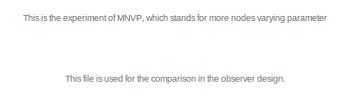
[diagram: root canvas - part 1/17, top right region]
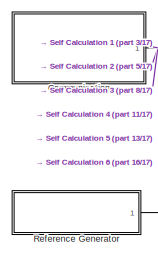
[diagram: root canvas - part 2/17, top left region]
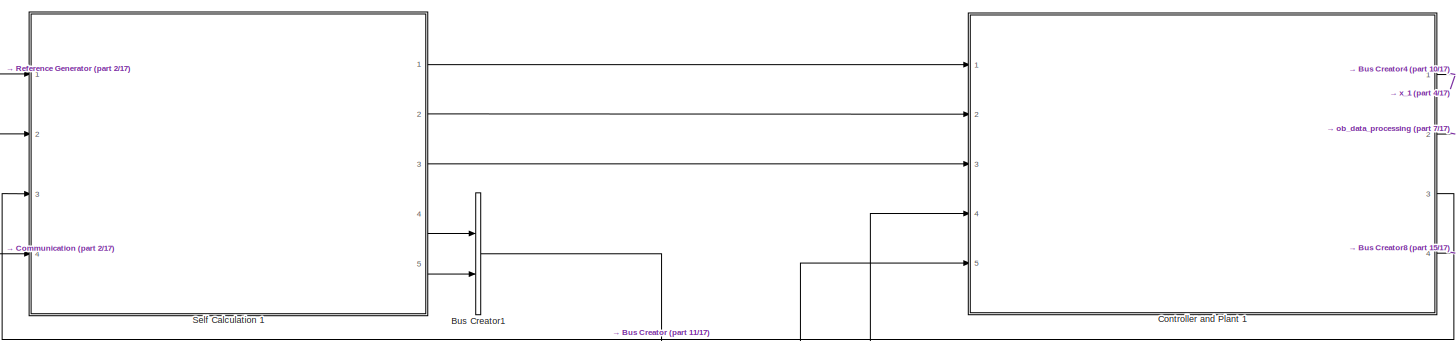
[diagram: root canvas - part 3/17, top center region]
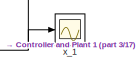
[diagram: root canvas - part 4/17, top center region]
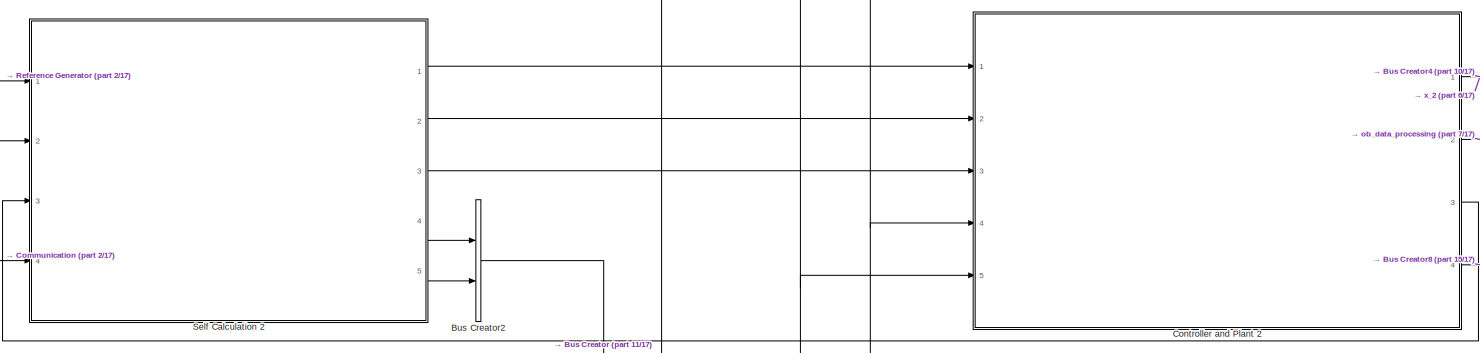
[diagram: root canvas - part 5/17, top center region]
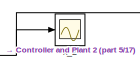
[diagram: root canvas - part 6/17, top center region]
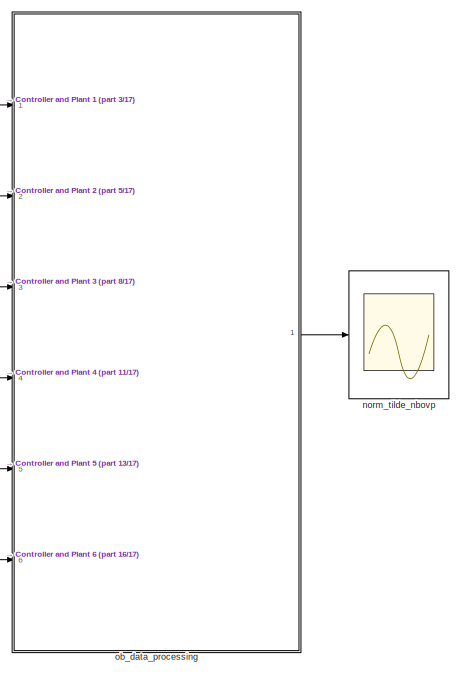
[diagram: root canvas - part 7/17, middle right region]
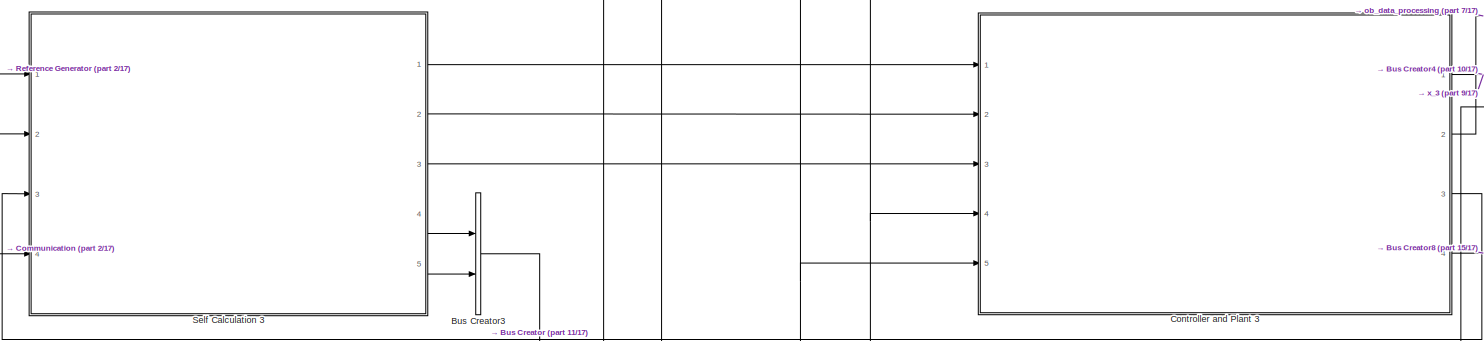
[diagram: root canvas - part 8/17, central region]
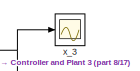
[diagram: root canvas - part 9/17, central region]
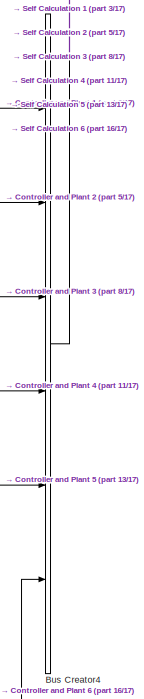
[diagram: root canvas - part 10/17, middle right region]
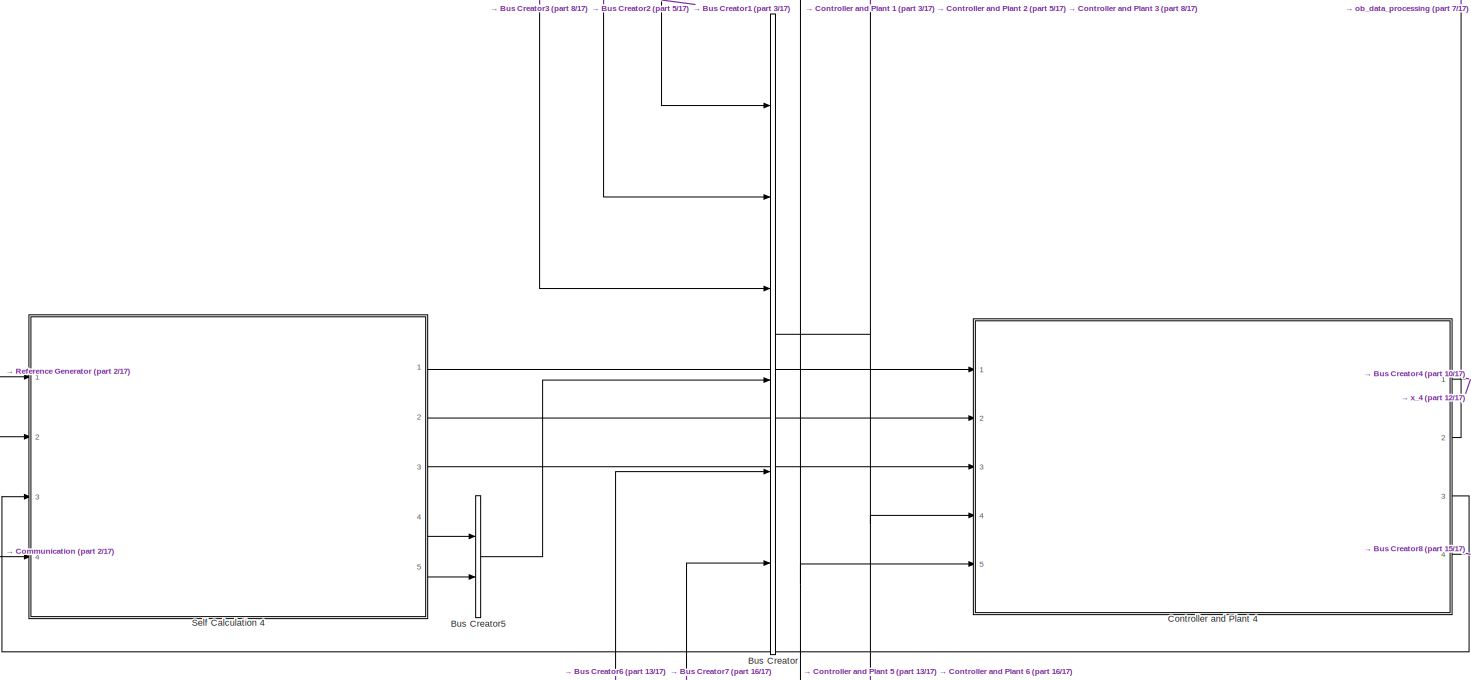
[diagram: root canvas - part 11/17, central region]
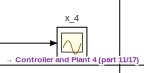
[diagram: root canvas - part 12/17, central region]
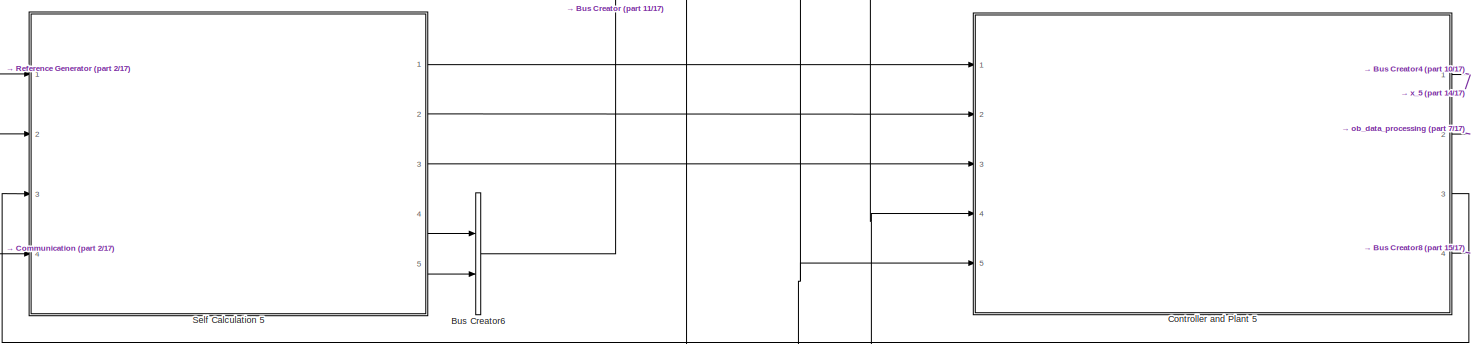
[diagram: root canvas - part 13/17, bottom center region]
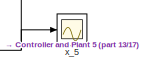
[diagram: root canvas - part 14/17, bottom center region]
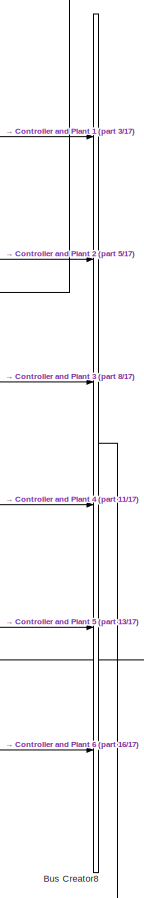
[diagram: root canvas - part 15/17, bottom right region]
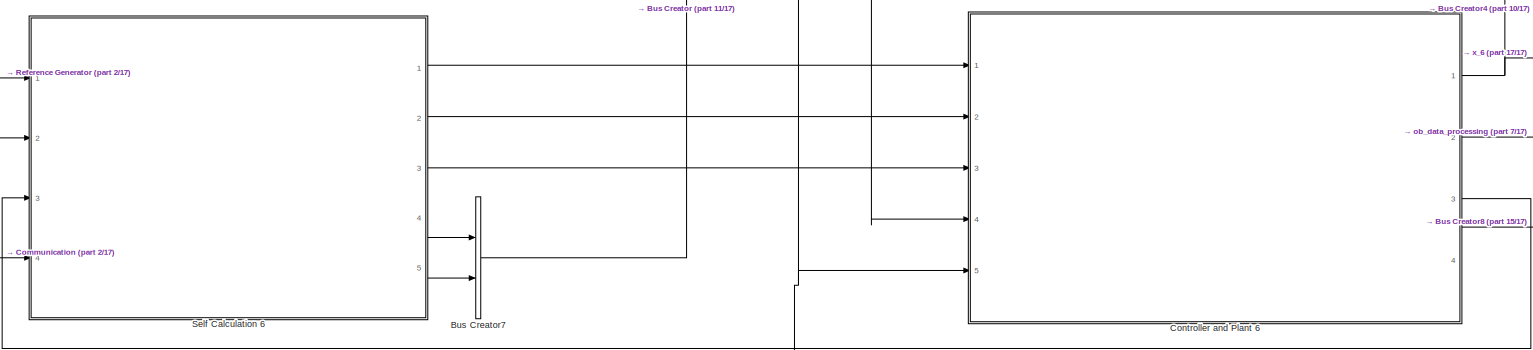
[diagram: root canvas - part 16/17, bottom center region]
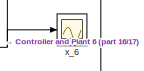
[diagram: root canvas - part 17/17, bottom center region]
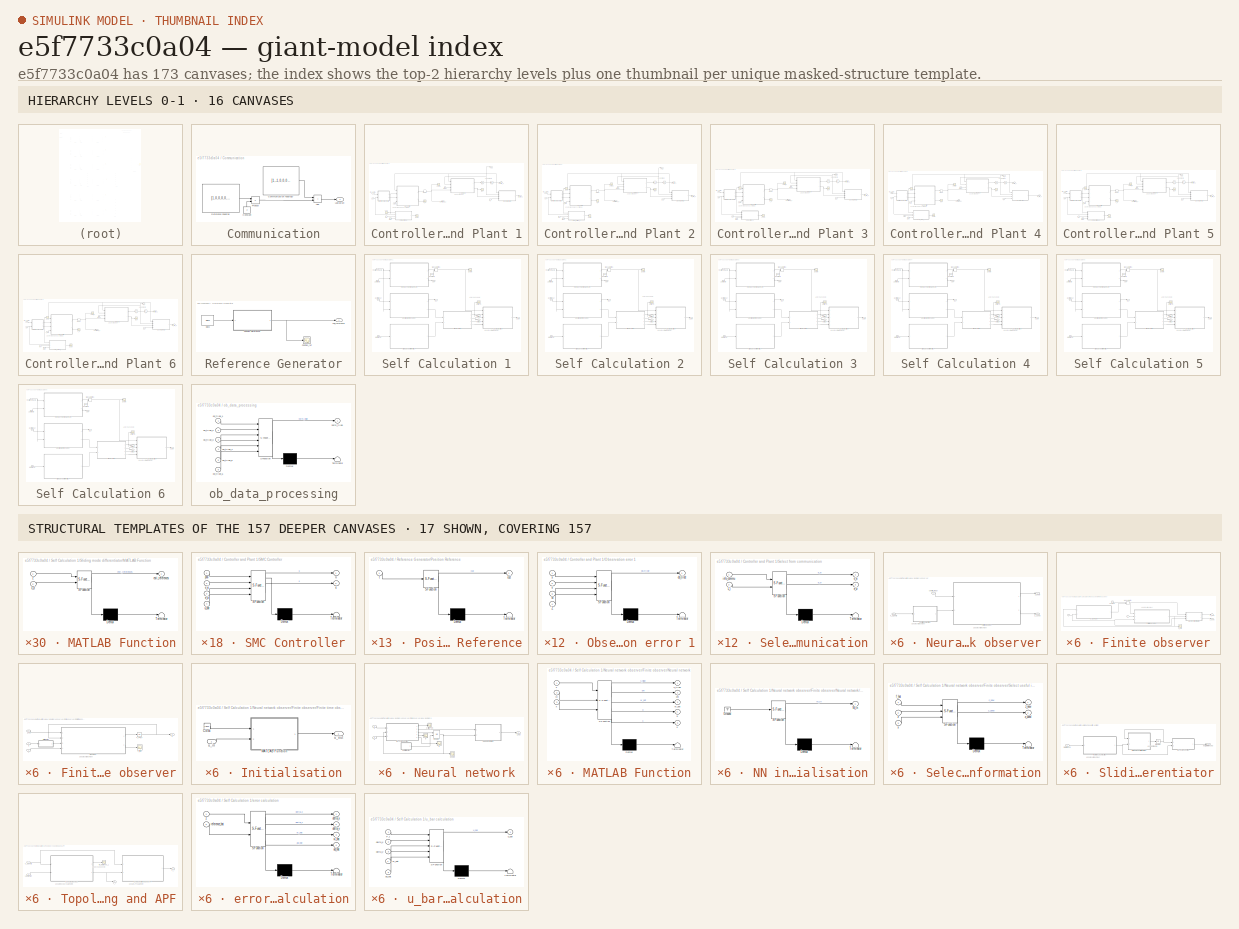
[diagram: thumbnail index - top-2 hierarchy levels (16 canvases) + 17 structural-template representatives of the remaining 157 canvases]
MODEL slx_e5f7733c0a04
KIND model
CONFIG AbsTol = auto
CONFIG EnableMultiTasking = off
CONFIG FixedStep = 0.005
CONFIG MaxStep = auto
CONFIG MinStep = auto
CONFIG RelTol = 1e-3
CONFIG SampleTimeConstraint = Unconstrained
CONFIG SolverName = ode5
CONFIG StartTime = 0.0
CONFIG StopTime = 20
BLOCK [BusCreator] Bus Creator
  DisplayOption = bar
  InheritFromInputs = on
  Inputs = 6
  Ports = [6, 1]
BLOCK [BusCreator] Bus Creator1
  DisplayOption = bar
  InheritFromInputs = on
  Inputs = 2
  Ports = [2, 1]
BLOCK [BusCreator] Bus Creator2
  DisplayOption = bar
  InheritFromInputs = on
  Inputs = 2
  Ports = [2, 1]
BLOCK [BusCreator] Bus Creator3
  DisplayOption = bar
  InheritFromInputs = on
  Inputs = 2
  Ports = [2, 1]
BLOCK [BusCreator] Bus Creator4
  DisplayOption = bar
  InheritFromInputs = on
  Inputs = 6
  Ports = [6, 1]
BLOCK [BusCreator] Bus Creator5
  DisplayOption = bar
  InheritFromInputs = on
  Inputs = 2
  Ports = [2, 1]
BLOCK [BusCreator] Bus Creator6
  DisplayOption = bar
  InheritFromInputs = on
  Inputs = 2
  Ports = [2, 1]
BLOCK [BusCreator] Bus Creator7
  DisplayOption = bar
  InheritFromInputs = on
  Inputs = 2
  Ports = [2, 1]
BLOCK [BusCreator] Bus Creator8
  DisplayOption = bar
  InheritFromInputs = on
  Inputs = 6
  Ports = [6, 1]
BLOCK [SubSystem] Communication
  Ports = [0, 1]
  RequestExecContextInheritance = off
BLOCK [Sum] Communication/Add
  IconShape = rectangular
  Ports = [2, 1]
BLOCK [Constant] Communication/Communication Topology
  Value = [1,-1,0,0,0,0;0,1,-1,0,0,0;-1,-1,3,0,0,-1;0,0,-1,2,-1,0;0,0,0,0,1,-1;0,0,-1,-1,0,2]
  VectorParams1D = off
BLOCK [Constant] Communication/Constant
  NameLocation = right
  Value = 2
  VectorParams1D = off
BLOCK [Outport] Communication/Laplacian
  VectorParamsAs1DForOutWhenUnconnected = off
BLOCK [Product] Communication/Product
  Ports = [2, 1]
BLOCK [Constant] Communication/Reference Feeding
  Value = [1,0,0,0,0,0;0,1,0,0,0,0;0,0,1,0,0,0;0,0,0,1,0,0;0,0,0,0,1,0;0,0,0,0,0,1]
  VectorParams1D = off
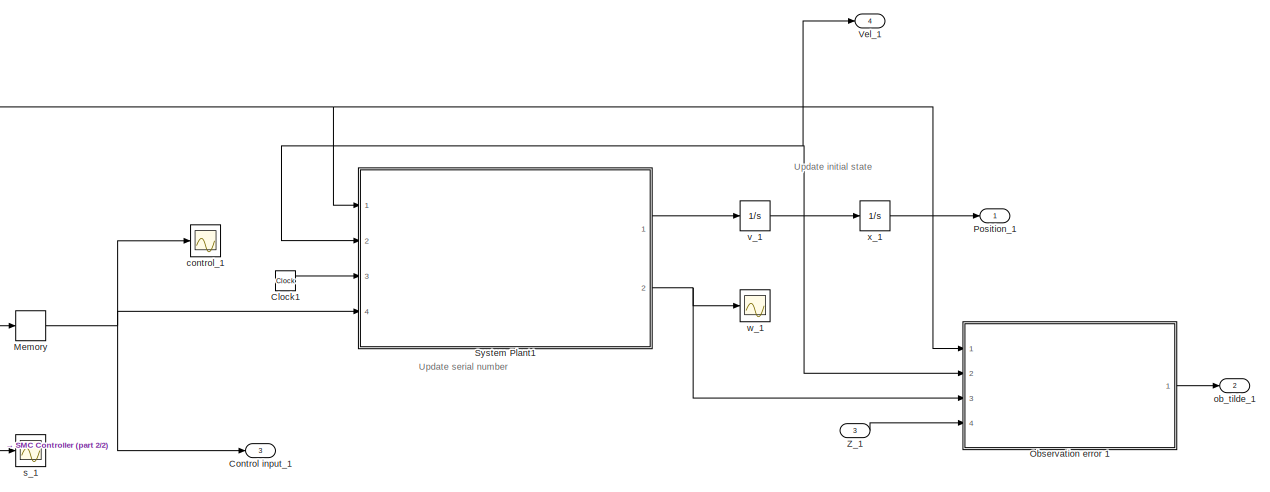
[diagram: Controller and Plant 1 - part 1/2, middle right region]
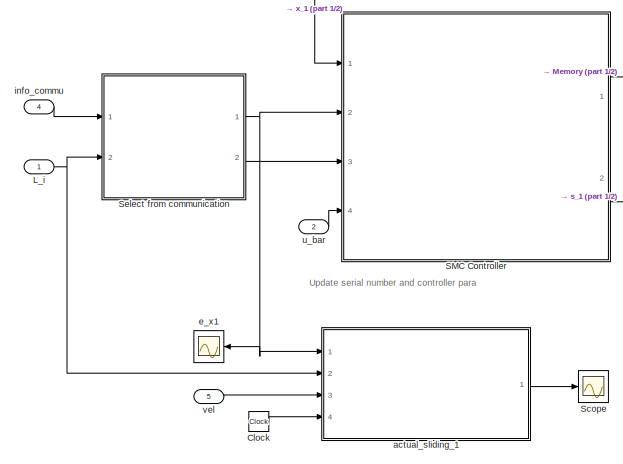
[diagram: Controller and Plant 1 - part 2/2, bottom left region]
BLOCK [SubSystem] Controller and Plant 1
  Ports = [5, 4]
  RequestExecContextInheritance = off
BLOCK [Clock] Controller and Plant 1/Clock
BLOCK [Clock] Controller and Plant 1/Clock1
BLOCK [Outport] Controller and Plant 1/Control input_1
  Port = 3
BLOCK [Inport] Controller and Plant 1/L_i
BLOCK [Memory] Controller and Plant 1/Memory
  InitialCondition = [0;0;0]
BLOCK [SubSystem] Controller and Plant 1/Observation error 1
  ErrorFcn = Stateflow.Translate.translate
  PermitHierarchicalResolution = ExplicitOnly
  Ports = [4, 1]
  RequestExecContextInheritance = off
  SFBlockType = MATLAB Function
  TreatAsAtomicUnit = on
BLOCK [Demux] Controller and Plant 1/Observation error 1/ Demux 
  Outputs = 1
  Ports = [1, 1]
BLOCK [S-Function] Controller and Plant 1/Observation error 1/ SFunction 
  EnableBusSupport = on
  FunctionName = sf_sfun
  PortCounts = [4 2]
  Ports = [4, 2]
  SFcnIsStateOwnerBlock = off
  SFunctionDeploymentMode = off
  Tag = Stateflow S-Function 21
BLOCK [Terminator] Controller and Plant 1/Observation error 1/ Terminator 
BLOCK [Inport] Controller and Plant 1/Observation error 1/Z
  Port = 4
BLOCK [Outport] Controller and Plant 1/Observation error 1/ob_tilde
  VectorParamsAs1DForOutWhenUnconnected = off
BLOCK [Inport] Controller and Plant 1/Observation error 1/v
  Port = 2
BLOCK [Inport] Controller and Plant 1/Observation error 1/w
  Port = 3
BLOCK [Inport] Controller and Plant 1/Observation error 1/x
BLOCK [Outport] Controller and Plant 1/Position_1
BLOCK [SubSystem] Controller and Plant 1/SMC Controller
  ErrorFcn = Stateflow.Translate.translate
  PermitHierarchicalResolution = ExplicitOnly
  Ports = [4, 2]
  RequestExecContextInheritance = off
  SFBlockType = MATLAB Function
  TreatAsAtomicUnit = on
BLOCK [Demux] Controller and Plant 1/SMC Controller/ Demux 
  Outputs = 1
  Ports = [1, 1]
BLOCK [S-Function] Controller and Plant 1/SMC Controller/ SFunction 
  EnableBusSupport = on
  FunctionName = sf_sfun
  PortCounts = [4 3]
  Ports = [4, 3]
  SFcnIsStateOwnerBlock = off
  SFunctionDeploymentMode = off
  Tag = Stateflow S-Function 9
BLOCK [Terminator] Controller and Plant 1/SMC Controller/ Terminator 
BLOCK [Inport] Controller and Plant 1/SMC Controller/e_vi
  Port = 3
BLOCK [Inport] Controller and Plant 1/SMC Controller/e_xi
  Port = 2
BLOCK [Inport] Controller and Plant 1/SMC Controller/pos
BLOCK [Outport] Controller and Plant 1/SMC Controller/s
  Port = 2
BLOCK [Outport] Controller and Plant 1/SMC Controller/u
BLOCK [Inport] Controller and Plant 1/SMC Controller/u_bar
  Port = 4
BLOCK [Scope] Controller and Plant 1/Scope
  Floating = off
  NumInputPorts = 1
  Ports = [1]
  ScopeSpecificationString = Simulink.scopes.TimeScopeBlockCfg('CurrentConfiguration', extmgr.ConfigurationSet(extmgr.Configuration('Core','General UI',true),extmgr.Configuration('Core','Source UI',true),extmgr.Configuration('Sources','WiredSimulink',true,'DataLoggingVariableName','actual_s_1','DataLogging',true,'DataLoggingSaveFormat','Array'),extmgr.Configuration('Visuals','Time Domain',true,'SerializedDisplays',{struct('Mi...<+1503ch>
BLOCK [SubSystem] Controller and Plant 1/Select from communication
  ErrorFcn = Stateflow.Translate.translate
  PermitHierarchicalResolution = ExplicitOnly
  Ports = [2, 2]
  RequestExecContextInheritance = off
  SFBlockType = MATLAB Function
  TreatAsAtomicUnit = on
BLOCK [Demux] Controller and Plant 1/Select from communication/ Demux 
  Outputs = 1
  Ports = [1, 1]
BLOCK [S-Function] Controller and Plant 1/Select from communication/ SFunction 
  EnableBusSupport = on
  FunctionName = sf_sfun
  PortCounts = [2 3]
  Ports = [2, 3]
  SFcnIsStateOwnerBlock = off
  SFunctionDeploymentMode = off
  Tag = Stateflow S-Function 10
BLOCK [Terminator] Controller and Plant 1/Select from communication/ Terminator 
BLOCK [Inport] Controller and Plant 1/Select from communication/L_i
  Port = 2
BLOCK [Outport] Controller and Plant 1/Select from communication/e_vi
  Port = 2
BLOCK [Outport] Controller and Plant 1/Select from communication/e_xi
BLOCK [Inport] Controller and Plant 1/Select from communication/info_commu
BLOCK [SubSystem] Controller and Plant 1/System Plant1
  ErrorFcn = Stateflow.Translate.translate
  PermitHierarchicalResolution = ExplicitOnly
  Ports = [4, 2]
  RequestExecContextInheritance = off
  SFBlockType = MATLAB Function
  TreatAsAtomicUnit = on
BLOCK [Demux] Controller and Plant 1/System Plant1/ Demux 
  Outputs = 1
  Ports = [1, 1]
BLOCK [S-Function] Controller and Plant 1/System Plant1/ SFunction 
  EnableBusSupport = on
  FunctionName = sf_sfun
  PortCounts = [4 3]
  Ports = [4, 3]
  SFcnIsStateOwnerBlock = off
  SFunctionDeploymentMode = off
  Tag = Stateflow S-Function 23
BLOCK [Terminator] Controller and Plant 1/System Plant1/ Terminator 
BLOCK [Inport] Controller and Plant 1/System Plant1/agent_v
  Port = 2
BLOCK [Inport] Controller and Plant 1/System Plant1/agent_x
BLOCK [Inport] Controller and Plant 1/System Plant1/control_input
  Port = 4
BLOCK [Inport] Controller and Plant 1/System Plant1/t
  Port = 3
BLOCK [Outport] Controller and Plant 1/System Plant1/v_dot
  VectorParamsAs1DForOutWhenUnconnected = off
BLOCK [Outport] Controller and Plant 1/System Plant1/w
  Port = 2
  VectorParamsAs1DForOutWhenUnconnected = off
BLOCK [Outport] Controller and Plant 1/Vel_1
  Port = 4
BLOCK [Inport] Controller and Plant 1/Z_1
  Port = 3
BLOCK [SubSystem] Controller and Plant 1/actual_sliding_1
  ErrorFcn = Stateflow.Translate.translate
  PermitHierarchicalResolution = ExplicitOnly
  Ports = [4, 1]
  RequestExecContextInheritance = off
  SFBlockType = MATLAB Function
  TreatAsAtomicUnit = on
BLOCK [Demux] Controller and Plant 1/actual_sliding_1/ Demux 
  Outputs = 1
  Ports = [1, 1]
BLOCK [S-Function] Controller and Plant 1/actual_sliding_1/ SFunction 
  EnableBusSupport = on
  FunctionName = sf_sfun
  PortCounts = [4 2]
  Ports = [4, 2]
  SFcnIsStateOwnerBlock = off
  SFunctionDeploymentMode = off
  Tag = Stateflow S-Function 111
BLOCK [Terminator] Controller and Plant 1/actual_sliding_1/ Terminator 
BLOCK [Inport] Controller and Plant 1/actual_sliding_1/L_i
  Port = 2
BLOCK [Outport] Controller and Plant 1/actual_sliding_1/actual_s_i
BLOCK [Inport] Controller and Plant 1/actual_sliding_1/e_xi
BLOCK [Inport] Controller and Plant 1/actual_sliding_1/t
  Port = 4
BLOCK [Inport] Controller and Plant 1/actual_sliding_1/vel
  Port = 3
BLOCK [Scope] Controller and Plant 1/control_1
  Floating = off
  NumInputPorts = 1
  Ports = [1]
  ScopeSpecificationString = Simulink.scopes.TimeScopeBlockCfg('CurrentConfiguration', extmgr.ConfigurationSet(extmgr.Configuration('Core','General UI',true),extmgr.Configuration('Core','Source UI',true),extmgr.Configuration('Sources','WiredSimulink',true,'DataLoggingVariableName','control_1','DataLogging',true,'DataLoggingSaveFormat','Array'),extmgr.Configuration('Visuals','Time Domain',true,'SerializedDisplays',{struct('Min...<+1525ch>
BLOCK [Scope] Controller and Plant 1/e_x1
  Floating = off
  NameLocation = top
  NumInputPorts = 1
  Ports = [1]
  ScopeSpecificationString = Simulink.scopes.TimeScopeBlockCfg('CurrentConfiguration', extmgr.ConfigurationSet(extmgr.Configuration('Core','General UI',true),extmgr.Configuration('Core','Source UI',true),extmgr.Configuration('Sources','WiredSimulink',true,'DataLoggingVariableName','e_x1','DataLogging',true,'DataLoggingSaveFormat','Array'),extmgr.Configuration('Visuals','Time Domain',true,'SerializedDisplays',{struct('MinYLimR...<+1506ch>
BLOCK [Inport] Controller and Plant 1/info_commu
  Port = 4
BLOCK [Outport] Controller and Plant 1/ob_tilde_1
  Port = 2
BLOCK [Scope] Controller and Plant 1/s_1
  Floating = off
  NumInputPorts = 1
  Ports = [1]
  ScopeSpecificationString = Simulink.scopes.TimeScopeBlockCfg('CurrentConfiguration', extmgr.ConfigurationSet(extmgr.Configuration('Core','General UI',true),extmgr.Configuration('Core','Source UI',true),extmgr.Configuration('Sources','WiredSimulink',true,'DataLoggingVariableName','s_1','DataLoggingSaveFormat','Array','DataLogging',true),extmgr.Configuration('Visuals','Time Domain',true,'SerializedDisplays',{struct('MinYLimRe...<+1540ch>
BLOCK [Inport] Controller and Plant 1/u_bar
  Port = 2
BLOCK [Integrator] Controller and Plant 1/v_1
  ContinuousStateAttributes = 'speed'
  InitialCondition = [0;0;0]
  Ports = [1, 1]
BLOCK [Inport] Controller and Plant 1/vel
  Port = 5
BLOCK [Scope] Controller and Plant 1/w_1
  Floating = off
  NumInputPorts = 1
  Ports = [1]
  ScopeSpecificationString = Simulink.scopes.TimeScopeBlockCfg('CurrentConfiguration', extmgr.ConfigurationSet(extmgr.Configuration('Core','General UI',true),extmgr.Configuration('Core','Source UI',true),extmgr.Configuration('Sources','WiredSimulink',true,'DataLoggingVariableName','ScopeData2','DataLoggingSaveFormat','Structure'),extmgr.Configuration('Visuals','Time Domain',true,'SerializedDisplays',{struct('MinYLimReal','-2....<+1519ch>  <repeated x5 — deduplicated; at blocks: w_1, w_3, w_4, w_5, w_6>
BLOCK [Integrator] Controller and Plant 1/x_1
  ContinuousStateAttributes = 'position'
  InitialCondition = x_1
  Ports = [1, 1]
  Tag = Position_x1
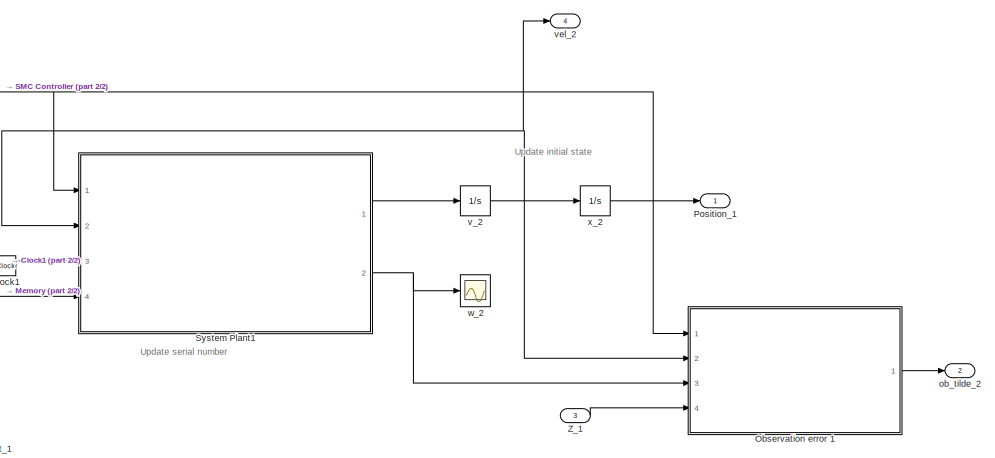
[diagram: Controller and Plant 2 - part 1/2, middle right region]
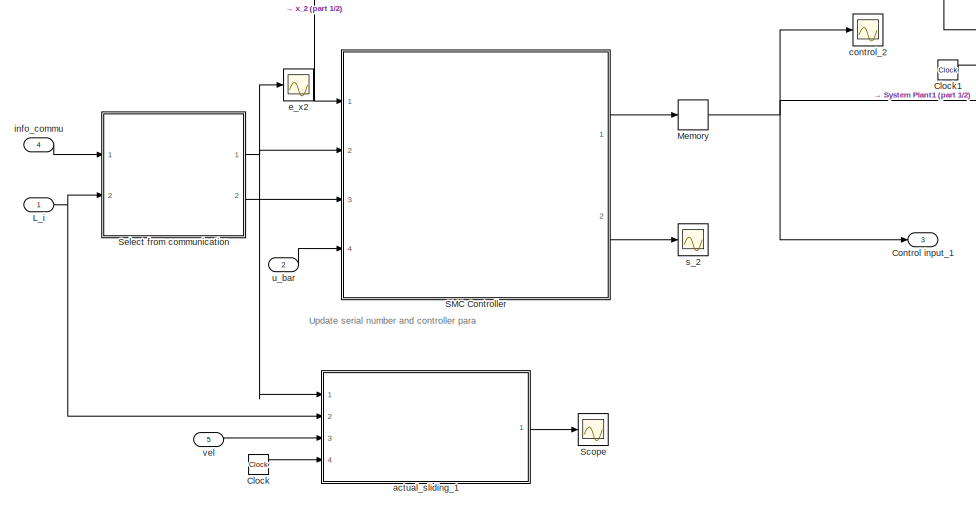
[diagram: Controller and Plant 2 - part 2/2, middle left region]
BLOCK [SubSystem] Controller and Plant 2
  Ports = [5, 4]
  RequestExecContextInheritance = off
BLOCK [Clock] Controller and Plant 2/Clock
BLOCK [Clock] Controller and Plant 2/Clock1
BLOCK [Outport] Controller and Plant 2/Control input_1
  Port = 3
BLOCK [Inport] Controller and Plant 2/L_i
BLOCK [Memory] Controller and Plant 2/Memory
  InitialCondition = [0;0;0]
BLOCK [SubSystem] Controller and Plant 2/Observation error 1
  ErrorFcn = Stateflow.Translate.translate
  PermitHierarchicalResolution = ExplicitOnly
  Ports = [4, 1]
  RequestExecContextInheritance = off
  SFBlockType = MATLAB Function
  TreatAsAtomicUnit = on
BLOCK [Demux] Controller and Plant 2/Observation error 1/ Demux 
  Outputs = 1
  Ports = [1, 1]
BLOCK [S-Function] Controller and Plant 2/Observation error 1/ SFunction 
  EnableBusSupport = on
  FunctionName = sf_sfun
  PortCounts = [4 2]
  Ports = [4, 2]
  SFcnIsStateOwnerBlock = off
  SFunctionDeploymentMode = off
  Tag = Stateflow S-Function 2
BLOCK [Terminator] Controller and Plant 2/Observation error 1/ Terminator 
BLOCK [Inport] Controller and Plant 2/Observation error 1/Z
  Port = 4
BLOCK [Outport] Controller and Plant 2/Observation error 1/ob_tilde
  VectorParamsAs1DForOutWhenUnconnected = off
BLOCK [Inport] Controller and Plant 2/Observation error 1/v
  Port = 2
BLOCK [Inport] Controller and Plant 2/Observation error 1/w
  Port = 3
BLOCK [Inport] Controller and Plant 2/Observation error 1/x
BLOCK [Outport] Controller and Plant 2/Position_1
BLOCK [SubSystem] Controller and Plant 2/SMC Controller
  ErrorFcn = Stateflow.Translate.translate
  PermitHierarchicalResolution = ExplicitOnly
  Ports = [4, 2]
  RequestExecContextInheritance = off
  SFBlockType = MATLAB Function
  TreatAsAtomicUnit = on
BLOCK [Demux] Controller and Plant 2/SMC Controller/ Demux 
  Outputs = 1
  Ports = [1, 1]
BLOCK [S-Function] Controller and Plant 2/SMC Controller/ SFunction 
  EnableBusSupport = on
  FunctionName = sf_sfun
  PortCounts = [4 3]
  Ports = [4, 3]
  SFcnIsStateOwnerBlock = off
  SFunctionDeploymentMode = off
  Tag = Stateflow S-Function 4
BLOCK [Terminator] Controller and Plant 2/SMC Controller/ Terminator 
BLOCK [Inport] Controller and Plant 2/SMC Controller/e_vi
  Port = 3
BLOCK [Inport] Controller and Plant 2/SMC Controller/e_xi
  Port = 2
BLOCK [Inport] Controller and Plant 2/SMC Controller/pos
BLOCK [Outport] Controller and Plant 2/SMC Controller/s
  Port = 2
BLOCK [Outport] Controller and Plant 2/SMC Controller/u
BLOCK [Inport] Controller and Plant 2/SMC Controller/u_bar
  Port = 4
BLOCK [Scope] Controller and Plant 2/Scope
  Floating = off
  NumInputPorts = 1
  Ports = [1]
  ScopeSpecificationString = Simulink.scopes.TimeScopeBlockCfg('CurrentConfiguration', extmgr.ConfigurationSet(extmgr.Configuration('Core','General UI',true),extmgr.Configuration('Core','Source UI',true),extmgr.Configuration('Sources','WiredSimulink',true,'DataLoggingVariableName','actual_s_2','DataLogging',true,'DataLoggingSaveFormat','Array'),extmgr.Configuration('Visuals','Time Domain',true,'SerializedDisplays',{struct('Mi...<+1476ch>
BLOCK [SubSystem] Controller and Plant 2/Select from communication
  ErrorFcn = Stateflow.Translate.translate
  PermitHierarchicalResolution = ExplicitOnly
  Ports = [2, 2]
  RequestExecContextInheritance = off
  SFBlockType = MATLAB Function
  TreatAsAtomicUnit = on
BLOCK [Demux] Controller and Plant 2/Select from communication/ Demux 
  Outputs = 1
  Ports = [1, 1]
BLOCK [S-Function] Controller and Plant 2/Select from communication/ SFunction 
  EnableBusSupport = on
  FunctionName = sf_sfun
  PortCounts = [2 3]
  Ports = [2, 3]
  SFcnIsStateOwnerBlock = off
  SFunctionDeploymentMode = off
  Tag = Stateflow S-Function 8
BLOCK [Terminator] Controller and Plant 2/Select from communication/ Terminator 
BLOCK [Inport] Controller and Plant 2/Select from communication/L_i
  Port = 2
BLOCK [Outport] Controller and Plant 2/Select from communication/e_vi
  Port = 2
BLOCK [Outport] Controller and Plant 2/Select from communication/e_xi
BLOCK [Inport] Controller and Plant 2/Select from communication/info_commu
BLOCK [SubSystem] Controller and Plant 2/System Plant1
  ErrorFcn = Stateflow.Translate.translate
  PermitHierarchicalResolution = ExplicitOnly
  Ports = [4, 2]
  RequestExecContextInheritance = off
  SFBlockType = MATLAB Function
  TreatAsAtomicUnit = on
BLOCK [Demux] Controller and Plant 2/System Plant1/ Demux 
  Outputs = 1
  Ports = [1, 1]
BLOCK [S-Function] Controller and Plant 2/System Plant1/ SFunction 
  EnableBusSupport = on
  FunctionName = sf_sfun
  PortCounts = [4 3]
  Ports = [4, 3]
  SFcnIsStateOwnerBlock = off
  SFunctionDeploymentMode = off
  Tag = Stateflow S-Function 16
BLOCK [Terminator] Controller and Plant 2/System Plant1/ Terminator 
BLOCK [Inport] Controller and Plant 2/System Plant1/agent_v
  Port = 2
BLOCK [Inport] Controller and Plant 2/System Plant1/agent_x
BLOCK [Inport] Controller and Plant 2/System Plant1/control_input
  Port = 4
BLOCK [Inport] Controller and Plant 2/System Plant1/t
  Port = 3
BLOCK [Outport] Controller and Plant 2/System Plant1/v_dot
  VectorParamsAs1DForOutWhenUnconnected = off
BLOCK [Outport] Controller and Plant 2/System Plant1/w
  Port = 2
  VectorParamsAs1DForOutWhenUnconnected = off
BLOCK [Inport] Controller and Plant 2/Z_1
  Port = 3
BLOCK [SubSystem] Controller and Plant 2/actual_sliding_1
  ErrorFcn = Stateflow.Translate.translate
  PermitHierarchicalResolution = ExplicitOnly
  Ports = [4, 1]
  RequestExecContextInheritance = off
  SFBlockType = MATLAB Function
  TreatAsAtomicUnit = on
BLOCK [Demux] Controller and Plant 2/actual_sliding_1/ Demux 
  Outputs = 1
  Ports = [1, 1]
BLOCK [S-Function] Controller and Plant 2/actual_sliding_1/ SFunction 
  EnableBusSupport = on
  FunctionName = sf_sfun
  PortCounts = [4 2]
  Ports = [4, 2]
  SFcnIsStateOwnerBlock = off
  SFunctionDeploymentMode = off
  Tag = Stateflow S-Function 112
BLOCK [Terminator] Controller and Plant 2/actual_sliding_1/ Terminator 
BLOCK [Inport] Controller and Plant 2/actual_sliding_1/L_i
  Port = 2
BLOCK [Outport] Controller and Plant 2/actual_sliding_1/actual_s_i
BLOCK [Inport] Controller and Plant 2/actual_sliding_1/e_xi
BLOCK [Inport] Controller and Plant 2/actual_sliding_1/t
  Port = 4
BLOCK [Inport] Controller and Plant 2/actual_sliding_1/vel
  Port = 3
BLOCK [Scope] Controller and Plant 2/control_2
  Floating = off
  NumInputPorts = 1
  Ports = [1]
  ScopeSpecificationString = Simulink.scopes.TimeScopeBlockCfg('CurrentConfiguration', extmgr.ConfigurationSet(extmgr.Configuration('Core','General UI',true),extmgr.Configuration('Core','Source UI',true),extmgr.Configuration('Sources','WiredSimulink',true,'DataLoggingVariableName','control_2','DataLogging',true,'DataLoggingSaveFormat','Array'),extmgr.Configuration('Visuals','Time Domain',true,'SerializedDisplays',{struct('Min...<+1518ch>
BLOCK [Scope] Controller and Plant 2/e_x2
  Floating = off
  NumInputPorts = 1
  Ports = [1]
  ScopeSpecificationString = Simulink.scopes.TimeScopeBlockCfg('CurrentConfiguration', extmgr.ConfigurationSet(extmgr.Configuration('Core','General UI',true),extmgr.Configuration('Core','Source UI',true),extmgr.Configuration('Sources','WiredSimulink',true,'DataLoggingVariableName','e_x2','DataLogging',true,'DataLoggingSaveFormat','Array'),extmgr.Configuration('Visuals','Time Domain',true,'SerializedDisplays',{struct('MinYLimR...<+1502ch>
BLOCK [Inport] Controller and Plant 2/info_commu
  Port = 4
BLOCK [Outport] Controller and Plant 2/ob_tilde_2
  Port = 2
BLOCK [Scope] Controller and Plant 2/s_2
  Floating = off
  NumInputPorts = 1
  Ports = [1]
  ScopeSpecificationString = Simulink.scopes.TimeScopeBlockCfg('CurrentConfiguration', extmgr.ConfigurationSet(extmgr.Configuration('Core','General UI',true),extmgr.Configuration('Core','Source UI',true),extmgr.Configuration('Sources','WiredSimulink',true,'DataLoggingVariableName','s_2','DataLoggingSaveFormat','Array','DataLogging',true),extmgr.Configuration('Visuals','Time Domain',true,'SerializedDisplays',{struct('MinYLimRe...<+1534ch>
BLOCK [Inport] Controller and Plant 2/u_bar
  Port = 2
BLOCK [Integrator] Controller and Plant 2/v_2
  ContinuousStateAttributes = 'speed'
  InitialCondition = [0;0;0]
  Ports = [1, 1]
BLOCK [Inport] Controller and Plant 2/vel
  Port = 5
BLOCK [Outport] Controller and Plant 2/vel_2
  Port = 4
BLOCK [Scope] Controller and Plant 2/w_2
  Floating = off
  NumInputPorts = 1
  Ports = [1]
  ScopeSpecificationString = Simulink.scopes.TimeScopeBlockCfg('CurrentConfiguration', extmgr.ConfigurationSet(extmgr.Configuration('Core','General UI',true),extmgr.Configuration('Core','Source UI',true),extmgr.Configuration('Sources','WiredSimulink',true,'DataLoggingVariableName','ScopeData2','DataLoggingSaveFormat','Structure'),extmgr.Configuration('Visuals','Time Domain',true,'SerializedDisplays',{struct('MinYLimReal','-2....<+1522ch>
BLOCK [Integrator] Controller and Plant 2/x_2
  ContinuousStateAttributes = 'position'
  InitialCondition = x_2
  Ports = [1, 1]
  Tag = Position_x1
BLOCK [SubSystem] Controller and Plant 3
  Ports = [5, 4]
  RequestExecContextInheritance = off
BLOCK [Clock] Controller and Plant 3/Clock
BLOCK [Clock] Controller and Plant 3/Clock1
BLOCK [Outport] Controller and Plant 3/Control input_1
  Port = 3
BLOCK [Inport] Controller and Plant 3/L_i
BLOCK [Memory] Controller and Plant 3/Memory
  InitialCondition = [0;0;0]
BLOCK [SubSystem] Controller and Plant 3/Observation error 1
  ErrorFcn = Stateflow.Translate.translate
  PermitHierarchicalResolution = ExplicitOnly
  Ports = [4, 1]
  RequestExecContextInheritance = off
  SFBlockType = MATLAB Function
  TreatAsAtomicUnit = on
BLOCK [Demux] Controller and Plant 3/Observation error 1/ Demux 
  Outputs = 1
  Ports = [1, 1]
BLOCK [S-Function] Controller and Plant 3/Observation error 1/ SFunction 
  EnableBusSupport = on
  FunctionName = sf_sfun
  PortCounts = [4 2]
  Ports = [4, 2]
  SFcnIsStateOwnerBlock = off
  SFunctionDeploymentMode = off
  Tag = Stateflow S-Function 38
BLOCK [Terminator] Controller and Plant 3/Observation error 1/ Terminator 
BLOCK [Inport] Controller and Plant 3/Observation error 1/Z
  Port = 4
BLOCK [Outport] Controller and Plant 3/Observation error 1/ob_tilde
  VectorParamsAs1DForOutWhenUnconnected = off
BLOCK [Inport] Controller and Plant 3/Observation error 1/v
  Port = 2
BLOCK [Inport] Controller and Plant 3/Observation error 1/w
  Port = 3
BLOCK [Inport] Controller and Plant 3/Observation error 1/x
BLOCK [Outport] Controller and Plant 3/Position_1
BLOCK [SubSystem] Controller and Plant 3/SMC Controller
  ErrorFcn = Stateflow.Translate.translate
  PermitHierarchicalResolution = ExplicitOnly
  Ports = [4, 2]
  RequestExecContextInheritance = off
  SFBlockType = MATLAB Function
  TreatAsAtomicUnit = on
BLOCK [Demux] Controller and Plant 3/SMC Controller/ Demux 
  Outputs = 1
  Ports = [1, 1]
BLOCK [S-Function] Controller and Plant 3/SMC Controller/ SFunction 
  EnableBusSupport = on
  FunctionName = sf_sfun
  PortCounts = [4 3]
  Ports = [4, 3]
  SFcnIsStateOwnerBlock = off
  SFunctionDeploymentMode = off
  Tag = Stateflow S-Function 39
BLOCK [Terminator] Controller and Plant 3/SMC Controller/ Terminator 
BLOCK [Inport] Controller and Plant 3/SMC Controller/e_vi
  Port = 3
BLOCK [Inport] Controller and Plant 3/SMC Controller/e_xi
  Port = 2
BLOCK [Inport] Controller and Plant 3/SMC Controller/pos
BLOCK [Outport] Controller and Plant 3/SMC Controller/s
  Port = 2
BLOCK [Outport] Controller and Plant 3/SMC Controller/u
BLOCK [Inport] Controller and Plant 3/SMC Controller/u_bar
  Port = 4
BLOCK [Scope] Controller and Plant 3/Scope
  Floating = off
  NumInputPorts = 1
  Ports = [1]
  ScopeSpecificationString = Simulink.scopes.TimeScopeBlockCfg('CurrentConfiguration', extmgr.ConfigurationSet(extmgr.Configuration('Core','General UI',true),extmgr.Configuration('Core','Source UI',true),extmgr.Configuration('Sources','WiredSimulink',true,'DataLoggingVariableName','actual_s_3','DataLogging',true,'DataLoggingSaveFormat','Array'),extmgr.Configuration('Visuals','Time Domain',true,'SerializedDisplays',{struct('Mi...<+1472ch>
BLOCK [SubSystem] Controller and Plant 3/Select from communication
  ErrorFcn = Stateflow.Translate.translate
  PermitHierarchicalResolution = ExplicitOnly
  Ports = [2, 2]
  RequestExecContextInheritance = off
  SFBlockType = MATLAB Function
  TreatAsAtomicUnit = on
BLOCK [Demux] Controller and Plant 3/Select from communication/ Demux 
  Outputs = 1
  Ports = [1, 1]
BLOCK [S-Function] Controller and Plant 3/Select from communication/ SFunction 
  EnableBusSupport = on
  FunctionName = sf_sfun
  PortCounts = [2 3]
  Ports = [2, 3]
  SFcnIsStateOwnerBlock = off
  SFunctionDeploymentMode = off
  Tag = Stateflow S-Function 40
BLOCK [Terminator] Controller and Plant 3/Select from communication/ Terminator 
BLOCK [Inport] Controller and Plant 3/Select from communication/L_i
  Port = 2
BLOCK [Outport] Controller and Plant 3/Select from communication/e_vi
  Port = 2
BLOCK [Outport] Controller and Plant 3/Select from communication/e_xi
BLOCK [Inport] Controller and Plant 3/Select from communication/info_commu
BLOCK [SubSystem] Controller and Plant 3/System Plant 4
  ErrorFcn = Stateflow.Translate.translate
  PermitHierarchicalResolution = ExplicitOnly
  Ports = [4, 2]
  RequestExecContextInheritance = off
  SFBlockType = MATLAB Function
  TreatAsAtomicUnit = on
BLOCK [Demux] Controller and Plant 3/System Plant 4/ Demux 
  Outputs = 1
  Ports = [1, 1]
BLOCK [S-Function] Controller and Plant 3/System Plant 4/ SFunction 
  EnableBusSupport = on
  FunctionName = sf_sfun
  PortCounts = [4 3]
  Ports = [4, 3]
  SFcnIsStateOwnerBlock = off
  SFunctionDeploymentMode = off
  Tag = Stateflow S-Function 41
BLOCK [Terminator] Controller and Plant 3/System Plant 4/ Terminator 
BLOCK [Inport] Controller and Plant 3/System Plant 4/agent_v
  Port = 2
BLOCK [Inport] Controller and Plant 3/System Plant 4/agent_x
BLOCK [Inport] Controller and Plant 3/System Plant 4/control_input
  Port = 4
BLOCK [Inport] Controller and Plant 3/System Plant 4/t
  Port = 3
BLOCK [Outport] Controller and Plant 3/System Plant 4/v_dot
  VectorParamsAs1DForOutWhenUnconnected = off
BLOCK [Outport] Controller and Plant 3/System Plant 4/w
  Port = 2
  VectorParamsAs1DForOutWhenUnconnected = off
BLOCK [Inport] Controller and Plant 3/Z_1
  Port = 3
BLOCK [SubSystem] Controller and Plant 3/actual_sliding_1
  ErrorFcn = Stateflow.Translate.translate
  PermitHierarchicalResolution = ExplicitOnly
  Ports = [4, 1]
  RequestExecContextInheritance = off
  SFBlockType = MATLAB Function
  TreatAsAtomicUnit = on
BLOCK [Demux] Controller and Plant 3/actual_sliding_1/ Demux 
  Outputs = 1
  Ports = [1, 1]
BLOCK [S-Function] Controller and Plant 3/actual_sliding_1/ SFunction 
  EnableBusSupport = on
  FunctionName = sf_sfun
  PortCounts = [4 2]
  Ports = [4, 2]
  SFcnIsStateOwnerBlock = off
  SFunctionDeploymentMode = off
  Tag = Stateflow S-Function 113
BLOCK [Terminator] Controller and Plant 3/actual_sliding_1/ Terminator 
BLOCK [Inport] Controller and Plant 3/actual_sliding_1/L_i
  Port = 2
BLOCK [Outport] Controller and Plant 3/actual_sliding_1/actual_s_i
BLOCK [Inport] Controller and Plant 3/actual_sliding_1/e_xi
BLOCK [Inport] Controller and Plant 3/actual_sliding_1/t
  Port = 4
BLOCK [Inport] Controller and Plant 3/actual_sliding_1/vel
  Port = 3
BLOCK [Scope] Controller and Plant 3/control_3
  Floating = off
  NumInputPorts = 1
  Ports = [1]
  ScopeSpecificationString = Simulink.scopes.TimeScopeBlockCfg('CurrentConfiguration', extmgr.ConfigurationSet(extmgr.Configuration('Core','General UI',true),extmgr.Configuration('Core','Source UI',true),extmgr.Configuration('Sources','WiredSimulink',true,'DataLoggingVariableName','control_3','DataLogging',true,'DataLoggingSaveFormat','Array'),extmgr.Configuration('Visuals','Time Domain',true,'SerializedDisplays',{struct('Min...<+1518ch>
BLOCK [Scope] Controller and Plant 3/e_x3
  Floating = off
  NumInputPorts = 1
  Ports = [1]
  ScopeSpecificationString = Simulink.scopes.TimeScopeBlockCfg('CurrentConfiguration', extmgr.ConfigurationSet(extmgr.Configuration('Core','General UI',true),extmgr.Configuration('Core','Source UI',true),extmgr.Configuration('Sources','WiredSimulink',true,'DataLoggingVariableName','e_x3','DataLogging',true,'DataLoggingSaveFormat','Array'),extmgr.Configuration('Visuals','Time Domain',true,'SerializedDisplays',{struct('MinYLimR...<+1510ch>
BLOCK [Inport] Controller and Plant 3/info_commu
  Port = 4
BLOCK [Outport] Controller and Plant 3/ob_tilde_3
  Port = 2
BLOCK [Scope] Controller and Plant 3/s_3
  Floating = off
  NumInputPorts = 1
  Ports = [1]
  ScopeSpecificationString = Simulink.scopes.TimeScopeBlockCfg('CurrentConfiguration', extmgr.ConfigurationSet(extmgr.Configuration('Core','General UI',true),extmgr.Configuration('Core','Source UI',true),extmgr.Configuration('Sources','WiredSimulink',true,'DataLoggingVariableName','s_3','DataLoggingSaveFormat','Array','DataLogging',true),extmgr.Configuration('Visuals','Time Domain',true,'SerializedDisplays',{struct('MinYLimRe...<+1534ch>
BLOCK [Inport] Controller and Plant 3/u_bar
  Port = 2
BLOCK [Integrator] Controller and Plant 3/v_3
  ContinuousStateAttributes = 'speed'
  InitialCondition = [0;0;0]
  Ports = [1, 1]
BLOCK [Inport] Controller and Plant 3/vel
  Port = 5
BLOCK [Outport] Controller and Plant 3/vel_3
  Port = 4
BLOCK [Scope] Controller and Plant 3/w_3
  Floating = off
  NumInputPorts = 1
  Ports = [1]
BLOCK [Integrator] Controller and Plant 3/x_3
  ContinuousStateAttributes = 'position'
  InitialCondition = x_3
  Ports = [1, 1]
  Tag = Position_x1
BLOCK [SubSystem] Controller and Plant 4
  Ports = [5, 4]
  RequestExecContextInheritance = off
BLOCK [Clock] Controller and Plant 4/Clock
BLOCK [Clock] Controller and Plant 4/Clock1
BLOCK [Outport] Controller and Plant 4/Control input_1
  Port = 3
BLOCK [Inport] Controller and Plant 4/L_i
BLOCK [Memory] Controller and Plant 4/Memory
  InitialCondition = [0;0;0]
BLOCK [SubSystem] Controller and Plant 4/Observation error 2
  ErrorFcn = Stateflow.Translate.translate
  PermitHierarchicalResolution = ExplicitOnly
  Ports = [4, 1]
  RequestExecContextInheritance = off
  SFBlockType = MATLAB Function
  TreatAsAtomicUnit = on
BLOCK [Demux] Controller and Plant 4/Observation error 2/ Demux 
  Outputs = 1
  Ports = [1, 1]
BLOCK [S-Function] Controller and Plant 4/Observation error 2/ SFunction 
  EnableBusSupport = on
  FunctionName = sf_sfun
  PortCounts = [4 2]
  Ports = [4, 2]
  SFcnIsStateOwnerBlock = off
  SFunctionDeploymentMode = off
  Tag = Stateflow S-Function 110
BLOCK [Terminator] Controller and Plant 4/Observation error 2/ Terminator 
BLOCK [Inport] Controller and Plant 4/Observation error 2/Z
  Port = 4
BLOCK [Outport] Controller and Plant 4/Observation error 2/ob_tilde
  VectorParamsAs1DForOutWhenUnconnected = off
BLOCK [Inport] Controller and Plant 4/Observation error 2/v
  Port = 2
BLOCK [Inport] Controller and Plant 4/Observation error 2/w
  Port = 3
BLOCK [Inport] Controller and Plant 4/Observation error 2/x
BLOCK [Outport] Controller and Plant 4/Position_1
BLOCK [SubSystem] Controller and Plant 4/SMC Controller
  ErrorFcn = Stateflow.Translate.translate
  PermitHierarchicalResolution = ExplicitOnly
  Ports = [4, 2]
  RequestExecContextInheritance = off
  SFBlockType = MATLAB Function
  TreatAsAtomicUnit = on
BLOCK [Demux] Controller and Plant 4/SMC Controller/ Demux 
  Outputs = 1
  Ports = [1, 1]
BLOCK [S-Function] Controller and Plant 4/SMC Controller/ SFunction 
  EnableBusSupport = on
  FunctionName = sf_sfun
  PortCounts = [4 3]
  Ports = [4, 3]
  SFcnIsStateOwnerBlock = off
  SFunctionDeploymentMode = off
  Tag = Stateflow S-Function 57
BLOCK [Terminator] Controller and Plant 4/SMC Controller/ Terminator 
BLOCK [Inport] Controller and Plant 4/SMC Controller/e_vi
  Port = 3
BLOCK [Inport] Controller and Plant 4/SMC Controller/e_xi
  Port = 2
BLOCK [Inport] Controller and Plant 4/SMC Controller/pos
BLOCK [Outport] Controller and Plant 4/SMC Controller/s
  Port = 2
BLOCK [Outport] Controller and Plant 4/SMC Controller/u
BLOCK [Inport] Controller and Plant 4/SMC Controller/u_bar
  Port = 4
BLOCK [Scope] Controller and Plant 4/Scope
  Floating = off
  NumInputPorts = 1
  Ports = [1]
  ScopeSpecificationString = Simulink.scopes.TimeScopeBlockCfg('CurrentConfiguration', extmgr.ConfigurationSet(extmgr.Configuration('Core','General UI',true),extmgr.Configuration('Core','Source UI',true),extmgr.Configuration('Sources','WiredSimulink',true,'DataLoggingVariableName','actual_s_4','DataLogging',true,'DataLoggingSaveFormat','Array'),extmgr.Configuration('Visuals','Time Domain',true,'SerializedDisplays',{struct('Mi...<+1474ch>
BLOCK [SubSystem] Controller and Plant 4/Select from communication
  ErrorFcn = Stateflow.Translate.translate
  PermitHierarchicalResolution = ExplicitOnly
  Ports = [2, 2]
  RequestExecContextInheritance = off
  SFBlockType = MATLAB Function
  TreatAsAtomicUnit = on
BLOCK [Demux] Controller and Plant 4/Select from communication/ Demux 
  Outputs = 1
  Ports = [1, 1]
BLOCK [S-Function] Controller and Plant 4/Select from communication/ SFunction 
  EnableBusSupport = on
  FunctionName = sf_sfun
  PortCounts = [2 3]
  Ports = [2, 3]
  SFcnIsStateOwnerBlock = off
  SFunctionDeploymentMode = off
  Tag = Stateflow S-Function 58
BLOCK [Terminator] Controller and Plant 4/Select from communication/ Terminator 
BLOCK [Inport] Controller and Plant 4/Select from communication/L_i
  Port = 2
BLOCK [Outport] Controller and Plant 4/Select from communication/e_vi
  Port = 2
BLOCK [Outport] Controller and Plant 4/Select from communication/e_xi
BLOCK [Inport] Controller and Plant 4/Select from communication/info_commu
BLOCK [SubSystem] Controller and Plant 4/System Plant1
  ErrorFcn = Stateflow.Translate.translate
  PermitHierarchicalResolution = ExplicitOnly
  Ports = [4, 2]
  RequestExecContextInheritance = off
  SFBlockType = MATLAB Function
  TreatAsAtomicUnit = on
BLOCK [Demux] Controller and Plant 4/System Plant1/ Demux 
  Outputs = 1
  Ports = [1, 1]
BLOCK [S-Function] Controller and Plant 4/System Plant1/ SFunction 
  EnableBusSupport = on
  FunctionName = sf_sfun
  PortCounts = [4 3]
  Ports = [4, 3]
  SFcnIsStateOwnerBlock = off
  SFunctionDeploymentMode = off
  Tag = Stateflow S-Function 59
BLOCK [Terminator] Controller and Plant 4/System Plant1/ Terminator 
BLOCK [Inport] Controller and Plant 4/System Plant1/agent_v
  Port = 2
BLOCK [Inport] Controller and Plant 4/System Plant1/agent_x
BLOCK [Inport] Controller and Plant 4/System Plant1/control_input
  Port = 4
BLOCK [Inport] Controller and Plant 4/System Plant1/t
  Port = 3
BLOCK [Outport] Controller and Plant 4/System Plant1/v_dot
  VectorParamsAs1DForOutWhenUnconnected = off
BLOCK [Outport] Controller and Plant 4/System Plant1/w
  Port = 2
  VectorParamsAs1DForOutWhenUnconnected = off
BLOCK [Inport] Controller and Plant 4/Z_1
  Port = 3
BLOCK [SubSystem] Controller and Plant 4/actual_sliding_1
  ErrorFcn = Stateflow.Translate.translate
  PermitHierarchicalResolution = ExplicitOnly
  Ports = [4, 1]
  RequestExecContextInheritance = off
  SFBlockType = MATLAB Function
  TreatAsAtomicUnit = on
BLOCK [Demux] Controller and Plant 4/actual_sliding_1/ Demux 
  Outputs = 1
  Ports = [1, 1]
BLOCK [S-Function] Controller and Plant 4/actual_sliding_1/ SFunction 
  EnableBusSupport = on
  FunctionName = sf_sfun
  PortCounts = [4 2]
  Ports = [4, 2]
  SFcnIsStateOwnerBlock = off
  SFunctionDeploymentMode = off
  Tag = Stateflow S-Function 114
BLOCK [Terminator] Controller and Plant 4/actual_sliding_1/ Terminator 
BLOCK [Inport] Controller and Plant 4/actual_sliding_1/L_i
  Port = 2
BLOCK [Outport] Controller and Plant 4/actual_sliding_1/actual_s_i
BLOCK [Inport] Controller and Plant 4/actual_sliding_1/e_xi
BLOCK [Inport] Controller and Plant 4/actual_sliding_1/t
  Port = 4
BLOCK [Inport] Controller and Plant 4/actual_sliding_1/vel
  Port = 3
BLOCK [Scope] Controller and Plant 4/control_4
  Floating = off
  NumInputPorts = 1
  Ports = [1]
  ScopeSpecificationString = Simulink.scopes.TimeScopeBlockCfg('CurrentConfiguration', extmgr.ConfigurationSet(extmgr.Configuration('Core','General UI',true),extmgr.Configuration('Core','Source UI',true),extmgr.Configuration('Sources','WiredSimulink',true,'DataLoggingVariableName','control_4','DataLogging',true,'DataLoggingSaveFormat','Array'),extmgr.Configuration('Visuals','Time Domain',true,'SerializedDisplays',{struct('Min...<+1518ch>
BLOCK [Scope] Controller and Plant 4/e_x4
  Floating = off
  NumInputPorts = 1
  Ports = [1]
  ScopeSpecificationString = Simulink.scopes.TimeScopeBlockCfg('CurrentConfiguration', extmgr.ConfigurationSet(extmgr.Configuration('Core','General UI',true),extmgr.Configuration('Core','Source UI',true),extmgr.Configuration('Sources','WiredSimulink',true,'DataLoggingVariableName','e_x4','DataLogging',true,'DataLoggingSaveFormat','Array'),extmgr.Configuration('Visuals','Time Domain',true,'SerializedDisplays',{struct('MinYLimR...<+1506ch>
BLOCK [Inport] Controller and Plant 4/info_commu
  Port = 4
BLOCK [Outport] Controller and Plant 4/ob_tilde_4
  Port = 2
BLOCK [Scope] Controller and Plant 4/s_4
  Floating = off
  NumInputPorts = 1
  Ports = [1]
  ScopeSpecificationString = Simulink.scopes.TimeScopeBlockCfg('CurrentConfiguration', extmgr.ConfigurationSet(extmgr.Configuration('Core','General UI',true),extmgr.Configuration('Core','Source UI',true),extmgr.Configuration('Sources','WiredSimulink',true,'DataLoggingVariableName','s_4','DataLoggingSaveFormat','Array','DataLogging',true),extmgr.Configuration('Visuals','Time Domain',true,'SerializedDisplays',{struct('MinYLimRe...<+1534ch>
BLOCK [Inport] Controller and Plant 4/u_bar
  Port = 2
BLOCK [Integrator] Controller and Plant 4/v_4
  ContinuousStateAttributes = 'speed'
  InitialCondition = [0;0;0]
  Ports = [1, 1]
BLOCK [Inport] Controller and Plant 4/vel
  Port = 5
BLOCK [Outport] Controller and Plant 4/vel_4
  Port = 4
BLOCK [Scope] Controller and Plant 4/w_4
  Floating = off
  NumInputPorts = 1
  Ports = [1]
BLOCK [Integrator] Controller and Plant 4/x_4
  ContinuousStateAttributes = 'position'
  InitialCondition = x_4
  Ports = [1, 1]
  Tag = Position_x1
BLOCK [SubSystem] Controller and Plant 5
  Ports = [5, 4]
  RequestExecContextInheritance = off
BLOCK [Clock] Controller and Plant 5/Clock
BLOCK [Clock] Controller and Plant 5/Clock1
BLOCK [Outport] Controller and Plant 5/Control input_1
  Port = 3
BLOCK [Inport] Controller and Plant 5/L_i
BLOCK [Memory] Controller and Plant 5/Memory
  InitialCondition = [0;0;0]
BLOCK [SubSystem] Controller and Plant 5/Observation error 1
  ErrorFcn = Stateflow.Translate.translate
  PermitHierarchicalResolution = ExplicitOnly
  Ports = [4, 1]
  RequestExecContextInheritance = off
  SFBlockType = MATLAB Function
  TreatAsAtomicUnit = on
BLOCK [Demux] Controller and Plant 5/Observation error 1/ Demux 
  Outputs = 1
  Ports = [1, 1]
BLOCK [S-Function] Controller and Plant 5/Observation error 1/ SFunction 
  EnableBusSupport = on
  FunctionName = sf_sfun
  PortCounts = [4 2]
  Ports = [4, 2]
  SFcnIsStateOwnerBlock = off
  SFunctionDeploymentMode = off
  Tag = Stateflow S-Function 56
BLOCK [Terminator] Controller and Plant 5/Observation error 1/ Terminator 
BLOCK [Inport] Controller and Plant 5/Observation error 1/Z
  Port = 4
BLOCK [Outport] Controller and Plant 5/Observation error 1/ob_tilde
  VectorParamsAs1DForOutWhenUnconnected = off
BLOCK [Inport] Controller and Plant 5/Observation error 1/v
  Port = 2
BLOCK [Inport] Controller and Plant 5/Observation error 1/w
  Port = 3
BLOCK [Inport] Controller and Plant 5/Observation error 1/x
BLOCK [Outport] Controller and Plant 5/Position_1
BLOCK [SubSystem] Controller and Plant 5/SMC Controller
  ErrorFcn = Stateflow.Translate.translate
  PermitHierarchicalResolution = ExplicitOnly
  Ports = [4, 2]
  RequestExecContextInheritance = off
  SFBlockType = MATLAB Function
  TreatAsAtomicUnit = on
BLOCK [Demux] Controller and Plant 5/SMC Controller/ Demux 
  Outputs = 1
  Ports = [1, 1]
BLOCK [S-Function] Controller and Plant 5/SMC Controller/ SFunction 
  EnableBusSupport = on
  FunctionName = sf_sfun
  PortCounts = [4 3]
  Ports = [4, 3]
  SFcnIsStateOwnerBlock = off
  SFunctionDeploymentMode = off
  Tag = Stateflow S-Function 75
BLOCK [Terminator] Controller and Plant 5/SMC Controller/ Terminator 
BLOCK [Inport] Controller and Plant 5/SMC Controller/e_vi
  Port = 3
BLOCK [Inport] Controller and Plant 5/SMC Controller/e_xi
  Port = 2
BLOCK [Inport] Controller and Plant 5/SMC Controller/pos
BLOCK [Outport] Controller and Plant 5/SMC Controller/s
  Port = 2
BLOCK [Outport] Controller and Plant 5/SMC Controller/u
BLOCK [Inport] Controller and Plant 5/SMC Controller/u_bar
  Port = 4
BLOCK [Scope] Controller and Plant 5/Scope
  Floating = off
  NumInputPorts = 1
  Ports = [1]
  ScopeSpecificationString = Simulink.scopes.TimeScopeBlockCfg('CurrentConfiguration', extmgr.ConfigurationSet(extmgr.Configuration('Core','General UI',true),extmgr.Configuration('Core','Source UI',true),extmgr.Configuration('Sources','WiredSimulink',true,'DataLoggingVariableName','actual_s_5','DataLogging',true,'DataLoggingSaveFormat','Array'),extmgr.Configuration('Visuals','Time Domain',true,'SerializedDisplays',{struct('Mi...<+1474ch>
BLOCK [SubSystem] Controller and Plant 5/Select from communication
  ErrorFcn = Stateflow.Translate.translate
  PermitHierarchicalResolution = ExplicitOnly
  Ports = [2, 2]
  RequestExecContextInheritance = off
  SFBlockType = MATLAB Function
  TreatAsAtomicUnit = on
BLOCK [Demux] Controller and Plant 5/Select from communication/ Demux 
  Outputs = 1
  Ports = [1, 1]
BLOCK [S-Function] Controller and Plant 5/Select from communication/ SFunction 
  EnableBusSupport = on
  FunctionName = sf_sfun
  PortCounts = [2 3]
  Ports = [2, 3]
  SFcnIsStateOwnerBlock = off
  SFunctionDeploymentMode = off
  Tag = Stateflow S-Function 76
BLOCK [Terminator] Controller and Plant 5/Select from communication/ Terminator 
BLOCK [Inport] Controller and Plant 5/Select from communication/L_i
  Port = 2
BLOCK [Outport] Controller and Plant 5/Select from communication/e_vi
  Port = 2
BLOCK [Outport] Controller and Plant 5/Select from communication/e_xi
BLOCK [Inport] Controller and Plant 5/Select from communication/info_commu
BLOCK [SubSystem] Controller and Plant 5/System Plant1
  ErrorFcn = Stateflow.Translate.translate
  PermitHierarchicalResolution = ExplicitOnly
  Ports = [4, 2]
  RequestExecContextInheritance = off
  SFBlockType = MATLAB Function
  TreatAsAtomicUnit = on
BLOCK [Demux] Controller and Plant 5/System Plant1/ Demux 
  Outputs = 1
  Ports = [1, 1]
BLOCK [S-Function] Controller and Plant 5/System Plant1/ SFunction 
  EnableBusSupport = on
  FunctionName = sf_sfun
  PortCounts = [4 3]
  Ports = [4, 3]
  SFcnIsStateOwnerBlock = off
  SFunctionDeploymentMode = off
  Tag = Stateflow S-Function 77
BLOCK [Terminator] Controller and Plant 5/System Plant1/ Terminator 
BLOCK [Inport] Controller and Plant 5/System Plant1/agent_v
  Port = 2
BLOCK [Inport] Controller and Plant 5/System Plant1/agent_x
BLOCK [Inport] Controller and Plant 5/System Plant1/control_input
  Port = 4
BLOCK [Inport] Controller and Plant 5/System Plant1/t
  Port = 3
BLOCK [Outport] Controller and Plant 5/System Plant1/v_dot
  VectorParamsAs1DForOutWhenUnconnected = off
BLOCK [Outport] Controller and Plant 5/System Plant1/w
  Port = 2
  VectorParamsAs1DForOutWhenUnconnected = off
BLOCK [Inport] Controller and Plant 5/Z_1
  Port = 3
BLOCK [SubSystem] Controller and Plant 5/actual_sliding_1
  ErrorFcn = Stateflow.Translate.translate
  PermitHierarchicalResolution = ExplicitOnly
  Ports = [4, 1]
  RequestExecContextInheritance = off
  SFBlockType = MATLAB Function
  TreatAsAtomicUnit = on
BLOCK [Demux] Controller and Plant 5/actual_sliding_1/ Demux 
  Outputs = 1
  Ports = [1, 1]
BLOCK [S-Function] Controller and Plant 5/actual_sliding_1/ SFunction 
  EnableBusSupport = on
  FunctionName = sf_sfun
  PortCounts = [4 2]
  Ports = [4, 2]
  SFcnIsStateOwnerBlock = off
  SFunctionDeploymentMode = off
  Tag = Stateflow S-Function 115
BLOCK [Terminator] Controller and Plant 5/actual_sliding_1/ Terminator 
BLOCK [Inport] Controller and Plant 5/actual_sliding_1/L_i
  Port = 2
BLOCK [Outport] Controller and Plant 5/actual_sliding_1/actual_s_i
BLOCK [Inport] Controller and Plant 5/actual_sliding_1/e_xi
BLOCK [Inport] Controller and Plant 5/actual_sliding_1/t
  Port = 4
BLOCK [Inport] Controller and Plant 5/actual_sliding_1/vel
  Port = 3
BLOCK [Scope] Controller and Plant 5/control_5
  Floating = off
  NumInputPorts = 1
  Ports = [1]
  ScopeSpecificationString = Simulink.scopes.TimeScopeBlockCfg('CurrentConfiguration', extmgr.ConfigurationSet(extmgr.Configuration('Core','General UI',true),extmgr.Configuration('Core','Source UI',true),extmgr.Configuration('Sources','WiredSimulink',true,'DataLoggingVariableName','control_5','DataLogging',true,'DataLoggingSaveFormat','Array'),extmgr.Configuration('Visuals','Time Domain',true,'SerializedDisplays',{struct('Min...<+1518ch>
BLOCK [Scope] Controller and Plant 5/e_x5
  Floating = off
  NumInputPorts = 1
  Ports = [1]
  ScopeSpecificationString = Simulink.scopes.TimeScopeBlockCfg('CurrentConfiguration', extmgr.ConfigurationSet(extmgr.Configuration('Core','General UI',true),extmgr.Configuration('Core','Source UI',true),extmgr.Configuration('Sources','WiredSimulink',true,'DataLoggingVariableName','e_x5','DataLogging',true,'DataLoggingSaveFormat','Array'),extmgr.Configuration('Visuals','Time Domain',true,'SerializedDisplays',{struct('MinYLimR...<+1506ch>
BLOCK [Inport] Controller and Plant 5/info_commu
  Port = 4
BLOCK [Outport] Controller and Plant 5/ob_tilde_5
  Port = 2
BLOCK [Scope] Controller and Plant 5/s_5
  Floating = off
  NumInputPorts = 1
  Ports = [1]
  ScopeSpecificationString = Simulink.scopes.TimeScopeBlockCfg('CurrentConfiguration', extmgr.ConfigurationSet(extmgr.Configuration('Core','General UI',true),extmgr.Configuration('Core','Source UI',true),extmgr.Configuration('Sources','WiredSimulink',true,'DataLoggingVariableName','s_5','DataLoggingSaveFormat','Array','DataLogging',true),extmgr.Configuration('Visuals','Time Domain',true,'SerializedDisplays',{struct('MinYLimRe...<+1534ch>
BLOCK [Inport] Controller and Plant 5/u_bar
  Port = 2
BLOCK [Integrator] Controller and Plant 5/v_5
  ContinuousStateAttributes = 'speed'
  InitialCondition = [0;0;0]
  Ports = [1, 1]
BLOCK [Inport] Controller and Plant 5/vel
  Port = 5
BLOCK [Outport] Controller and Plant 5/vel_5
  Port = 4
BLOCK [Scope] Controller and Plant 5/w_5
  Floating = off
  NumInputPorts = 1
  Ports = [1]
BLOCK [Integrator] Controller and Plant 5/x_5
  ContinuousStateAttributes = 'position'
  InitialCondition = x_5
  Ports = [1, 1]
  Tag = Position_x1
BLOCK [SubSystem] Controller and Plant 6
  Ports = [5, 4]
  RequestExecContextInheritance = off
BLOCK [Clock] Controller and Plant 6/Clock
BLOCK [Clock] Controller and Plant 6/Clock1
BLOCK [Outport] Controller and Plant 6/Control input_1
  Port = 3
BLOCK [Inport] Controller and Plant 6/L_i
BLOCK [Memory] Controller and Plant 6/Memory
  InitialCondition = [0;0;0]
BLOCK [SubSystem] Controller and Plant 6/Observation error 1
  ErrorFcn = Stateflow.Translate.translate
  PermitHierarchicalResolution = ExplicitOnly
  Ports = [4, 1]
  RequestExecContextInheritance = off
  SFBlockType = MATLAB Function
  TreatAsAtomicUnit = on
BLOCK [Demux] Controller and Plant 6/Observation error 1/ Demux 
  Outputs = 1
  Ports = [1, 1]
BLOCK [S-Function] Controller and Plant 6/Observation error 1/ SFunction 
  EnableBusSupport = on
  FunctionName = sf_sfun
  PortCounts = [4 2]
  Ports = [4, 2]
  SFcnIsStateOwnerBlock = off
  SFunctionDeploymentMode = off
  Tag = Stateflow S-Function 74
BLOCK [Terminator] Controller and Plant 6/Observation error 1/ Terminator 
BLOCK [Inport] Controller and Plant 6/Observation error 1/Z
  Port = 4
BLOCK [Outport] Controller and Plant 6/Observation error 1/ob_tilde
  VectorParamsAs1DForOutWhenUnconnected = off
BLOCK [Inport] Controller and Plant 6/Observation error 1/v
  Port = 2
BLOCK [Inport] Controller and Plant 6/Observation error 1/w
  Port = 3
BLOCK [Inport] Controller and Plant 6/Observation error 1/x
BLOCK [Outport] Controller and Plant 6/Position_1
BLOCK [SubSystem] Controller and Plant 6/SMC Controller
  ErrorFcn = Stateflow.Translate.translate
  PermitHierarchicalResolution = ExplicitOnly
  Ports = [4, 2]
  RequestExecContextInheritance = off
  SFBlockType = MATLAB Function
  TreatAsAtomicUnit = on
BLOCK [Demux] Controller and Plant 6/SMC Controller/ Demux 
  Outputs = 1
  Ports = [1, 1]
BLOCK [S-Function] Controller and Plant 6/SMC Controller/ SFunction 
  EnableBusSupport = on
  FunctionName = sf_sfun
  PortCounts = [4 3]
  Ports = [4, 3]
  SFcnIsStateOwnerBlock = off
  SFunctionDeploymentMode = off
  Tag = Stateflow S-Function 93
BLOCK [Terminator] Controller and Plant 6/SMC Controller/ Terminator 
BLOCK [Inport] Controller and Plant 6/SMC Controller/e_vi
  Port = 3
BLOCK [Inport] Controller and Plant 6/SMC Controller/e_xi
  Port = 2
BLOCK [Inport] Controller and Plant 6/SMC Controller/pos
BLOCK [Outport] Controller and Plant 6/SMC Controller/s
  Port = 2
BLOCK [Outport] Controller and Plant 6/SMC Controller/u
BLOCK [Inport] Controller and Plant 6/SMC Controller/u_bar
  Port = 4
BLOCK [Scope] Controller and Plant 6/Scope
  Floating = off
  NumInputPorts = 1
  Ports = [1]
  ScopeSpecificationString = Simulink.scopes.TimeScopeBlockCfg('CurrentConfiguration', extmgr.ConfigurationSet(extmgr.Configuration('Core','General UI',true),extmgr.Configuration('Core','Source UI',true),extmgr.Configuration('Sources','WiredSimulink',true,'DataLoggingVariableName','actual_s_6','DataLogging',true,'DataLoggingSaveFormat','Array'),extmgr.Configuration('Visuals','Time Domain',true,'SerializedDisplays',{struct('Mi...<+1476ch>
BLOCK [SubSystem] Controller and Plant 6/Select from communication
  ErrorFcn = Stateflow.Translate.translate
  PermitHierarchicalResolution = ExplicitOnly
  Ports = [2, 2]
  RequestExecContextInheritance = off
  SFBlockType = MATLAB Function
  TreatAsAtomicUnit = on
BLOCK [Demux] Controller and Plant 6/Select from communication/ Demux 
  Outputs = 1
  Ports = [1, 1]
BLOCK [S-Function] Controller and Plant 6/Select from communication/ SFunction 
  EnableBusSupport = on
  FunctionName = sf_sfun
  PortCounts = [2 3]
  Ports = [2, 3]
  SFcnIsStateOwnerBlock = off
  SFunctionDeploymentMode = off
  Tag = Stateflow S-Function 94
BLOCK [Terminator] Controller and Plant 6/Select from communication/ Terminator 
BLOCK [Inport] Controller and Plant 6/Select from communication/L_i
  Port = 2
BLOCK [Outport] Controller and Plant 6/Select from communication/e_vi
  Port = 2
BLOCK [Outport] Controller and Plant 6/Select from communication/e_xi
BLOCK [Inport] Controller and Plant 6/Select from communication/info_commu
BLOCK [SubSystem] Controller and Plant 6/System Plant1
  ErrorFcn = Stateflow.Translate.translate
  PermitHierarchicalResolution = ExplicitOnly
  Ports = [4, 2]
  RequestExecContextInheritance = off
  SFBlockType = MATLAB Function
  TreatAsAtomicUnit = on
BLOCK [Demux] Controller and Plant 6/System Plant1/ Demux 
  Outputs = 1
  Ports = [1, 1]
BLOCK [S-Function] Controller and Plant 6/System Plant1/ SFunction 
  EnableBusSupport = on
  FunctionName = sf_sfun
  PortCounts = [4 3]
  Ports = [4, 3]
  SFcnIsStateOwnerBlock = off
  SFunctionDeploymentMode = off
  Tag = Stateflow S-Function 95
BLOCK [Terminator] Controller and Plant 6/System Plant1/ Terminator 
BLOCK [Inport] Controller and Plant 6/System Plant1/agent_v
  Port = 2
BLOCK [Inport] Controller and Plant 6/System Plant1/agent_x
BLOCK [Inport] Controller and Plant 6/System Plant1/control_input
  Port = 4
BLOCK [Inport] Controller and Plant 6/System Plant1/t
  Port = 3
BLOCK [Outport] Controller and Plant 6/System Plant1/v_dot
  VectorParamsAs1DForOutWhenUnconnected = off
BLOCK [Outport] Controller and Plant 6/System Plant1/w
  Port = 2
  VectorParamsAs1DForOutWhenUnconnected = off
BLOCK [Inport] Controller and Plant 6/Z_1
  Port = 3
BLOCK [SubSystem] Controller and Plant 6/actual_sliding_1
  ErrorFcn = Stateflow.Translate.translate
  PermitHierarchicalResolution = ExplicitOnly
  Ports = [4, 1]
  RequestExecContextInheritance = off
  SFBlockType = MATLAB Function
  TreatAsAtomicUnit = on
BLOCK [Demux] Controller and Plant 6/actual_sliding_1/ Demux 
  Outputs = 1
  Ports = [1, 1]
BLOCK [S-Function] Controller and Plant 6/actual_sliding_1/ SFunction 
  EnableBusSupport = on
  FunctionName = sf_sfun
  PortCounts = [4 2]
  Ports = [4, 2]
  SFcnIsStateOwnerBlock = off
  SFunctionDeploymentMode = off
  Tag = Stateflow S-Function 116
BLOCK [Terminator] Controller and Plant 6/actual_sliding_1/ Terminator 
BLOCK [Inport] Controller and Plant 6/actual_sliding_1/L_i
  Port = 2
BLOCK [Outport] Controller and Plant 6/actual_sliding_1/actual_s_i
BLOCK [Inport] Controller and Plant 6/actual_sliding_1/e_xi
BLOCK [Inport] Controller and Plant 6/actual_sliding_1/t
  Port = 4
BLOCK [Inport] Controller and Plant 6/actual_sliding_1/vel
  Port = 3
BLOCK [Scope] Controller and Plant 6/control_6
  Floating = off
  NumInputPorts = 1
  Ports = [1]
  ScopeSpecificationString = Simulink.scopes.TimeScopeBlockCfg('CurrentConfiguration', extmgr.ConfigurationSet(extmgr.Configuration('Core','General UI',true),extmgr.Configuration('Core','Source UI',true),extmgr.Configuration('Sources','WiredSimulink',true,'DataLoggingVariableName','control_6','DataLogging',true,'DataLoggingSaveFormat','Array'),extmgr.Configuration('Visuals','Time Domain',true,'SerializedDisplays',{struct('Min...<+1518ch>
BLOCK [Scope] Controller and Plant 6/e_x6
  Floating = off
  NumInputPorts = 1
  Ports = [1]
  ScopeSpecificationString = Simulink.scopes.TimeScopeBlockCfg('CurrentConfiguration', extmgr.ConfigurationSet(extmgr.Configuration('Core','General UI',true),extmgr.Configuration('Core','Source UI',true),extmgr.Configuration('Sources','WiredSimulink',true,'DataLoggingVariableName','e_x6','DataLogging',true,'DataLoggingSaveFormat','Array'),extmgr.Configuration('Visuals','Time Domain',true,'SerializedDisplays',{struct('MinYLimR...<+1506ch>
BLOCK [Inport] Controller and Plant 6/info_commu
  Port = 4
BLOCK [Outport] Controller and Plant 6/ob_tilde_6
  Port = 2
BLOCK [Scope] Controller and Plant 6/s_6
  Floating = off
  NumInputPorts = 1
  Ports = [1]
  ScopeSpecificationString = Simulink.scopes.TimeScopeBlockCfg('CurrentConfiguration', extmgr.ConfigurationSet(extmgr.Configuration('Core','General UI',true),extmgr.Configuration('Core','Source UI',true),extmgr.Configuration('Sources','WiredSimulink',true,'DataLoggingVariableName','s_6','DataLoggingSaveFormat','Array','DataLogging',true),extmgr.Configuration('Visuals','Time Domain',true,'SerializedDisplays',{struct('MinYLimRe...<+1534ch>
BLOCK [Inport] Controller and Plant 6/u_bar
  Port = 2
BLOCK [Integrator] Controller and Plant 6/v_6
  ContinuousStateAttributes = 'speed'
  InitialCondition = [0;0;0]
  Ports = [1, 1]
BLOCK [Inport] Controller and Plant 6/vel
  Port = 5
BLOCK [Outport] Controller and Plant 6/vel_6
  Port = 4
BLOCK [Scope] Controller and Plant 6/w_6
  Floating = off
  NumInputPorts = 1
  Ports = [1]
BLOCK [Integrator] Controller and Plant 6/x_6
  ContinuousStateAttributes = 'position'
  InitialCondition = x_6
  Ports = [1, 1]
  Tag = Position_x1
BLOCK [SubSystem] Reference Generator
  Ports = [0, 1]
  RequestExecContextInheritance = off
BLOCK [Clock] Reference Generator/Clock
  DisplayTime = on
BLOCK [Outport] Reference Generator/Full_reference
  VectorParamsAs1DForOutWhenUnconnected = off
BLOCK [SubSystem] Reference Generator/Position Reference
  ErrorFcn = Stateflow.Translate.translate
  PermitHierarchicalResolution = ExplicitOnly
  Ports = [1, 1]
  RequestExecContextInheritance = off
  SFBlockType = MATLAB Function
  TreatAsAtomicUnit = on
BLOCK [Demux] Reference Generator/Position Reference/ Demux 
  Outputs = 1
  Ports = [1, 1]
BLOCK [S-Function] Reference Generator/Position Reference/ SFunction 
  EnableBusSupport = on
  FunctionName = sf_sfun
  PortCounts = [1 2]
  Ports = [1, 2]
  SFcnIsStateOwnerBlock = off
  SFunctionDeploymentMode = off
  Tag = Stateflow S-Function 3
BLOCK [Terminator] Reference Generator/Position Reference/ Terminator 
BLOCK [Inport] Reference Generator/Position Reference/t
BLOCK [Outport] Reference Generator/Position Reference/x1d
  VectorParamsAs1DForOutWhenUnconnected = off
BLOCK [Scope] Reference Generator/Position_ref
  Floating = off
  NumInputPorts = 1
  Ports = [1]
  ScopeSpecificationString = Simulink.scopes.TimeScopeBlockCfg('CurrentConfiguration', extmgr.ConfigurationSet(extmgr.Configuration('Core','General UI',true),extmgr.Configuration('Core','Source UI',true),extmgr.Configuration('Sources','WiredSimulink',true,'DataLoggingVariableName','ref_x1','DataLogging',true,'DataLoggingSaveFormat','Array'),extmgr.Configuration('Visuals','Time Domain',true,'SerializedDisplays',{struct('MinYLi...<+1854ch>
BLOCK [SubSystem] Self Calculation 1
  Ports = [4, 5]
  RequestExecContextInheritance = off
BLOCK [Constant] Self Calculation 1/Constant1
  Value = [0;0;0]
  VectorParams1D = off
BLOCK [Inport] Self Calculation 1/Control Input
  Port = 3
BLOCK [Outport] Self Calculation 1/L_i
BLOCK [Inport] Self Calculation 1/Laplacian
  Port = 4
BLOCK [ManualSwitch] Self Calculation 1/Manual Switch1
BLOCK [SubSystem] Self Calculation 1/Neural network observer
  Ports = [2, 2]
  RequestExecContextInheritance = off
BLOCK [SubSystem] Self Calculation 1/Neural network observer/Finite observer
  Ports = [2, 2]
  RequestExecContextInheritance = off
BLOCK [Constant] Self Calculation 1/Neural network observer/Finite observer/Constant
  Value = [0;0;0]
BLOCK [SubSystem] Self Calculation 1/Neural network observer/Finite observer/Finite time observer
  Ports = [3, 1]
  RequestExecContextInheritance = off
BLOCK [SubSystem] Self Calculation 1/Neural network observer/Finite observer/Finite time observer/Initialisation
  Ports = [1, 1]
  RequestExecContextInheritance = off
BLOCK [Clock] Self Calculation 1/Neural network observer/Finite observer/Finite time observer/Initialisation/Clock
BLOCK [SubSystem] Self Calculation 1/Neural network observer/Finite observer/Finite time observer/Initialisation/MATLAB Function
  ErrorFcn = Stateflow.Translate.translate
  PermitHierarchicalResolution = ExplicitOnly
  Ports = [2, 1]
  RequestExecContextInheritance = off
  SFBlockType = MATLAB Function
  TreatAsAtomicUnit = on
BLOCK [Demux] Self Calculation 1/Neural network observer/Finite observer/Finite time observer/Initialisation/MATLAB Function/ Demux 
  Outputs = 1
  Ports = [1, 1]
BLOCK [S-Function] Self Calculation 1/Neural network observer/Finite observer/Finite time observer/Initialisation/MATLAB Function/ SFunction 
  EnableBusSupport = on
  FunctionName = sf_sfun
  PortCounts = [2 2]
  Ports = [2, 2]
  SFcnIsStateOwnerBlock = off
  SFunctionDeploymentMode = off
  Tag = Stateflow S-Function 28
BLOCK [Terminator] Self Calculation 1/Neural network observer/Finite observer/Finite time observer/Initialisation/MATLAB Function/ Terminator 
BLOCK [Inport] Self Calculation 1/Neural network observer/Finite observer/Finite time observer/Initialisation/MATLAB Function/t
BLOCK [Inport] Self Calculation 1/Neural network observer/Finite observer/Finite time observer/Initialisation/MATLAB Function/x
  Port = 2
BLOCK [Outport] Self Calculation 1/Neural network observer/Finite observer/Finite time observer/Initialisation/MATLAB Function/y
BLOCK [Inport] Self Calculation 1/Neural network observer/Finite observer/Finite time observer/Initialisation/u_in
BLOCK [Outport] Self Calculation 1/Neural network observer/Finite observer/Finite time observer/Initialisation/u_out
BLOCK [SubSystem] Self Calculation 1/Neural network observer/Finite observer/Finite time observer/Observer
  ErrorFcn = Stateflow.Translate.translate
  PermitHierarchicalResolution = ExplicitOnly
  Ports = [4, 2]
  RequestExecContextInheritance = off
  SFBlockType = MATLAB Function
  TreatAsAtomicUnit = on
BLOCK [Demux] Self Calculation 1/Neural network observer/Finite observer/Finite time observer/Observer/ Demux 
  Outputs = 1
  Ports = [1, 1]
BLOCK [S-Function] Self Calculation 1/Neural network observer/Finite observer/Finite time observer/Observer/ SFunction 
  EnableBusSupport = on
  FunctionName = sf_sfun
  PortCounts = [4 3]
  Ports = [4, 3]
  SFcnIsStateOwnerBlock = off
  SFunctionDeploymentMode = off
  Tag = Stateflow S-Function 6
BLOCK [Terminator] Self Calculation 1/Neural network observer/Finite observer/Finite time observer/Observer/ Terminator 
BLOCK [Inport] Self Calculation 1/Neural network observer/Finite observer/Finite time observer/Observer/f_hat
BLOCK [Inport] Self Calculation 1/Neural network observer/Finite observer/Finite time observer/Observer/u
  Port = 3
BLOCK [Inport] Self Calculation 1/Neural network observer/Finite observer/Finite time observer/Observer/x
  Port = 4
BLOCK [Outport] Self Calculation 1/Neural network observer/Finite observer/Finite time observer/Observer/x_tilde
  Port = 2
BLOCK [Inport] Self Calculation 1/Neural network observer/Finite observer/Finite time observer/Observer/z
  Port = 2
BLOCK [Outport] Self Calculation 1/Neural network observer/Finite observer/Finite time observer/Observer/z_dot
BLOCK [Inport] Self Calculation 1/Neural network observer/Finite observer/Finite time observer/f_hat
BLOCK [Inport] Self Calculation 1/Neural network observer/Finite observer/Finite time observer/u
  Port = 2
BLOCK [Inport] Self Calculation 1/Neural network observer/Finite observer/Finite time observer/x
  Port = 3
BLOCK [Scope] Self Calculation 1/Neural network observer/Finite observer/Finite time observer/x_tilde
  Floating = off
  NumInputPorts = 1
  Ports = [1]
  ScopeSpecificationString = Simulink.scopes.TimeScopeBlockCfg('CurrentConfiguration', extmgr.ConfigurationSet(extmgr.Configuration('Core','General UI',true),extmgr.Configuration('Core','Source UI',true),extmgr.Configuration('Sources','WiredSimulink',true,'DataLoggingVariableName','ScopeData3'),extmgr.Configuration('Visuals','Time Domain',true,'SerializedDisplays',{struct('MinYLimReal','-1.0375','MaxYLimReal','0.3375','YLabel...<+1482ch>
BLOCK [Outport] Self Calculation 1/Neural network observer/Finite observer/Finite time observer/z
BLOCK [Integrator] Self Calculation 1/Neural network observer/Finite observer/Finite time observer/z_hat_1
  InitialCondition = z_hat_1
  Ports = [1, 1]
BLOCK [ManualSwitch] Self Calculation 1/Neural network observer/Finite observer/Manual Switch
  CurrentSetting = 0
BLOCK [SubSystem] Self Calculation 1/Neural network observer/Finite observer/Neural network
  Ports = [2, 1]
  RequestExecContextInheritance = off
BLOCK [Integrator] Self Calculation 1/Neural network observer/Finite observer/Neural network/Integrator
  ContinuousStateAttributes = 'W'
  InitialConditionSource = external
  Ports = [2, 1]
BLOCK [SubSystem] Self Calculation 1/Neural network observer/Finite observer/Neural network/MATLAB Function
  ErrorFcn = Stateflow.Translate.translate
  PermitHierarchicalResolution = ExplicitOnly
  Ports = [3, 5]
  RequestExecContextInheritance = off
  SFBlockType = MATLAB Function
  TreatAsAtomicUnit = on
BLOCK [Demux] Self Calculation 1/Neural network observer/Finite observer/Neural network/MATLAB Function/ Demux 
  Outputs = 1
  Ports = [1, 1]
BLOCK [S-Function] Self Calculation 1/Neural network observer/Finite observer/Neural network/MATLAB Function/ SFunction 
  EnableBusSupport = on
  FunctionName = sf_sfun
  PortCounts = [3 6]
  Ports = [3, 6]
  SFcnIsStateOwnerBlock = off
  SFunctionDeploymentMode = off
  Tag = Stateflow S-Function 11
BLOCK [Terminator] Self Calculation 1/Neural network observer/Finite observer/Neural network/MATLAB Function/ Terminator 
BLOCK [Inport] Self Calculation 1/Neural network observer/Finite observer/Neural network/MATLAB Function/W
  Port = 2
BLOCK [Outport] Self Calculation 1/Neural network observer/Finite observer/Neural network/MATLAB Function/b
  Port = 4
BLOCK [Outport] Self Calculation 1/Neural network observer/Finite observer/Neural network/MATLAB Function/k
  Port = 5
BLOCK [Outport] Self Calculation 1/Neural network observer/Finite observer/Neural network/MATLAB Function/phi
  Port = 2
BLOCK [Outport] Self Calculation 1/Neural network observer/Finite observer/Neural network/MATLAB Function/w_dot
  Port = 3
BLOCK [Inport] Self Calculation 1/Neural network observer/Finite observer/Neural network/MATLAB Function/x
  Port = 3
BLOCK [Outport] Self Calculation 1/Neural network observer/Finite observer/Neural network/MATLAB Function/x_tilde
BLOCK [Inport] Self Calculation 1/Neural network observer/Finite observer/Neural network/MATLAB Function/z
BLOCK [SubSystem] Self Calculation 1/Neural network observer/Finite observer/Neural network/NN approximation
  ErrorFcn = Stateflow.Translate.translate
  PermitHierarchicalResolution = ExplicitOnly
  Ports = [2, 1]
  RequestExecContextInheritance = off
  SFBlockType = MATLAB Function
  TreatAsAtomicUnit = on
BLOCK [Demux] Self Calculation 1/Neural network observer/Finite observer/Neural network/NN approximation/ Demux 
  Outputs = 1
  Ports = [1, 1]
BLOCK [S-Function] Self Calculation 1/Neural network observer/Finite observer/Neural network/NN approximation/ SFunction 
  EnableBusSupport = on
  FunctionName = sf_sfun
  PortCounts = [2 2]
  Ports = [2, 2]
  SFcnIsStateOwnerBlock = off
  SFunctionDeploymentMode = off
  Tag = Stateflow S-Function 12
BLOCK [Terminator] Self Calculation 1/Neural network observer/Finite observer/Neural network/NN approximation/ Terminator 
BLOCK [Inport] Self Calculation 1/Neural network observer/Finite observer/Neural network/NN approximation/W
  Port = 2
BLOCK [Outport] Self Calculation 1/Neural network observer/Finite observer/Neural network/NN approximation/f_hat
BLOCK [Inport] Self Calculation 1/Neural network observer/Finite observer/Neural network/NN approximation/phi_nn
BLOCK [SubSystem] Self Calculation 1/Neural network observer/Finite observer/Neural network/NN initialisation
  ErrorFcn = Stateflow.Translate.translate
  PermitHierarchicalResolution = ExplicitOnly
  Ports = [0, 1]
  RequestExecContextInheritance = off
  SFBlockType = MATLAB Function
  TreatAsAtomicUnit = on
BLOCK [Demux] Self Calculation 1/Neural network observer/Finite observer/Neural network/NN initialisation/ Demux 
  Outputs = 1
  Ports = [1, 1]
BLOCK [Ground] Self Calculation 1/Neural network observer/Finite observer/Neural network/NN initialisation/ Ground 
BLOCK [S-Function] Self Calculation 1/Neural network observer/Finite observer/Neural network/NN initialisation/ SFunction 
  EnableBusSupport = on
  FunctionName = sf_sfun
  PortCounts = [1 2]
  Ports = [1, 2]
  SFcnIsStateOwnerBlock = off
  SFunctionDeploymentMode = off
  Tag = Stateflow S-Function 14
BLOCK [Terminator] Self Calculation 1/Neural network observer/Finite observer/Neural network/NN initialisation/ Terminator 
BLOCK [Outport] Self Calculation 1/Neural network observer/Finite observer/Neural network/NN initialisation/W_in
BLOCK [Scope] Self Calculation 1/Neural network observer/Finite observer/Neural network/Scope
  Floating = off
  NumInputPorts = 1
  Ports = [1]
  ScopeSpecificationString = Simulink.scopes.TimeScopeBlockCfg('CurrentConfiguration', extmgr.ConfigurationSet(extmgr.Configuration('Core','General UI',true),extmgr.Configuration('Core','Source UI',true),extmgr.Configuration('Sources','WiredSimulink',true,'DataLoggingVariableName','ScopeData1'),extmgr.Configuration('Visuals','Time Domain',true,'SerializedDisplays',{struct('MinYLimReal','-2.06741','MaxYLimReal','2.20256','YLab...<+1806ch>
BLOCK [Scope] Self Calculation 1/Neural network observer/Finite observer/Neural network/b
  Floating = off
  NumInputPorts = 1
  Ports = [1]
  ScopeSpecificationString = Simulink.scopes.TimeScopeBlockCfg('CurrentConfiguration', extmgr.ConfigurationSet(extmgr.Configuration('Core','General UI',true),extmgr.Configuration('Core','Source UI',true),extmgr.Configuration('Sources','WiredSimulink',true,'DataLoggingVariableName','ScopeData4'),extmgr.Configuration('Visuals','Time Domain',true,'SerializedDisplays',{struct('MinYLimReal','-0.03377','MaxYLimReal','0.30535','YLab...<+1450ch>  <repeated x6 — deduplicated; at blocks: b>
BLOCK [Outport] Self Calculation 1/Neural network observer/Finite observer/Neural network/f_hat
BLOCK [Scope] Self Calculation 1/Neural network observer/Finite observer/Neural network/k
  Floating = off
  NumInputPorts = 1
  Ports = [1]
  ScopeSpecificationString = Simulink.scopes.TimeScopeBlockCfg('CurrentConfiguration', extmgr.ConfigurationSet(extmgr.Configuration('Core','General UI',true),extmgr.Configuration('Core','Source UI',true),extmgr.Configuration('Sources','WiredSimulink',true,'DataLoggingVariableName','ScopeData8'),extmgr.Configuration('Visuals','Time Domain',true,'SerializedDisplays',{struct('MinYLimReal','-11249.96875','MaxYLimReal','1249.71875...<+1497ch>
BLOCK [Inport] Self Calculation 1/Neural network observer/Finite observer/Neural network/x
  Port = 2
BLOCK [Scope] Self Calculation 1/Neural network observer/Finite observer/Neural network/x_tilde_nn
  Floating = off
  NumInputPorts = 1
  Ports = [1]
  ScopeSpecificationString = Simulink.scopes.TimeScopeBlockCfg('CurrentConfiguration', extmgr.ConfigurationSet(extmgr.Configuration('Core','General UI',true),extmgr.Configuration('Core','Source UI',true),extmgr.Configuration('Sources','WiredSimulink',true,'DataLoggingVariableName','ScopeData2'),extmgr.Configuration('Visuals','Time Domain',true,'SerializedDisplays',{struct('MinYLimReal','-0.125','MaxYLimReal','0.125','YLabelRe...<+1519ch>  <repeated x6 — deduplicated; at blocks: x_tilde_nn>
BLOCK [Inport] Self Calculation 1/Neural network observer/Finite observer/Neural network/z
BLOCK [SubSystem] Self Calculation 1/Neural network observer/Finite observer/Select useful information
  ErrorFcn = Stateflow.Translate.translate
  PermitHierarchicalResolution = ExplicitOnly
  Ports = [3, 2]
  RequestExecContextInheritance = off
  SFBlockType = MATLAB Function
  TreatAsAtomicUnit = on
BLOCK [Demux] Self Calculation 1/Neural network observer/Finite observer/Select useful information/ Demux 
  Outputs = 1
  Ports = [1, 1]
BLOCK [S-Function] Self Calculation 1/Neural network observer/Finite observer/Select useful information/ SFunction 
  EnableBusSupport = on
  FunctionName = sf_sfun
  PortCounts = [3 3]
  Ports = [3, 3]
  SFcnIsStateOwnerBlock = off
  SFunctionDeploymentMode = off
  Tag = Stateflow S-Function 7
BLOCK [Terminator] Self Calculation 1/Neural network observer/Finite observer/Select useful information/ Terminator 
BLOCK [Inport] Self Calculation 1/Neural network observer/Finite observer/Select useful information/f_hat
BLOCK [Inport] Self Calculation 1/Neural network observer/Finite observer/Select useful information/x
  Port = 3
BLOCK [Inport] Self Calculation 1/Neural network observer/Finite observer/Select useful information/z
  Port = 2
BLOCK [Outport] Self Calculation 1/Neural network observer/Finite observer/Select useful information/z_new
BLOCK [Outport] Self Calculation 1/Neural network observer/Finite observer/Select useful information/z_used
  Port = 2
BLOCK [Inport] Self Calculation 1/Neural network observer/Finite observer/u
BLOCK [Inport] Self Calculation 1/Neural network observer/Finite observer/x
  Port = 2
BLOCK [Scope] Self Calculation 1/Neural network observer/Finite observer/z_hat
  Floating = off
  NumInputPorts = 1
  Ports = [1]
  ScopeSpecificationString = Simulink.scopes.TimeScopeBlockCfg('CurrentConfiguration', extmgr.ConfigurationSet(extmgr.Configuration('Core','General UI',true),extmgr.Configuration('Core','Source UI',true),extmgr.Configuration('Sources','WiredSimulink',true,'DataLoggingVariableName','ScopeData1'),extmgr.Configuration('Visuals','Time Domain',true,'SerializedDisplays',{struct('MinYLimReal','-6.7821','MaxYLimReal','24.17021','YLab...<+1582ch>
BLOCK [Outport] Self Calculation 1/Neural network observer/Finite observer/z_new
BLOCK [Outport] Self Calculation 1/Neural network observer/Finite observer/z_used
  Port = 2
BLOCK [SubSystem] Self Calculation 1/Neural network observer/Position selection
  ErrorFcn = Stateflow.Translate.translate
  PermitHierarchicalResolution = ExplicitOnly
  Ports = [1, 1]
  RequestExecContextInheritance = off
  SFBlockType = MATLAB Function
  TreatAsAtomicUnit = on
BLOCK [Demux] Self Calculation 1/Neural network observer/Position selection/ Demux 
  Outputs = 1
  Ports = [1, 1]
BLOCK [S-Function] Self Calculation 1/Neural network observer/Position selection/ SFunction 
  EnableBusSupport = on
  FunctionName = sf_sfun
  PortCounts = [1 2]
  Ports = [1, 2]
  SFcnIsStateOwnerBlock = off
  SFunctionDeploymentMode = off
  Tag = Stateflow S-Function 15
BLOCK [Terminator] Self Calculation 1/Neural network observer/Position selection/ Terminator 
BLOCK [Outport] Self Calculation 1/Neural network observer/Position selection/x_agent
BLOCK [Inport] Self Calculation 1/Neural network observer/Position selection/x_agents
BLOCK [Inport] Self Calculation 1/Neural network observer/control_input
BLOCK [Inport] Self Calculation 1/Neural network observer/x_agents
  Port = 2
BLOCK [Outport] Self Calculation 1/Neural network observer/z_new
BLOCK [Outport] Self Calculation 1/Neural network observer/z_used
  Port = 2
BLOCK [Inport] Self Calculation 1/Position_agents
  Port = 2
BLOCK [Inport] Self Calculation 1/Reference
BLOCK [Scope] Self Calculation 1/Scope
  Floating = off
  NumInputPorts = 1
  Ports = [1]
  ScopeSpecificationString = Simulink.scopes.TimeScopeBlockCfg('CurrentConfiguration', extmgr.ConfigurationSet(extmgr.Configuration('Core','General UI',true),extmgr.Configuration('Core','Source UI',true),extmgr.Configuration('Sources','WiredSimulink',true,'DataLoggingVariableName','ScopeData1'),extmgr.Configuration('Visuals','Time Domain',true,'SerializedDisplays',{struct('MinYLimReal','-141.90904','MaxYLimReal','17.10771','Y...<+1496ch>
BLOCK [SubSystem] Self Calculation 1/Sliding mode differentiator
  Ports = [1, 1]
  RequestExecContextInheritance = off
BLOCK [Integrator] Self Calculation 1/Sliding mode differentiator/Integrator
  ContinuousStateAttributes = 'speed'
  InitialCondition = [0.7;1.7;0;0;0;0;0;0;0;0;0;0]
  Ports = [1, 1]
BLOCK [SubSystem] Self Calculation 1/Sliding mode differentiator/MATLAB Function
  ErrorFcn = Stateflow.Translate.translate
  PermitHierarchicalResolution = ExplicitOnly
  Ports = [2, 1]
  RequestExecContextInheritance = off
  SFBlockType = MATLAB Function
  TreatAsAtomicUnit = on
BLOCK [Demux] Self Calculation 1/Sliding mode differentiator/MATLAB Function/ Demux 
  Outputs = 1
  Ports = [1, 1]
BLOCK [S-Function] Self Calculation 1/Sliding mode differentiator/MATLAB Function/ SFunction 
  EnableBusSupport = on
  FunctionName = sf_sfun
  PortCounts = [2 2]
  Ports = [2, 2]
  SFcnIsStateOwnerBlock = off
  SFunctionDeploymentMode = off
  Tag = Stateflow S-Function 19
BLOCK [Terminator] Self Calculation 1/Sliding mode differentiator/MATLAB Function/ Terminator 
BLOCK [Outport] Self Calculation 1/Sliding mode differentiator/MATLAB Function/esti_references
BLOCK [Inport] Self Calculation 1/Sliding mode differentiator/MATLAB Function/x_d
  Port = 2
BLOCK [Inport] Self Calculation 1/Sliding mode differentiator/MATLAB Function/z
BLOCK [Inport] Self Calculation 1/Sliding mode differentiator/Reference
BLOCK [SubSystem] Self Calculation 1/Sliding mode differentiator/Reference selection
  ErrorFcn = Stateflow.Translate.translate
  PermitHierarchicalResolution = ExplicitOnly
  Ports = [1, 1]
  RequestExecContextInheritance = off
  SFBlockType = MATLAB Function
  TreatAsAtomicUnit = on
BLOCK [Demux] Self Calculation 1/Sliding mode differentiator/Reference selection/ Demux 
  Outputs = 1
  Ports = [1, 1]
BLOCK [S-Function] Self Calculation 1/Sliding mode differentiator/Reference selection/ SFunction 
  EnableBusSupport = on
  FunctionName = sf_sfun
  PortCounts = [1 2]
  Ports = [1, 2]
  SFcnIsStateOwnerBlock = off
  SFunctionDeploymentMode = off
  Tag = Stateflow S-Function 17
BLOCK [Terminator] Self Calculation 1/Sliding mode differentiator/Reference selection/ Terminator 
BLOCK [Outport] Self Calculation 1/Sliding mode differentiator/Reference selection/agent_reference
BLOCK [Inport] Self Calculation 1/Sliding mode differentiator/Reference selection/reference
BLOCK [Outport] Self Calculation 1/Sliding mode differentiator/esti_references
BLOCK [SubSystem] Self Calculation 1/Sliding mode differentiator/sliding mode differentiator
  ErrorFcn = Stateflow.Translate.translate
  PermitHierarchicalResolution = ExplicitOnly
  Ports = [2, 1]
  RequestExecContextInheritance = off
  SFBlockType = MATLAB Function
  TreatAsAtomicUnit = on
BLOCK [Demux] Self Calculation 1/Sliding mode differentiator/sliding mode differentiator/ Demux 
  Outputs = 1
  Ports = [1, 1]
BLOCK [S-Function] Self Calculation 1/Sliding mode differentiator/sliding mode differentiator/ SFunction 
  EnableBusSupport = on
  FunctionName = sf_sfun
  PortCounts = [2 2]
  Ports = [2, 2]
  SFcnIsStateOwnerBlock = off
  SFunctionDeploymentMode = off
  Tag = Stateflow S-Function 22
BLOCK [Terminator] Self Calculation 1/Sliding mode differentiator/sliding mode differentiator/ Terminator 
BLOCK [Inport] Self Calculation 1/Sliding mode differentiator/sliding mode differentiator/x_d
  Port = 2
BLOCK [Inport] Self Calculation 1/Sliding mode differentiator/sliding mode differentiator/z
BLOCK [Outport] Self Calculation 1/Sliding mode differentiator/sliding mode differentiator/z_dot
BLOCK [SubSystem] Self Calculation 1/Topology changing and APF
  Ports = [2, 2]
  RequestExecContextInheritance = off
BLOCK [SubSystem] Self Calculation 1/Topology changing and APF/Changing topology
  ErrorFcn = Stateflow.Translate.translate
  PermitHierarchicalResolution = ExplicitOnly
  Ports = [2, 2]
  RequestExecContextInheritance = off
  SFBlockType = MATLAB Function
  TreatAsAtomicUnit = on
BLOCK [Demux] Self Calculation 1/Topology changing and APF/Changing topology/ Demux 
  Outputs = 1
  Ports = [1, 1]
BLOCK [S-Function] Self Calculation 1/Topology changing and APF/Changing topology/ SFunction 
  EnableBusSupport = on
  FunctionName = sf_sfun
  PortCounts = [2 3]
  Ports = [2, 3]
  SFcnIsStateOwnerBlock = off
  SFunctionDeploymentMode = off
  Tag = Stateflow S-Function 1
BLOCK [Terminator] Self Calculation 1/Topology changing and APF/Changing topology/ Terminator 
BLOCK [Inport] Self Calculation 1/Topology changing and APF/Changing topology/L
  Port = 2
BLOCK [Outport] Self Calculation 1/Topology changing and APF/Changing topology/L_i
  Port = 2
BLOCK [Outport] Self Calculation 1/Topology changing and APF/Changing topology/rel_distance
BLOCK [Inport] Self Calculation 1/Topology changing and APF/Changing topology/x_agents
BLOCK [SubSystem] Self Calculation 1/Topology changing and APF/Communication based APF
  ErrorFcn = Stateflow.Translate.translate
  PermitHierarchicalResolution = ExplicitOnly
  Ports = [2, 1]
  RequestExecContextInheritance = off
  SFBlockType = MATLAB Function
  TreatAsAtomicUnit = on
BLOCK [Demux] Self Calculation 1/Topology changing and APF/Communication based APF/ Demux 
  Outputs = 1
  Ports = [1, 1]
BLOCK [S-Function] Self Calculation 1/Topology changing and APF/Communication based APF/ SFunction 
  EnableBusSupport = on
  FunctionName = sf_sfun
  PortCounts = [2 2]
  Ports = [2, 2]
  SFcnIsStateOwnerBlock = off
  SFunctionDeploymentMode = off
  Tag = Stateflow S-Function 13
BLOCK [Terminator] Self Calculation 1/Topology changing and APF/Communication based APF/ Terminator 
BLOCK [Outport] Self Calculation 1/Topology changing and APF/Communication based APF/F_i
BLOCK [Inport] Self Calculation 1/Topology changing and APF/Communication based APF/L_i
  Port = 2
BLOCK [Inport] Self Calculation 1/Topology changing and APF/Communication based APF/x_agents
BLOCK [Outport] Self Calculation 1/Topology changing and APF/F_i
BLOCK [Outport] Self Calculation 1/Topology changing and APF/L_i
  Port = 2
BLOCK [Inport] Self Calculation 1/Topology changing and APF/Laplacian 
  Port = 2
BLOCK [Scope] Self Calculation 1/Topology changing and APF/rel_distance_1
  Floating = off
  NumInputPorts = 1
  Ports = [1]
  ScopeSpecificationString = Simulink.scopes.TimeScopeBlockCfg('CurrentConfiguration', extmgr.ConfigurationSet(extmgr.Configuration('Core','General UI',true),extmgr.Configuration('Core','Source UI',true),extmgr.Configuration('Sources','WiredSimulink',true,'DataLoggingVariableName','rel_distance_1','DataLogging',true,'DataLoggingSaveFormat','Array'),extmgr.Configuration('Visuals','Time Domain',true,'SerializedDisplays',{struct...<+1665ch>
BLOCK [Inport] Self Calculation 1/Topology changing and APF/x_agents
BLOCK [Outport] Self Calculation 1/Z_1
  Port = 3
BLOCK [Outport] Self Calculation 1/delta_v
  Port = 5
BLOCK [Outport] Self Calculation 1/delta_x
  Port = 4
BLOCK [Scope] Self Calculation 1/delta_x1
  Floating = off
  NumInputPorts = 1
  Ports = [1]
  ScopeSpecificationString = Simulink.scopes.TimeScopeBlockCfg('CurrentConfiguration', extmgr.ConfigurationSet(extmgr.Configuration('Core','General UI',true),extmgr.Configuration('Core','Source UI',true),extmgr.Configuration('Sources','WiredSimulink',true,'DataLoggingVariableName','delta_x1','DataLogging',true,'DataLoggingSaveFormat','Array'),extmgr.Configuration('Visuals','Time Domain',true,'SerializedDisplays',{struct('MinY...<+1568ch>
BLOCK [SubSystem] Self Calculation 1/error calculation
  ErrorFcn = Stateflow.Translate.translate
  PermitHierarchicalResolution = ExplicitOnly
  Ports = [2, 4]
  RequestExecContextInheritance = off
  SFBlockType = MATLAB Function
  TreatAsAtomicUnit = on
BLOCK [Demux] Self Calculation 1/error calculation/ Demux 
  Outputs = 1
  Ports = [1, 1]
BLOCK [S-Function] Self Calculation 1/error calculation/ SFunction 
  EnableBusSupport = on
  FunctionName = sf_sfun
  PortCounts = [2 5]
  Ports = [2, 5]
  SFcnIsStateOwnerBlock = off
  SFunctionDeploymentMode = off
  Tag = Stateflow S-Function 20
BLOCK [Terminator] Self Calculation 1/error calculation/ Terminator 
BLOCK [Outport] Self Calculation 1/error calculation/ad_hat
  Port = 4
BLOCK [Outport] Self Calculation 1/error calculation/delta_v
  Port = 2
BLOCK [Outport] Self Calculation 1/error calculation/delta_x
BLOCK [Inport] Self Calculation 1/error calculation/reference_hat
  Port = 2
BLOCK [Outport] Self Calculation 1/error calculation/w_hat
  Port = 3
BLOCK [Inport] Self Calculation 1/error calculation/z
BLOCK [Outport] Self Calculation 1/u_bar
  Port = 2
BLOCK [SubSystem] Self Calculation 1/u_bar calculation
  ErrorFcn = Stateflow.Translate.translate
  PermitHierarchicalResolution = ExplicitOnly
  Ports = [5, 1]
  RequestExecContextInheritance = off
  SFBlockType = MATLAB Function
  TreatAsAtomicUnit = on
BLOCK [Demux] Self Calculation 1/u_bar calculation/ Demux 
  Outputs = 1
  Ports = [1, 1]
BLOCK [S-Function] Self Calculation 1/u_bar calculation/ SFunction 
  EnableBusSupport = on
  FunctionName = sf_sfun
  PortCounts = [5 2]
  Ports = [5, 2]
  SFcnIsStateOwnerBlock = off
  SFunctionDeploymentMode = off
  Tag = Stateflow S-Function 5
BLOCK [Terminator] Self Calculation 1/u_bar calculation/ Terminator 
BLOCK [Inport] Self Calculation 1/u_bar calculation/F_i
BLOCK [Inport] Self Calculation 1/u_bar calculation/ad_hat
  Port = 5
BLOCK [Inport] Self Calculation 1/u_bar calculation/delta_v
  Port = 3
BLOCK [Inport] Self Calculation 1/u_bar calculation/delta_x
  Port = 2
BLOCK [Outport] Self Calculation 1/u_bar calculation/u_bar
BLOCK [Inport] Self Calculation 1/u_bar calculation/w_hat
  Port = 4
BLOCK [SubSystem] Self Calculation 2
  Ports = [4, 5]
  RequestExecContextInheritance = off
BLOCK [Constant] Self Calculation 2/Constant1
  Value = [0;0;0]
  VectorParams1D = off
BLOCK [Inport] Self Calculation 2/Control Input
  Port = 3
BLOCK [Outport] Self Calculation 2/L_i
BLOCK [Inport] Self Calculation 2/Laplacian
  Port = 4
BLOCK [ManualSwitch] Self Calculation 2/Manual Switch1
BLOCK [SubSystem] Self Calculation 2/Neural network observer
  Ports = [2, 2]
  RequestExecContextInheritance = off
BLOCK [SubSystem] Self Calculation 2/Neural network observer/Finite observer
  Ports = [2, 2]
  RequestExecContextInheritance = off
BLOCK [Constant] Self Calculation 2/Neural network observer/Finite observer/Constant
  Value = [0;0;0]
BLOCK [SubSystem] Self Calculation 2/Neural network observer/Finite observer/Finite time observer
  Ports = [3, 1]
  RequestExecContextInheritance = off
BLOCK [SubSystem] Self Calculation 2/Neural network observer/Finite observer/Finite time observer/Initialisation
  Ports = [1, 1]
  RequestExecContextInheritance = off
BLOCK [Clock] Self Calculation 2/Neural network observer/Finite observer/Finite time observer/Initialisation/Clock
BLOCK [SubSystem] Self Calculation 2/Neural network observer/Finite observer/Finite time observer/Initialisation/MATLAB Function
  ErrorFcn = Stateflow.Translate.translate
  PermitHierarchicalResolution = ExplicitOnly
  Ports = [2, 1]
  RequestExecContextInheritance = off
  SFBlockType = MATLAB Function
  TreatAsAtomicUnit = on
BLOCK [Demux] Self Calculation 2/Neural network observer/Finite observer/Finite time observer/Initialisation/MATLAB Function/ Demux 
  Outputs = 1
  Ports = [1, 1]
BLOCK [S-Function] Self Calculation 2/Neural network observer/Finite observer/Finite time observer/Initialisation/MATLAB Function/ SFunction 
  EnableBusSupport = on
  FunctionName = sf_sfun
  PortCounts = [2 2]
  Ports = [2, 2]
  SFcnIsStateOwnerBlock = off
  SFunctionDeploymentMode = off
  Tag = Stateflow S-Function 18
BLOCK [Terminator] Self Calculation 2/Neural network observer/Finite observer/Finite time observer/Initialisation/MATLAB Function/ Terminator 
BLOCK [Inport] Self Calculation 2/Neural network observer/Finite observer/Finite time observer/Initialisation/MATLAB Function/t
BLOCK [Inport] Self Calculation 2/Neural network observer/Finite observer/Finite time observer/Initialisation/MATLAB Function/x
  Port = 2
BLOCK [Outport] Self Calculation 2/Neural network observer/Finite observer/Finite time observer/Initialisation/MATLAB Function/y
BLOCK [Inport] Self Calculation 2/Neural network observer/Finite observer/Finite time observer/Initialisation/u_in
BLOCK [Outport] Self Calculation 2/Neural network observer/Finite observer/Finite time observer/Initialisation/u_out
BLOCK [SubSystem] Self Calculation 2/Neural network observer/Finite observer/Finite time observer/Observer
  ErrorFcn = Stateflow.Translate.translate
  PermitHierarchicalResolution = ExplicitOnly
  Ports = [4, 2]
  RequestExecContextInheritance = off
  SFBlockType = MATLAB Function
  TreatAsAtomicUnit = on
BLOCK [Demux] Self Calculation 2/Neural network observer/Finite observer/Finite time observer/Observer/ Demux 
  Outputs = 1
  Ports = [1, 1]
BLOCK [S-Function] Self Calculation 2/Neural network observer/Finite observer/Finite time observer/Observer/ SFunction 
  EnableBusSupport = on
  FunctionName = sf_sfun
  PortCounts = [4 3]
  Ports = [4, 3]
  SFcnIsStateOwnerBlock = off
  SFunctionDeploymentMode = off
  Tag = Stateflow S-Function 24
BLOCK [Terminator] Self Calculation 2/Neural network observer/Finite observer/Finite time observer/Observer/ Terminator 
BLOCK [Inport] Self Calculation 2/Neural network observer/Finite observer/Finite time observer/Observer/f_hat
BLOCK [Inport] Self Calculation 2/Neural network observer/Finite observer/Finite time observer/Observer/u
  Port = 3
BLOCK [Inport] Self Calculation 2/Neural network observer/Finite observer/Finite time observer/Observer/x
  Port = 4
BLOCK [Outport] Self Calculation 2/Neural network observer/Finite observer/Finite time observer/Observer/x_tilde
  Port = 2
BLOCK [Inport] Self Calculation 2/Neural network observer/Finite observer/Finite time observer/Observer/z
  Port = 2
BLOCK [Outport] Self Calculation 2/Neural network observer/Finite observer/Finite time observer/Observer/z_dot
BLOCK [Inport] Self Calculation 2/Neural network observer/Finite observer/Finite time observer/f_hat
BLOCK [Inport] Self Calculation 2/Neural network observer/Finite observer/Finite time observer/u
  Port = 2
BLOCK [Inport] Self Calculation 2/Neural network observer/Finite observer/Finite time observer/x
  Port = 3
BLOCK [Scope] Self Calculation 2/Neural network observer/Finite observer/Finite time observer/x_tilde
  Floating = off
  NumInputPorts = 1
  Ports = [1]
  ScopeSpecificationString = Simulink.scopes.TimeScopeBlockCfg('CurrentConfiguration', extmgr.ConfigurationSet(extmgr.Configuration('Core','General UI',true),extmgr.Configuration('Core','Source UI',true),extmgr.Configuration('Sources','WiredSimulink',true,'DataLoggingVariableName','ScopeData3'),extmgr.Configuration('Visuals','Time Domain',true,'SerializedDisplays',{struct('MinYLimReal','-0.125','MaxYLimReal','0.125','YLabelRe...<+1503ch>  <repeated x5 — deduplicated; at blocks: x_tilde>
BLOCK [Outport] Self Calculation 2/Neural network observer/Finite observer/Finite time observer/z
BLOCK [Integrator] Self Calculation 2/Neural network observer/Finite observer/Finite time observer/z_hat_2
  InitialCondition = z_hat_2
  Ports = [1, 1]
BLOCK [ManualSwitch] Self Calculation 2/Neural network observer/Finite observer/Manual Switch
  CurrentSetting = 0
BLOCK [SubSystem] Self Calculation 2/Neural network observer/Finite observer/Neural network
  Ports = [2, 1]
  RequestExecContextInheritance = off
BLOCK [Integrator] Self Calculation 2/Neural network observer/Finite observer/Neural network/Integrator
  ContinuousStateAttributes = 'W'
  InitialConditionSource = external
  Ports = [2, 1]
BLOCK [SubSystem] Self Calculation 2/Neural network observer/Finite observer/Neural network/MATLAB Function
  ErrorFcn = Stateflow.Translate.translate
  PermitHierarchicalResolution = ExplicitOnly
  Ports = [3, 5]
  RequestExecContextInheritance = off
  SFBlockType = MATLAB Function
  TreatAsAtomicUnit = on
BLOCK [Demux] Self Calculation 2/Neural network observer/Finite observer/Neural network/MATLAB Function/ Demux 
  Outputs = 1
  Ports = [1, 1]
BLOCK [S-Function] Self Calculation 2/Neural network observer/Finite observer/Neural network/MATLAB Function/ SFunction 
  EnableBusSupport = on
  FunctionName = sf_sfun
  PortCounts = [3 6]
  Ports = [3, 6]
  SFcnIsStateOwnerBlock = off
  SFunctionDeploymentMode = off
  Tag = Stateflow S-Function 25
BLOCK [Terminator] Self Calculation 2/Neural network observer/Finite observer/Neural network/MATLAB Function/ Terminator 
BLOCK [Inport] Self Calculation 2/Neural network observer/Finite observer/Neural network/MATLAB Function/W
  Port = 2
BLOCK [Outport] Self Calculation 2/Neural network observer/Finite observer/Neural network/MATLAB Function/b
  Port = 4
BLOCK [Outport] Self Calculation 2/Neural network observer/Finite observer/Neural network/MATLAB Function/k
  Port = 5
BLOCK [Outport] Self Calculation 2/Neural network observer/Finite observer/Neural network/MATLAB Function/phi
  Port = 2
BLOCK [Outport] Self Calculation 2/Neural network observer/Finite observer/Neural network/MATLAB Function/w_dot
  Port = 3
BLOCK [Inport] Self Calculation 2/Neural network observer/Finite observer/Neural network/MATLAB Function/x
  Port = 3
BLOCK [Outport] Self Calculation 2/Neural network observer/Finite observer/Neural network/MATLAB Function/x_tilde
BLOCK [Inport] Self Calculation 2/Neural network observer/Finite observer/Neural network/MATLAB Function/z
BLOCK [SubSystem] Self Calculation 2/Neural network observer/Finite observer/Neural network/NN approximation
  ErrorFcn = Stateflow.Translate.translate
  PermitHierarchicalResolution = ExplicitOnly
  Ports = [2, 1]
  RequestExecContextInheritance = off
  SFBlockType = MATLAB Function
  TreatAsAtomicUnit = on
BLOCK [Demux] Self Calculation 2/Neural network observer/Finite observer/Neural network/NN approximation/ Demux 
  Outputs = 1
  Ports = [1, 1]
BLOCK [S-Function] Self Calculation 2/Neural network observer/Finite observer/Neural network/NN approximation/ SFunction 
  EnableBusSupport = on
  FunctionName = sf_sfun
  PortCounts = [2 2]
  Ports = [2, 2]
  SFcnIsStateOwnerBlock = off
  SFunctionDeploymentMode = off
  Tag = Stateflow S-Function 26
BLOCK [Terminator] Self Calculation 2/Neural network observer/Finite observer/Neural network/NN approximation/ Terminator 
BLOCK [Inport] Self Calculation 2/Neural network observer/Finite observer/Neural network/NN approximation/W
  Port = 2
BLOCK [Outport] Self Calculation 2/Neural network observer/Finite observer/Neural network/NN approximation/f_hat
BLOCK [Inport] Self Calculation 2/Neural network observer/Finite observer/Neural network/NN approximation/phi_nn
BLOCK [SubSystem] Self Calculation 2/Neural network observer/Finite observer/Neural network/NN initialisation
  ErrorFcn = Stateflow.Translate.translate
  PermitHierarchicalResolution = ExplicitOnly
  Ports = [0, 1]
  RequestExecContextInheritance = off
  SFBlockType = MATLAB Function
  TreatAsAtomicUnit = on
BLOCK [Demux] Self Calculation 2/Neural network observer/Finite observer/Neural network/NN initialisation/ Demux 
  Outputs = 1
  Ports = [1, 1]
BLOCK [Ground] Self Calculation 2/Neural network observer/Finite observer/Neural network/NN initialisation/ Ground 
BLOCK [S-Function] Self Calculation 2/Neural network observer/Finite observer/Neural network/NN initialisation/ SFunction 
  EnableBusSupport = on
  FunctionName = sf_sfun
  PortCounts = [1 2]
  Ports = [1, 2]
  SFcnIsStateOwnerBlock = off
  SFunctionDeploymentMode = off
  Tag = Stateflow S-Function 27
BLOCK [Terminator] Self Calculation 2/Neural network observer/Finite observer/Neural network/NN initialisation/ Terminator 
BLOCK [Outport] Self Calculation 2/Neural network observer/Finite observer/Neural network/NN initialisation/W_in
BLOCK [Scope] Self Calculation 2/Neural network observer/Finite observer/Neural network/Scope
  Floating = off
  NumInputPorts = 1
  Ports = [1]
  ScopeSpecificationString = Simulink.scopes.TimeScopeBlockCfg('CurrentConfiguration', extmgr.ConfigurationSet(extmgr.Configuration('Core','General UI',true),extmgr.Configuration('Core','Source UI',true),extmgr.Configuration('Sources','WiredSimulink',true,'DataLoggingVariableName','ScopeData1'),extmgr.Configuration('Visuals','Time Domain',true,'SerializedDisplays',{struct('MinYLimReal','-0.50091','MaxYLimReal','0.56959','YLab...<+2286ch>  <repeated x5 — deduplicated; at blocks: Scope>
BLOCK [Scope] Self Calculation 2/Neural network observer/Finite observer/Neural network/b
  Floating = off
  NumInputPorts = 1
  Ports = [1]
BLOCK [Outport] Self Calculation 2/Neural network observer/Finite observer/Neural network/f_hat
BLOCK [Scope] Self Calculation 2/Neural network observer/Finite observer/Neural network/k
  Floating = off
  NumInputPorts = 1
  Ports = [1]
  ScopeSpecificationString = Simulink.scopes.TimeScopeBlockCfg('CurrentConfiguration', extmgr.ConfigurationSet(extmgr.Configuration('Core','General UI',true),extmgr.Configuration('Core','Source UI',true),extmgr.Configuration('Sources','WiredSimulink',true,'DataLoggingVariableName','ScopeData8'),extmgr.Configuration('Visuals','Time Domain',true,'SerializedDisplays',{struct('MinYLimReal','-11249.96875','MaxYLimReal','1249.71875...<+1497ch>
BLOCK [Inport] Self Calculation 2/Neural network observer/Finite observer/Neural network/x
  Port = 2
BLOCK [Scope] Self Calculation 2/Neural network observer/Finite observer/Neural network/x_tilde_nn
  Floating = off
  NumInputPorts = 1
  Ports = [1]
BLOCK [Inport] Self Calculation 2/Neural network observer/Finite observer/Neural network/z
BLOCK [SubSystem] Self Calculation 2/Neural network observer/Finite observer/Select useful information
  ErrorFcn = Stateflow.Translate.translate
  PermitHierarchicalResolution = ExplicitOnly
  Ports = [3, 2]
  RequestExecContextInheritance = off
  SFBlockType = MATLAB Function
  TreatAsAtomicUnit = on
BLOCK [Demux] Self Calculation 2/Neural network observer/Finite observer/Select useful information/ Demux 
  Outputs = 1
  Ports = [1, 1]
BLOCK [S-Function] Self Calculation 2/Neural network observer/Finite observer/Select useful information/ SFunction 
  EnableBusSupport = on
  FunctionName = sf_sfun
  PortCounts = [3 3]
  Ports = [3, 3]
  SFcnIsStateOwnerBlock = off
  SFunctionDeploymentMode = off
  Tag = Stateflow S-Function 29
BLOCK [Terminator] Self Calculation 2/Neural network observer/Finite observer/Select useful information/ Terminator 
BLOCK [Inport] Self Calculation 2/Neural network observer/Finite observer/Select useful information/f_hat
BLOCK [Inport] Self Calculation 2/Neural network observer/Finite observer/Select useful information/x
  Port = 3
BLOCK [Inport] Self Calculation 2/Neural network observer/Finite observer/Select useful information/z
  Port = 2
BLOCK [Outport] Self Calculation 2/Neural network observer/Finite observer/Select useful information/z_new
BLOCK [Outport] Self Calculation 2/Neural network observer/Finite observer/Select useful information/z_used
  Port = 2
BLOCK [Inport] Self Calculation 2/Neural network observer/Finite observer/u
BLOCK [Inport] Self Calculation 2/Neural network observer/Finite observer/x
  Port = 2
BLOCK [Scope] Self Calculation 2/Neural network observer/Finite observer/z_hat
  Floating = off
  NumInputPorts = 1
  Ports = [1]
  ScopeSpecificationString = Simulink.scopes.TimeScopeBlockCfg('CurrentConfiguration', extmgr.ConfigurationSet(extmgr.Configuration('Core','General UI',true),extmgr.Configuration('Core','Source UI',true),extmgr.Configuration('Sources','WiredSimulink',true,'DataLoggingVariableName','ScopeData1'),extmgr.Configuration('Visuals','Time Domain',true,'SerializedDisplays',{struct('MinYLimReal','-7.95742','MaxYLimReal','3.43736','YLab...<+1580ch>  <repeated x5 — deduplicated; at blocks: z_hat>
BLOCK [Outport] Self Calculation 2/Neural network observer/Finite observer/z_new
BLOCK [Outport] Self Calculation 2/Neural network observer/Finite observer/z_used
  Port = 2
BLOCK [SubSystem] Self Calculation 2/Neural network observer/Position selection
  ErrorFcn = Stateflow.Translate.translate
  PermitHierarchicalResolution = ExplicitOnly
  Ports = [1, 1]
  RequestExecContextInheritance = off
  SFBlockType = MATLAB Function
  TreatAsAtomicUnit = on
BLOCK [Demux] Self Calculation 2/Neural network observer/Position selection/ Demux 
  Outputs = 1
  Ports = [1, 1]
BLOCK [S-Function] Self Calculation 2/Neural network observer/Position selection/ SFunction 
  EnableBusSupport = on
  FunctionName = sf_sfun
  PortCounts = [1 2]
  Ports = [1, 2]
  SFcnIsStateOwnerBlock = off
  SFunctionDeploymentMode = off
  Tag = Stateflow S-Function 30
BLOCK [Terminator] Self Calculation 2/Neural network observer/Position selection/ Terminator 
BLOCK [Outport] Self Calculation 2/Neural network observer/Position selection/x_agent
BLOCK [Inport] Self Calculation 2/Neural network observer/Position selection/x_agents
BLOCK [Inport] Self Calculation 2/Neural network observer/control_input
BLOCK [Inport] Self Calculation 2/Neural network observer/x_agents
  Port = 2
BLOCK [Outport] Self Calculation 2/Neural network observer/z_new
BLOCK [Outport] Self Calculation 2/Neural network observer/z_used
  Port = 2
BLOCK [Inport] Self Calculation 2/Position_agents
  Port = 2
BLOCK [Inport] Self Calculation 2/Reference
BLOCK [Scope] Self Calculation 2/Scope
  Floating = off
  NumInputPorts = 1
  Ports = [1]
  ScopeSpecificationString = Simulink.scopes.TimeScopeBlockCfg('CurrentConfiguration', extmgr.ConfigurationSet(extmgr.Configuration('Core','General UI',true),extmgr.Configuration('Core','Source UI',true),extmgr.Configuration('Sources','WiredSimulink',true,'DataLoggingVariableName','ScopeData1'),extmgr.Configuration('Visuals','Time Domain',true,'SerializedDisplays',{struct('MinYLimReal','-7.91614','MaxYLimReal','7.27408','YLab...<+1421ch>
BLOCK [SubSystem] Self Calculation 2/Sliding mode differentiator
  Ports = [1, 1]
  RequestExecContextInheritance = off
BLOCK [Integrator] Self Calculation 2/Sliding mode differentiator/Integrator
  ContinuousStateAttributes = 'speed'
  InitialCondition = [-1;1.4;0;0;0;0;0;0;0;0;0;0]
  Ports = [1, 1]
BLOCK [SubSystem] Self Calculation 2/Sliding mode differentiator/MATLAB Function
  ErrorFcn = Stateflow.Translate.translate
  PermitHierarchicalResolution = ExplicitOnly
  Ports = [2, 1]
  RequestExecContextInheritance = off
  SFBlockType = MATLAB Function
  TreatAsAtomicUnit = on
BLOCK [Demux] Self Calculation 2/Sliding mode differentiator/MATLAB Function/ Demux 
  Outputs = 1
  Ports = [1, 1]
BLOCK [S-Function] Self Calculation 2/Sliding mode differentiator/MATLAB Function/ SFunction 
  EnableBusSupport = on
  FunctionName = sf_sfun
  PortCounts = [2 2]
  Ports = [2, 2]
  SFcnIsStateOwnerBlock = off
  SFunctionDeploymentMode = off
  Tag = Stateflow S-Function 31
BLOCK [Terminator] Self Calculation 2/Sliding mode differentiator/MATLAB Function/ Terminator 
BLOCK [Outport] Self Calculation 2/Sliding mode differentiator/MATLAB Function/esti_references
BLOCK [Inport] Self Calculation 2/Sliding mode differentiator/MATLAB Function/x_d
  Port = 2
BLOCK [Inport] Self Calculation 2/Sliding mode differentiator/MATLAB Function/z
BLOCK [Inport] Self Calculation 2/Sliding mode differentiator/Reference
BLOCK [SubSystem] Self Calculation 2/Sliding mode differentiator/Reference selection
  ErrorFcn = Stateflow.Translate.translate
  PermitHierarchicalResolution = ExplicitOnly
  Ports = [1, 1]
  RequestExecContextInheritance = off
  SFBlockType = MATLAB Function
  TreatAsAtomicUnit = on
BLOCK [Demux] Self Calculation 2/Sliding mode differentiator/Reference selection/ Demux 
  Outputs = 1
  Ports = [1, 1]
BLOCK [S-Function] Self Calculation 2/Sliding mode differentiator/Reference selection/ SFunction 
  EnableBusSupport = on
  FunctionName = sf_sfun
  PortCounts = [1 2]
  Ports = [1, 2]
  SFcnIsStateOwnerBlock = off
  SFunctionDeploymentMode = off
  Tag = Stateflow S-Function 32
BLOCK [Terminator] Self Calculation 2/Sliding mode differentiator/Reference selection/ Terminator 
BLOCK [Outport] Self Calculation 2/Sliding mode differentiator/Reference selection/agent_reference
BLOCK [Inport] Self Calculation 2/Sliding mode differentiator/Reference selection/reference
BLOCK [Outport] Self Calculation 2/Sliding mode differentiator/esti_references
BLOCK [SubSystem] Self Calculation 2/Sliding mode differentiator/sliding mode differentiator
  ErrorFcn = Stateflow.Translate.translate
  PermitHierarchicalResolution = ExplicitOnly
  Ports = [2, 1]
  RequestExecContextInheritance = off
  SFBlockType = MATLAB Function
  TreatAsAtomicUnit = on
BLOCK [Demux] Self Calculation 2/Sliding mode differentiator/sliding mode differentiator/ Demux 
  Outputs = 1
  Ports = [1, 1]
BLOCK [S-Function] Self Calculation 2/Sliding mode differentiator/sliding mode differentiator/ SFunction 
  EnableBusSupport = on
  FunctionName = sf_sfun
  PortCounts = [2 2]
  Ports = [2, 2]
  SFcnIsStateOwnerBlock = off
  SFunctionDeploymentMode = off
  Tag = Stateflow S-Function 33
BLOCK [Terminator] Self Calculation 2/Sliding mode differentiator/sliding mode differentiator/ Terminator 
BLOCK [Inport] Self Calculation 2/Sliding mode differentiator/sliding mode differentiator/x_d
  Port = 2
BLOCK [Inport] Self Calculation 2/Sliding mode differentiator/sliding mode differentiator/z
BLOCK [Outport] Self Calculation 2/Sliding mode differentiator/sliding mode differentiator/z_dot
BLOCK [SubSystem] Self Calculation 2/Topology changing and APF
  Ports = [2, 2]
  RequestExecContextInheritance = off
BLOCK [SubSystem] Self Calculation 2/Topology changing and APF/Changing topology
  ErrorFcn = Stateflow.Translate.translate
  PermitHierarchicalResolution = ExplicitOnly
  Ports = [2, 2]
  RequestExecContextInheritance = off
  SFBlockType = MATLAB Function
  TreatAsAtomicUnit = on
BLOCK [Demux] Self Calculation 2/Topology changing and APF/Changing topology/ Demux 
  Outputs = 1
  Ports = [1, 1]
BLOCK [S-Function] Self Calculation 2/Topology changing and APF/Changing topology/ SFunction 
  EnableBusSupport = on
  FunctionName = sf_sfun
  PortCounts = [2 3]
  Ports = [2, 3]
  SFcnIsStateOwnerBlock = off
  SFunctionDeploymentMode = off
  Tag = Stateflow S-Function 34
BLOCK [Terminator] Self Calculation 2/Topology changing and APF/Changing topology/ Terminator 
BLOCK [Inport] Self Calculation 2/Topology changing and APF/Changing topology/L
  Port = 2
BLOCK [Outport] Self Calculation 2/Topology changing and APF/Changing topology/L_i
  Port = 2
BLOCK [Outport] Self Calculation 2/Topology changing and APF/Changing topology/rel_distance
BLOCK [Inport] Self Calculation 2/Topology changing and APF/Changing topology/x_agents
BLOCK [SubSystem] Self Calculation 2/Topology changing and APF/Communication based APF
  ErrorFcn = Stateflow.Translate.translate
  PermitHierarchicalResolution = ExplicitOnly
  Ports = [2, 1]
  RequestExecContextInheritance = off
  SFBlockType = MATLAB Function
  TreatAsAtomicUnit = on
BLOCK [Demux] Self Calculation 2/Topology changing and APF/Communication based APF/ Demux 
  Outputs = 1
  Ports = [1, 1]
BLOCK [S-Function] Self Calculation 2/Topology changing and APF/Communication based APF/ SFunction 
  EnableBusSupport = on
  FunctionName = sf_sfun
  PortCounts = [2 2]
  Ports = [2, 2]
  SFcnIsStateOwnerBlock = off
  SFunctionDeploymentMode = off
  Tag = Stateflow S-Function 35
BLOCK [Terminator] Self Calculation 2/Topology changing and APF/Communication based APF/ Terminator 
BLOCK [Outport] Self Calculation 2/Topology changing and APF/Communication based APF/F_i
BLOCK [Inport] Self Calculation 2/Topology changing and APF/Communication based APF/L_i
  Port = 2
BLOCK [Inport] Self Calculation 2/Topology changing and APF/Communication based APF/x_agents
BLOCK [Outport] Self Calculation 2/Topology changing and APF/F_i
BLOCK [Outport] Self Calculation 2/Topology changing and APF/L_i
  Port = 2
BLOCK [Inport] Self Calculation 2/Topology changing and APF/Laplacian 
  Port = 2
BLOCK [Scope] Self Calculation 2/Topology changing and APF/rel_distance_2
  Floating = off
  NumInputPorts = 1
  Ports = [1]
  ScopeSpecificationString = Simulink.scopes.TimeScopeBlockCfg('CurrentConfiguration', extmgr.ConfigurationSet(extmgr.Configuration('Core','General UI',true),extmgr.Configuration('Core','Source UI',true),extmgr.Configuration('Sources','WiredSimulink',true,'DataLoggingVariableName','rel_distance_2','DataLogging',true,'DataLoggingSaveFormat','Array'),extmgr.Configuration('Visuals','Time Domain',true,'SerializedDisplays',{struct...<+1638ch>
BLOCK [Inport] Self Calculation 2/Topology changing and APF/x_agents
BLOCK [Outport] Self Calculation 2/Z_1
  Port = 3
BLOCK [Outport] Self Calculation 2/delta_v
  Port = 5
BLOCK [Outport] Self Calculation 2/delta_x
  Port = 4
BLOCK [Scope] Self Calculation 2/delta_x2
  Floating = off
  NumInputPorts = 1
  Ports = [1]
  ScopeSpecificationString = Simulink.scopes.TimeScopeBlockCfg('CurrentConfiguration', extmgr.ConfigurationSet(extmgr.Configuration('Core','General UI',true),extmgr.Configuration('Core','Source UI',true),extmgr.Configuration('Sources','WiredSimulink',true,'DataLoggingVariableName','delta_x2','DataLogging',true,'DataLoggingSaveFormat','Array'),extmgr.Configuration('Visuals','Time Domain',true,'SerializedDisplays',{struct('MinY...<+1539ch>
BLOCK [SubSystem] Self Calculation 2/error calculation
  ErrorFcn = Stateflow.Translate.translate
  PermitHierarchicalResolution = ExplicitOnly
  Ports = [2, 4]
  RequestExecContextInheritance = off
  SFBlockType = MATLAB Function
  TreatAsAtomicUnit = on
BLOCK [Demux] Self Calculation 2/error calculation/ Demux 
  Outputs = 1
  Ports = [1, 1]
BLOCK [S-Function] Self Calculation 2/error calculation/ SFunction 
  EnableBusSupport = on
  FunctionName = sf_sfun
  PortCounts = [2 5]
  Ports = [2, 5]
  SFcnIsStateOwnerBlock = off
  SFunctionDeploymentMode = off
  Tag = Stateflow S-Function 36
BLOCK [Terminator] Self Calculation 2/error calculation/ Terminator 
BLOCK [Outport] Self Calculation 2/error calculation/ad_hat
  Port = 4
BLOCK [Outport] Self Calculation 2/error calculation/delta_v
  Port = 2
BLOCK [Outport] Self Calculation 2/error calculation/delta_x
BLOCK [Inport] Self Calculation 2/error calculation/reference_hat
  Port = 2
BLOCK [Outport] Self Calculation 2/error calculation/w_hat
  Port = 3
BLOCK [Inport] Self Calculation 2/error calculation/z
BLOCK [Outport] Self Calculation 2/u_bar
  Port = 2
BLOCK [SubSystem] Self Calculation 2/u_bar calculation
  ErrorFcn = Stateflow.Translate.translate
  PermitHierarchicalResolution = ExplicitOnly
  Ports = [5, 1]
  RequestExecContextInheritance = off
  SFBlockType = MATLAB Function
  TreatAsAtomicUnit = on
BLOCK [Demux] Self Calculation 2/u_bar calculation/ Demux 
  Outputs = 1
  Ports = [1, 1]
BLOCK [S-Function] Self Calculation 2/u_bar calculation/ SFunction 
  EnableBusSupport = on
  FunctionName = sf_sfun
  PortCounts = [5 2]
  Ports = [5, 2]
  SFcnIsStateOwnerBlock = off
  SFunctionDeploymentMode = off
  Tag = Stateflow S-Function 37
BLOCK [Terminator] Self Calculation 2/u_bar calculation/ Terminator 
BLOCK [Inport] Self Calculation 2/u_bar calculation/F_i
BLOCK [Inport] Self Calculation 2/u_bar calculation/ad_hat
  Port = 5
BLOCK [Inport] Self Calculation 2/u_bar calculation/delta_v
  Port = 3
BLOCK [Inport] Self Calculation 2/u_bar calculation/delta_x
  Port = 2
BLOCK [Outport] Self Calculation 2/u_bar calculation/u_bar
BLOCK [Inport] Self Calculation 2/u_bar calculation/w_hat
  Port = 4
BLOCK [SubSystem] Self Calculation 3
  Ports = [4, 5]
  RequestExecContextInheritance = off
BLOCK [Constant] Self Calculation 3/Constant1
  Value = [0;0;0]
  VectorParams1D = off
BLOCK [Inport] Self Calculation 3/Control Input
  Port = 3
BLOCK [Outport] Self Calculation 3/L_i
BLOCK [Inport] Self Calculation 3/Laplacian
  Port = 4
BLOCK [ManualSwitch] Self Calculation 3/Manual Switch1
BLOCK [SubSystem] Self Calculation 3/Neural network observer
  Ports = [2, 2]
  RequestExecContextInheritance = off
BLOCK [SubSystem] Self Calculation 3/Neural network observer/Finite observer
  Ports = [2, 2]
  RequestExecContextInheritance = off
BLOCK [Constant] Self Calculation 3/Neural network observer/Finite observer/Constant
  Value = [0;0;0]
BLOCK [SubSystem] Self Calculation 3/Neural network observer/Finite observer/Finite time observer
  Ports = [3, 1]
  RequestExecContextInheritance = off
BLOCK [SubSystem] Self Calculation 3/Neural network observer/Finite observer/Finite time observer/Initialisation
  Ports = [1, 1]
  RequestExecContextInheritance = off
BLOCK [Clock] Self Calculation 3/Neural network observer/Finite observer/Finite time observer/Initialisation/Clock
BLOCK [SubSystem] Self Calculation 3/Neural network observer/Finite observer/Finite time observer/Initialisation/MATLAB Function
  ErrorFcn = Stateflow.Translate.translate
  PermitHierarchicalResolution = ExplicitOnly
  Ports = [2, 1]
  RequestExecContextInheritance = off
  SFBlockType = MATLAB Function
  TreatAsAtomicUnit = on
BLOCK [Demux] Self Calculation 3/Neural network observer/Finite observer/Finite time observer/Initialisation/MATLAB Function/ Demux 
  Outputs = 1
  Ports = [1, 1]
BLOCK [S-Function] Self Calculation 3/Neural network observer/Finite observer/Finite time observer/Initialisation/MATLAB Function/ SFunction 
  EnableBusSupport = on
  FunctionName = sf_sfun
  PortCounts = [2 2]
  Ports = [2, 2]
  SFcnIsStateOwnerBlock = off
  SFunctionDeploymentMode = off
  Tag = Stateflow S-Function 42
BLOCK [Terminator] Self Calculation 3/Neural network observer/Finite observer/Finite time observer/Initialisation/MATLAB Function/ Terminator 
BLOCK [Inport] Self Calculation 3/Neural network observer/Finite observer/Finite time observer/Initialisation/MATLAB Function/t
BLOCK [Inport] Self Calculation 3/Neural network observer/Finite observer/Finite time observer/Initialisation/MATLAB Function/x
  Port = 2
BLOCK [Outport] Self Calculation 3/Neural network observer/Finite observer/Finite time observer/Initialisation/MATLAB Function/y
BLOCK [Inport] Self Calculation 3/Neural network observer/Finite observer/Finite time observer/Initialisation/u_in
BLOCK [Outport] Self Calculation 3/Neural network observer/Finite observer/Finite time observer/Initialisation/u_out
BLOCK [SubSystem] Self Calculation 3/Neural network observer/Finite observer/Finite time observer/Observer
  ErrorFcn = Stateflow.Translate.translate
  PermitHierarchicalResolution = ExplicitOnly
  Ports = [4, 2]
  RequestExecContextInheritance = off
  SFBlockType = MATLAB Function
  TreatAsAtomicUnit = on
BLOCK [Demux] Self Calculation 3/Neural network observer/Finite observer/Finite time observer/Observer/ Demux 
  Outputs = 1
  Ports = [1, 1]
BLOCK [S-Function] Self Calculation 3/Neural network observer/Finite observer/Finite time observer/Observer/ SFunction 
  EnableBusSupport = on
  FunctionName = sf_sfun
  PortCounts = [4 3]
  Ports = [4, 3]
  SFcnIsStateOwnerBlock = off
  SFunctionDeploymentMode = off
  Tag = Stateflow S-Function 43
BLOCK [Terminator] Self Calculation 3/Neural network observer/Finite observer/Finite time observer/Observer/ Terminator 
BLOCK [Inport] Self Calculation 3/Neural network observer/Finite observer/Finite time observer/Observer/f_hat
BLOCK [Inport] Self Calculation 3/Neural network observer/Finite observer/Finite time observer/Observer/u
  Port = 3
BLOCK [Inport] Self Calculation 3/Neural network observer/Finite observer/Finite time observer/Observer/x
  Port = 4
BLOCK [Outport] Self Calculation 3/Neural network observer/Finite observer/Finite time observer/Observer/x_tilde
  Port = 2
BLOCK [Inport] Self Calculation 3/Neural network observer/Finite observer/Finite time observer/Observer/z
  Port = 2
BLOCK [Outport] Self Calculation 3/Neural network observer/Finite observer/Finite time observer/Observer/z_dot
BLOCK [Inport] Self Calculation 3/Neural network observer/Finite observer/Finite time observer/f_hat
BLOCK [Inport] Self Calculation 3/Neural network observer/Finite observer/Finite time observer/u
  Port = 2
BLOCK [Inport] Self Calculation 3/Neural network observer/Finite observer/Finite time observer/x
  Port = 3
BLOCK [Scope] Self Calculation 3/Neural network observer/Finite observer/Finite time observer/x_tilde
  Floating = off
  NumInputPorts = 1
  Ports = [1]
BLOCK [Outport] Self Calculation 3/Neural network observer/Finite observer/Finite time observer/z
BLOCK [Integrator] Self Calculation 3/Neural network observer/Finite observer/Finite time observer/z_hat_3
  InitialCondition = z_hat_3
  Ports = [1, 1]
BLOCK [ManualSwitch] Self Calculation 3/Neural network observer/Finite observer/Manual Switch
  CurrentSetting = 0
BLOCK [SubSystem] Self Calculation 3/Neural network observer/Finite observer/Neural network
  Ports = [2, 1]
  RequestExecContextInheritance = off
BLOCK [Integrator] Self Calculation 3/Neural network observer/Finite observer/Neural network/Integrator
  ContinuousStateAttributes = 'W'
  InitialConditionSource = external
  Ports = [2, 1]
BLOCK [SubSystem] Self Calculation 3/Neural network observer/Finite observer/Neural network/MATLAB Function
  ErrorFcn = Stateflow.Translate.translate
  PermitHierarchicalResolution = ExplicitOnly
  Ports = [3, 5]
  RequestExecContextInheritance = off
  SFBlockType = MATLAB Function
  TreatAsAtomicUnit = on
BLOCK [Demux] Self Calculation 3/Neural network observer/Finite observer/Neural network/MATLAB Function/ Demux 
  Outputs = 1
  Ports = [1, 1]
BLOCK [S-Function] Self Calculation 3/Neural network observer/Finite observer/Neural network/MATLAB Function/ SFunction 
  EnableBusSupport = on
  FunctionName = sf_sfun
  PortCounts = [3 6]
  Ports = [3, 6]
  SFcnIsStateOwnerBlock = off
  SFunctionDeploymentMode = off
  Tag = Stateflow S-Function 44
BLOCK [Terminator] Self Calculation 3/Neural network observer/Finite observer/Neural network/MATLAB Function/ Terminator 
BLOCK [Inport] Self Calculation 3/Neural network observer/Finite observer/Neural network/MATLAB Function/W
  Port = 2
BLOCK [Outport] Self Calculation 3/Neural network observer/Finite observer/Neural network/MATLAB Function/b
  Port = 4
BLOCK [Outport] Self Calculation 3/Neural network observer/Finite observer/Neural network/MATLAB Function/k
  Port = 5
BLOCK [Outport] Self Calculation 3/Neural network observer/Finite observer/Neural network/MATLAB Function/phi
  Port = 2
BLOCK [Outport] Self Calculation 3/Neural network observer/Finite observer/Neural network/MATLAB Function/w_dot
  Port = 3
BLOCK [Inport] Self Calculation 3/Neural network observer/Finite observer/Neural network/MATLAB Function/x
  Port = 3
BLOCK [Outport] Self Calculation 3/Neural network observer/Finite observer/Neural network/MATLAB Function/x_tilde
BLOCK [Inport] Self Calculation 3/Neural network observer/Finite observer/Neural network/MATLAB Function/z
BLOCK [SubSystem] Self Calculation 3/Neural network observer/Finite observer/Neural network/NN approximation
  ErrorFcn = Stateflow.Translate.translate
  PermitHierarchicalResolution = ExplicitOnly
  Ports = [2, 1]
  RequestExecContextInheritance = off
  SFBlockType = MATLAB Function
  TreatAsAtomicUnit = on
BLOCK [Demux] Self Calculation 3/Neural network observer/Finite observer/Neural network/NN approximation/ Demux 
  Outputs = 1
  Ports = [1, 1]
BLOCK [S-Function] Self Calculation 3/Neural network observer/Finite observer/Neural network/NN approximation/ SFunction 
  EnableBusSupport = on
  FunctionName = sf_sfun
  PortCounts = [2 2]
  Ports = [2, 2]
  SFcnIsStateOwnerBlock = off
  SFunctionDeploymentMode = off
  Tag = Stateflow S-Function 45
BLOCK [Terminator] Self Calculation 3/Neural network observer/Finite observer/Neural network/NN approximation/ Terminator 
BLOCK [Inport] Self Calculation 3/Neural network observer/Finite observer/Neural network/NN approximation/W
  Port = 2
BLOCK [Outport] Self Calculation 3/Neural network observer/Finite observer/Neural network/NN approximation/f_hat
BLOCK [Inport] Self Calculation 3/Neural network observer/Finite observer/Neural network/NN approximation/phi_nn
BLOCK [SubSystem] Self Calculation 3/Neural network observer/Finite observer/Neural network/NN initialisation
  ErrorFcn = Stateflow.Translate.translate
  PermitHierarchicalResolution = ExplicitOnly
  Ports = [0, 1]
  RequestExecContextInheritance = off
  SFBlockType = MATLAB Function
  TreatAsAtomicUnit = on
BLOCK [Demux] Self Calculation 3/Neural network observer/Finite observer/Neural network/NN initialisation/ Demux 
  Outputs = 1
  Ports = [1, 1]
BLOCK [Ground] Self Calculation 3/Neural network observer/Finite observer/Neural network/NN initialisation/ Ground 
BLOCK [S-Function] Self Calculation 3/Neural network observer/Finite observer/Neural network/NN initialisation/ SFunction 
  EnableBusSupport = on
  FunctionName = sf_sfun
  PortCounts = [1 2]
  Ports = [1, 2]
  SFcnIsStateOwnerBlock = off
  SFunctionDeploymentMode = off
  Tag = Stateflow S-Function 46
BLOCK [Terminator] Self Calculation 3/Neural network observer/Finite observer/Neural network/NN initialisation/ Terminator 
BLOCK [Outport] Self Calculation 3/Neural network observer/Finite observer/Neural network/NN initialisation/W_in
BLOCK [Scope] Self Calculation 3/Neural network observer/Finite observer/Neural network/Scope
  Floating = off
  NumInputPorts = 1
  Ports = [1]
BLOCK [Scope] Self Calculation 3/Neural network observer/Finite observer/Neural network/b
  Floating = off
  NumInputPorts = 1
  Ports = [1]
BLOCK [Outport] Self Calculation 3/Neural network observer/Finite observer/Neural network/f_hat
BLOCK [Scope] Self Calculation 3/Neural network observer/Finite observer/Neural network/k
  Floating = off
  NumInputPorts = 1
  Ports = [1]
  ScopeSpecificationString = Simulink.scopes.TimeScopeBlockCfg('CurrentConfiguration', extmgr.ConfigurationSet(extmgr.Configuration('Core','General UI',true),extmgr.Configuration('Core','Source UI',true),extmgr.Configuration('Sources','WiredSimulink',true,'DataLoggingVariableName','ScopeData8'),extmgr.Configuration('Visuals','Time Domain',true,'SerializedDisplays',{struct('MinYLimReal','-519607.82353','MaxYLimReal','45867.801...<+1505ch>  <repeated x4 — deduplicated; at blocks: k>
BLOCK [Inport] Self Calculation 3/Neural network observer/Finite observer/Neural network/x
  Port = 2
BLOCK [Scope] Self Calculation 3/Neural network observer/Finite observer/Neural network/x_tilde_nn
  Floating = off
  NumInputPorts = 1
  Ports = [1]
BLOCK [Inport] Self Calculation 3/Neural network observer/Finite observer/Neural network/z
BLOCK [SubSystem] Self Calculation 3/Neural network observer/Finite observer/Select useful information
  ErrorFcn = Stateflow.Translate.translate
  PermitHierarchicalResolution = ExplicitOnly
  Ports = [3, 2]
  RequestExecContextInheritance = off
  SFBlockType = MATLAB Function
  TreatAsAtomicUnit = on
BLOCK [Demux] Self Calculation 3/Neural network observer/Finite observer/Select useful information/ Demux 
  Outputs = 1
  Ports = [1, 1]
BLOCK [S-Function] Self Calculation 3/Neural network observer/Finite observer/Select useful information/ SFunction 
  EnableBusSupport = on
  FunctionName = sf_sfun
  PortCounts = [3 3]
  Ports = [3, 3]
  SFcnIsStateOwnerBlock = off
  SFunctionDeploymentMode = off
  Tag = Stateflow S-Function 47
BLOCK [Terminator] Self Calculation 3/Neural network observer/Finite observer/Select useful information/ Terminator 
BLOCK [Inport] Self Calculation 3/Neural network observer/Finite observer/Select useful information/f_hat
BLOCK [Inport] Self Calculation 3/Neural network observer/Finite observer/Select useful information/x
  Port = 3
BLOCK [Inport] Self Calculation 3/Neural network observer/Finite observer/Select useful information/z
  Port = 2
BLOCK [Outport] Self Calculation 3/Neural network observer/Finite observer/Select useful information/z_new
BLOCK [Outport] Self Calculation 3/Neural network observer/Finite observer/Select useful information/z_used
  Port = 2
BLOCK [Inport] Self Calculation 3/Neural network observer/Finite observer/u
BLOCK [Inport] Self Calculation 3/Neural network observer/Finite observer/x
  Port = 2
BLOCK [Scope] Self Calculation 3/Neural network observer/Finite observer/z_hat
  Floating = off
  NumInputPorts = 1
  Ports = [1]
BLOCK [Outport] Self Calculation 3/Neural network observer/Finite observer/z_new
BLOCK [Outport] Self Calculation 3/Neural network observer/Finite observer/z_used
  Port = 2
BLOCK [SubSystem] Self Calculation 3/Neural network observer/Position selection
  ErrorFcn = Stateflow.Translate.translate
  PermitHierarchicalResolution = ExplicitOnly
  Ports = [1, 1]
  RequestExecContextInheritance = off
  SFBlockType = MATLAB Function
  TreatAsAtomicUnit = on
BLOCK [Demux] Self Calculation 3/Neural network observer/Position selection/ Demux 
  Outputs = 1
  Ports = [1, 1]
BLOCK [S-Function] Self Calculation 3/Neural network observer/Position selection/ SFunction 
  EnableBusSupport = on
  FunctionName = sf_sfun
  PortCounts = [1 2]
  Ports = [1, 2]
  SFcnIsStateOwnerBlock = off
  SFunctionDeploymentMode = off
  Tag = Stateflow S-Function 48
BLOCK [Terminator] Self Calculation 3/Neural network observer/Position selection/ Terminator 
BLOCK [Outport] Self Calculation 3/Neural network observer/Position selection/x_agent
BLOCK [Inport] Self Calculation 3/Neural network observer/Position selection/x_agents
BLOCK [Inport] Self Calculation 3/Neural network observer/control_input
BLOCK [Inport] Self Calculation 3/Neural network observer/x_agents
  Port = 2
BLOCK [Outport] Self Calculation 3/Neural network observer/z_new
BLOCK [Outport] Self Calculation 3/Neural network observer/z_used
  Port = 2
BLOCK [Inport] Self Calculation 3/Position_agents
  Port = 2
BLOCK [Inport] Self Calculation 3/Reference
BLOCK [Scope] Self Calculation 3/Scope
  Floating = off
  NumInputPorts = 1
  Ports = [1]
  ScopeSpecificationString = Simulink.scopes.TimeScopeBlockCfg('CurrentConfiguration', extmgr.ConfigurationSet(extmgr.Configuration('Core','General UI',true),extmgr.Configuration('Core','Source UI',true),extmgr.Configuration('Sources','WiredSimulink',true,'DataLoggingVariableName','ScopeData1'),extmgr.Configuration('Visuals','Time Domain',true,'SerializedDisplays',{struct('MinYLimReal','-51.37042','MaxYLimReal','70.28245','YL...<+1490ch>
BLOCK [SubSystem] Self Calculation 3/Sliding mode differentiator
  Ports = [1, 1]
  RequestExecContextInheritance = off
BLOCK [Integrator] Self Calculation 3/Sliding mode differentiator/Integrator
  ContinuousStateAttributes = 'speed'
  InitialCondition = [-1.6;0.2;0;0;0;0;0;0;0;0;0;0]
  Ports = [1, 1]
BLOCK [SubSystem] Self Calculation 3/Sliding mode differentiator/MATLAB Function
  ErrorFcn = Stateflow.Translate.translate
  PermitHierarchicalResolution = ExplicitOnly
  Ports = [2, 1]
  RequestExecContextInheritance = off
  SFBlockType = MATLAB Function
  TreatAsAtomicUnit = on
BLOCK [Demux] Self Calculation 3/Sliding mode differentiator/MATLAB Function/ Demux 
  Outputs = 1
  Ports = [1, 1]
BLOCK [S-Function] Self Calculation 3/Sliding mode differentiator/MATLAB Function/ SFunction 
  EnableBusSupport = on
  FunctionName = sf_sfun
  PortCounts = [2 2]
  Ports = [2, 2]
  SFcnIsStateOwnerBlock = off
  SFunctionDeploymentMode = off
  Tag = Stateflow S-Function 49
BLOCK [Terminator] Self Calculation 3/Sliding mode differentiator/MATLAB Function/ Terminator 
BLOCK [Outport] Self Calculation 3/Sliding mode differentiator/MATLAB Function/esti_references
BLOCK [Inport] Self Calculation 3/Sliding mode differentiator/MATLAB Function/x_d
  Port = 2
BLOCK [Inport] Self Calculation 3/Sliding mode differentiator/MATLAB Function/z
BLOCK [Inport] Self Calculation 3/Sliding mode differentiator/Reference
BLOCK [SubSystem] Self Calculation 3/Sliding mode differentiator/Reference selection
  ErrorFcn = Stateflow.Translate.translate
  PermitHierarchicalResolution = ExplicitOnly
  Ports = [1, 1]
  RequestExecContextInheritance = off
  SFBlockType = MATLAB Function
  TreatAsAtomicUnit = on
BLOCK [Demux] Self Calculation 3/Sliding mode differentiator/Reference selection/ Demux 
  Outputs = 1
  Ports = [1, 1]
BLOCK [S-Function] Self Calculation 3/Sliding mode differentiator/Reference selection/ SFunction 
  EnableBusSupport = on
  FunctionName = sf_sfun
  PortCounts = [1 2]
  Ports = [1, 2]
  SFcnIsStateOwnerBlock = off
  SFunctionDeploymentMode = off
  Tag = Stateflow S-Function 50
BLOCK [Terminator] Self Calculation 3/Sliding mode differentiator/Reference selection/ Terminator 
BLOCK [Outport] Self Calculation 3/Sliding mode differentiator/Reference selection/agent_reference
BLOCK [Inport] Self Calculation 3/Sliding mode differentiator/Reference selection/reference
BLOCK [Outport] Self Calculation 3/Sliding mode differentiator/esti_references
BLOCK [SubSystem] Self Calculation 3/Sliding mode differentiator/sliding mode differentiator
  ErrorFcn = Stateflow.Translate.translate
  PermitHierarchicalResolution = ExplicitOnly
  Ports = [2, 1]
  RequestExecContextInheritance = off
  SFBlockType = MATLAB Function
  TreatAsAtomicUnit = on
BLOCK [Demux] Self Calculation 3/Sliding mode differentiator/sliding mode differentiator/ Demux 
  Outputs = 1
  Ports = [1, 1]
BLOCK [S-Function] Self Calculation 3/Sliding mode differentiator/sliding mode differentiator/ SFunction 
  EnableBusSupport = on
  FunctionName = sf_sfun
  PortCounts = [2 2]
  Ports = [2, 2]
  SFcnIsStateOwnerBlock = off
  SFunctionDeploymentMode = off
  Tag = Stateflow S-Function 51
BLOCK [Terminator] Self Calculation 3/Sliding mode differentiator/sliding mode differentiator/ Terminator 
BLOCK [Inport] Self Calculation 3/Sliding mode differentiator/sliding mode differentiator/x_d
  Port = 2
BLOCK [Inport] Self Calculation 3/Sliding mode differentiator/sliding mode differentiator/z
BLOCK [Outport] Self Calculation 3/Sliding mode differentiator/sliding mode differentiator/z_dot
BLOCK [SubSystem] Self Calculation 3/Topology changing and APF
  Ports = [2, 2]
  RequestExecContextInheritance = off
BLOCK [SubSystem] Self Calculation 3/Topology changing and APF/Changing topology
  ErrorFcn = Stateflow.Translate.translate
  PermitHierarchicalResolution = ExplicitOnly
  Ports = [2, 2]
  RequestExecContextInheritance = off
  SFBlockType = MATLAB Function
  TreatAsAtomicUnit = on
BLOCK [Demux] Self Calculation 3/Topology changing and APF/Changing topology/ Demux 
  Outputs = 1
  Ports = [1, 1]
BLOCK [S-Function] Self Calculation 3/Topology changing and APF/Changing topology/ SFunction 
  EnableBusSupport = on
  FunctionName = sf_sfun
  PortCounts = [2 3]
  Ports = [2, 3]
  SFcnIsStateOwnerBlock = off
  SFunctionDeploymentMode = off
  Tag = Stateflow S-Function 52
BLOCK [Terminator] Self Calculation 3/Topology changing and APF/Changing topology/ Terminator 
BLOCK [Inport] Self Calculation 3/Topology changing and APF/Changing topology/L
  Port = 2
BLOCK [Outport] Self Calculation 3/Topology changing and APF/Changing topology/L_i
  Port = 2
BLOCK [Outport] Self Calculation 3/Topology changing and APF/Changing topology/rel_distance
BLOCK [Inport] Self Calculation 3/Topology changing and APF/Changing topology/x_agents
BLOCK [SubSystem] Self Calculation 3/Topology changing and APF/Communication based APF
  ErrorFcn = Stateflow.Translate.translate
  PermitHierarchicalResolution = ExplicitOnly
  Ports = [2, 1]
  RequestExecContextInheritance = off
  SFBlockType = MATLAB Function
  TreatAsAtomicUnit = on
BLOCK [Demux] Self Calculation 3/Topology changing and APF/Communication based APF/ Demux 
  Outputs = 1
  Ports = [1, 1]
BLOCK [S-Function] Self Calculation 3/Topology changing and APF/Communication based APF/ SFunction 
  EnableBusSupport = on
  FunctionName = sf_sfun
  PortCounts = [2 2]
  Ports = [2, 2]
  SFcnIsStateOwnerBlock = off
  SFunctionDeploymentMode = off
  Tag = Stateflow S-Function 53
BLOCK [Terminator] Self Calculation 3/Topology changing and APF/Communication based APF/ Terminator 
BLOCK [Outport] Self Calculation 3/Topology changing and APF/Communication based APF/F_i
BLOCK [Inport] Self Calculation 3/Topology changing and APF/Communication based APF/L_i
  Port = 2
BLOCK [Inport] Self Calculation 3/Topology changing and APF/Communication based APF/x_agents
BLOCK [Outport] Self Calculation 3/Topology changing and APF/F_i
BLOCK [Outport] Self Calculation 3/Topology changing and APF/L_i
  Port = 2
BLOCK [Inport] Self Calculation 3/Topology changing and APF/Laplacian 
  Port = 2
BLOCK [Scope] Self Calculation 3/Topology changing and APF/rel_distance_3
  Floating = off
  NumInputPorts = 1
  Ports = [1]
  ScopeSpecificationString = Simulink.scopes.TimeScopeBlockCfg('CurrentConfiguration', extmgr.ConfigurationSet(extmgr.Configuration('Core','General UI',true),extmgr.Configuration('Core','Source UI',true),extmgr.Configuration('Sources','WiredSimulink',true,'DataLoggingVariableName','rel_distance_3','DataLogging',true,'DataLoggingSaveFormat','Array'),extmgr.Configuration('Visuals','Time Domain',true,'SerializedDisplays',{struct...<+1665ch>
BLOCK [Inport] Self Calculation 3/Topology changing and APF/x_agents
BLOCK [Outport] Self Calculation 3/Z_1
  Port = 3
BLOCK [Outport] Self Calculation 3/delta_v
  Port = 5
BLOCK [Outport] Self Calculation 3/delta_x
  Port = 4
BLOCK [Scope] Self Calculation 3/delta_x3
  Floating = off
  NumInputPorts = 1
  Ports = [1]
  ScopeSpecificationString = Simulink.scopes.TimeScopeBlockCfg('CurrentConfiguration', extmgr.ConfigurationSet(extmgr.Configuration('Core','General UI',true),extmgr.Configuration('Core','Source UI',true),extmgr.Configuration('Sources','WiredSimulink',true,'DataLoggingVariableName','delta_x3','DataLogging',true,'DataLoggingSaveFormat','Array'),extmgr.Configuration('Visuals','Time Domain',true,'SerializedDisplays',{struct('MinY...<+1533ch>
BLOCK [SubSystem] Self Calculation 3/error calculation
  ErrorFcn = Stateflow.Translate.translate
  PermitHierarchicalResolution = ExplicitOnly
  Ports = [2, 4]
  RequestExecContextInheritance = off
  SFBlockType = MATLAB Function
  TreatAsAtomicUnit = on
BLOCK [Demux] Self Calculation 3/error calculation/ Demux 
  Outputs = 1
  Ports = [1, 1]
BLOCK [S-Function] Self Calculation 3/error calculation/ SFunction 
  EnableBusSupport = on
  FunctionName = sf_sfun
  PortCounts = [2 5]
  Ports = [2, 5]
  SFcnIsStateOwnerBlock = off
  SFunctionDeploymentMode = off
  Tag = Stateflow S-Function 54
BLOCK [Terminator] Self Calculation 3/error calculation/ Terminator 
BLOCK [Outport] Self Calculation 3/error calculation/ad_hat
  Port = 4
BLOCK [Outport] Self Calculation 3/error calculation/delta_v
  Port = 2
BLOCK [Outport] Self Calculation 3/error calculation/delta_x
BLOCK [Inport] Self Calculation 3/error calculation/reference_hat
  Port = 2
BLOCK [Outport] Self Calculation 3/error calculation/w_hat
  Port = 3
BLOCK [Inport] Self Calculation 3/error calculation/z
BLOCK [Outport] Self Calculation 3/u_bar
  Port = 2
BLOCK [SubSystem] Self Calculation 3/u_bar calculation
  ErrorFcn = Stateflow.Translate.translate
  PermitHierarchicalResolution = ExplicitOnly
  Ports = [5, 1]
  RequestExecContextInheritance = off
  SFBlockType = MATLAB Function
  TreatAsAtomicUnit = on
BLOCK [Demux] Self Calculation 3/u_bar calculation/ Demux 
  Outputs = 1
  Ports = [1, 1]
BLOCK [S-Function] Self Calculation 3/u_bar calculation/ SFunction 
  EnableBusSupport = on
  FunctionName = sf_sfun
  PortCounts = [5 2]
  Ports = [5, 2]
  SFcnIsStateOwnerBlock = off
  SFunctionDeploymentMode = off
  Tag = Stateflow S-Function 55
BLOCK [Terminator] Self Calculation 3/u_bar calculation/ Terminator 
BLOCK [Inport] Self Calculation 3/u_bar calculation/F_i
BLOCK [Inport] Self Calculation 3/u_bar calculation/ad_hat
  Port = 5
BLOCK [Inport] Self Calculation 3/u_bar calculation/delta_v
  Port = 3
BLOCK [Inport] Self Calculation 3/u_bar calculation/delta_x
  Port = 2
BLOCK [Outport] Self Calculation 3/u_bar calculation/u_bar
BLOCK [Inport] Self Calculation 3/u_bar calculation/w_hat
  Port = 4
BLOCK [SubSystem] Self Calculation 4
  Ports = [4, 5]
  RequestExecContextInheritance = off
BLOCK [Constant] Self Calculation 4/Constant1
  Value = [0;0;0]
  VectorParams1D = off
BLOCK [Inport] Self Calculation 4/Control Input
  Port = 3
BLOCK [Outport] Self Calculation 4/L_i
BLOCK [Inport] Self Calculation 4/Laplacian
  Port = 4
BLOCK [ManualSwitch] Self Calculation 4/Manual Switch1
BLOCK [SubSystem] Self Calculation 4/Neural network observer
  Ports = [2, 2]
  RequestExecContextInheritance = off
BLOCK [SubSystem] Self Calculation 4/Neural network observer/Finite observer
  Ports = [2, 2]
  RequestExecContextInheritance = off
BLOCK [Constant] Self Calculation 4/Neural network observer/Finite observer/Constant
  Value = [0;0;0]
BLOCK [SubSystem] Self Calculation 4/Neural network observer/Finite observer/Finite time observer
  Ports = [3, 1]
  RequestExecContextInheritance = off
BLOCK [SubSystem] Self Calculation 4/Neural network observer/Finite observer/Finite time observer/Initialisation
  Ports = [1, 1]
  RequestExecContextInheritance = off
BLOCK [Clock] Self Calculation 4/Neural network observer/Finite observer/Finite time observer/Initialisation/Clock
BLOCK [SubSystem] Self Calculation 4/Neural network observer/Finite observer/Finite time observer/Initialisation/MATLAB Function
  ErrorFcn = Stateflow.Translate.translate
  PermitHierarchicalResolution = ExplicitOnly
  Ports = [2, 1]
  RequestExecContextInheritance = off
  SFBlockType = MATLAB Function
  TreatAsAtomicUnit = on
BLOCK [Demux] Self Calculation 4/Neural network observer/Finite observer/Finite time observer/Initialisation/MATLAB Function/ Demux 
  Outputs = 1
  Ports = [1, 1]
BLOCK [S-Function] Self Calculation 4/Neural network observer/Finite observer/Finite time observer/Initialisation/MATLAB Function/ SFunction 
  EnableBusSupport = on
  FunctionName = sf_sfun
  PortCounts = [2 2]
  Ports = [2, 2]
  SFcnIsStateOwnerBlock = off
  SFunctionDeploymentMode = off
  Tag = Stateflow S-Function 60
BLOCK [Terminator] Self Calculation 4/Neural network observer/Finite observer/Finite time observer/Initialisation/MATLAB Function/ Terminator 
BLOCK [Inport] Self Calculation 4/Neural network observer/Finite observer/Finite time observer/Initialisation/MATLAB Function/t
BLOCK [Inport] Self Calculation 4/Neural network observer/Finite observer/Finite time observer/Initialisation/MATLAB Function/x
  Port = 2
BLOCK [Outport] Self Calculation 4/Neural network observer/Finite observer/Finite time observer/Initialisation/MATLAB Function/y
BLOCK [Inport] Self Calculation 4/Neural network observer/Finite observer/Finite time observer/Initialisation/u_in
BLOCK [Outport] Self Calculation 4/Neural network observer/Finite observer/Finite time observer/Initialisation/u_out
BLOCK [SubSystem] Self Calculation 4/Neural network observer/Finite observer/Finite time observer/Observer
  ErrorFcn = Stateflow.Translate.translate
  PermitHierarchicalResolution = ExplicitOnly
  Ports = [4, 2]
  RequestExecContextInheritance = off
  SFBlockType = MATLAB Function
  TreatAsAtomicUnit = on
BLOCK [Demux] Self Calculation 4/Neural network observer/Finite observer/Finite time observer/Observer/ Demux 
  Outputs = 1
  Ports = [1, 1]
BLOCK [S-Function] Self Calculation 4/Neural network observer/Finite observer/Finite time observer/Observer/ SFunction 
  EnableBusSupport = on
  FunctionName = sf_sfun
  PortCounts = [4 3]
  Ports = [4, 3]
  SFcnIsStateOwnerBlock = off
  SFunctionDeploymentMode = off
  Tag = Stateflow S-Function 61
BLOCK [Terminator] Self Calculation 4/Neural network observer/Finite observer/Finite time observer/Observer/ Terminator 
BLOCK [Inport] Self Calculation 4/Neural network observer/Finite observer/Finite time observer/Observer/f_hat
BLOCK [Inport] Self Calculation 4/Neural network observer/Finite observer/Finite time observer/Observer/u
  Port = 3
BLOCK [Inport] Self Calculation 4/Neural network observer/Finite observer/Finite time observer/Observer/x
  Port = 4
BLOCK [Outport] Self Calculation 4/Neural network observer/Finite observer/Finite time observer/Observer/x_tilde
  Port = 2
BLOCK [Inport] Self Calculation 4/Neural network observer/Finite observer/Finite time observer/Observer/z
  Port = 2
BLOCK [Outport] Self Calculation 4/Neural network observer/Finite observer/Finite time observer/Observer/z_dot
BLOCK [Inport] Self Calculation 4/Neural network observer/Finite observer/Finite time observer/f_hat
BLOCK [Inport] Self Calculation 4/Neural network observer/Finite observer/Finite time observer/u
  Port = 2
BLOCK [Inport] Self Calculation 4/Neural network observer/Finite observer/Finite time observer/x
  Port = 3
BLOCK [Scope] Self Calculation 4/Neural network observer/Finite observer/Finite time observer/x_tilde
  Floating = off
  NumInputPorts = 1
  Ports = [1]
BLOCK [Outport] Self Calculation 4/Neural network observer/Finite observer/Finite time observer/z
BLOCK [Integrator] Self Calculation 4/Neural network observer/Finite observer/Finite time observer/z_hat_4
  InitialCondition = z_hat_4
  Ports = [1, 1]
BLOCK [ManualSwitch] Self Calculation 4/Neural network observer/Finite observer/Manual Switch
  CurrentSetting = 0
BLOCK [SubSystem] Self Calculation 4/Neural network observer/Finite observer/Neural network
  Ports = [2, 1]
  RequestExecContextInheritance = off
BLOCK [Integrator] Self Calculation 4/Neural network observer/Finite observer/Neural network/Integrator
  ContinuousStateAttributes = 'W'
  InitialConditionSource = external
  Ports = [2, 1]
BLOCK [SubSystem] Self Calculation 4/Neural network observer/Finite observer/Neural network/MATLAB Function
  ErrorFcn = Stateflow.Translate.translate
  PermitHierarchicalResolution = ExplicitOnly
  Ports = [3, 5]
  RequestExecContextInheritance = off
  SFBlockType = MATLAB Function
  TreatAsAtomicUnit = on
BLOCK [Demux] Self Calculation 4/Neural network observer/Finite observer/Neural network/MATLAB Function/ Demux 
  Outputs = 1
  Ports = [1, 1]
BLOCK [S-Function] Self Calculation 4/Neural network observer/Finite observer/Neural network/MATLAB Function/ SFunction 
  EnableBusSupport = on
  FunctionName = sf_sfun
  PortCounts = [3 6]
  Ports = [3, 6]
  SFcnIsStateOwnerBlock = off
  SFunctionDeploymentMode = off
  Tag = Stateflow S-Function 62
BLOCK [Terminator] Self Calculation 4/Neural network observer/Finite observer/Neural network/MATLAB Function/ Terminator 
BLOCK [Inport] Self Calculation 4/Neural network observer/Finite observer/Neural network/MATLAB Function/W
  Port = 2
BLOCK [Outport] Self Calculation 4/Neural network observer/Finite observer/Neural network/MATLAB Function/b
  Port = 4
BLOCK [Outport] Self Calculation 4/Neural network observer/Finite observer/Neural network/MATLAB Function/k
  Port = 5
BLOCK [Outport] Self Calculation 4/Neural network observer/Finite observer/Neural network/MATLAB Function/phi
  Port = 2
BLOCK [Outport] Self Calculation 4/Neural network observer/Finite observer/Neural network/MATLAB Function/w_dot
  Port = 3
BLOCK [Inport] Self Calculation 4/Neural network observer/Finite observer/Neural network/MATLAB Function/x
  Port = 3
BLOCK [Outport] Self Calculation 4/Neural network observer/Finite observer/Neural network/MATLAB Function/x_tilde
BLOCK [Inport] Self Calculation 4/Neural network observer/Finite observer/Neural network/MATLAB Function/z
BLOCK [SubSystem] Self Calculation 4/Neural network observer/Finite observer/Neural network/NN approximation
  ErrorFcn = Stateflow.Translate.translate
  PermitHierarchicalResolution = ExplicitOnly
  Ports = [2, 1]
  RequestExecContextInheritance = off
  SFBlockType = MATLAB Function
  TreatAsAtomicUnit = on
BLOCK [Demux] Self Calculation 4/Neural network observer/Finite observer/Neural network/NN approximation/ Demux 
  Outputs = 1
  Ports = [1, 1]
BLOCK [S-Function] Self Calculation 4/Neural network observer/Finite observer/Neural network/NN approximation/ SFunction 
  EnableBusSupport = on
  FunctionName = sf_sfun
  PortCounts = [2 2]
  Ports = [2, 2]
  SFcnIsStateOwnerBlock = off
  SFunctionDeploymentMode = off
  Tag = Stateflow S-Function 63
BLOCK [Terminator] Self Calculation 4/Neural network observer/Finite observer/Neural network/NN approximation/ Terminator 
BLOCK [Inport] Self Calculation 4/Neural network observer/Finite observer/Neural network/NN approximation/W
  Port = 2
BLOCK [Outport] Self Calculation 4/Neural network observer/Finite observer/Neural network/NN approximation/f_hat
BLOCK [Inport] Self Calculation 4/Neural network observer/Finite observer/Neural network/NN approximation/phi_nn
BLOCK [SubSystem] Self Calculation 4/Neural network observer/Finite observer/Neural network/NN initialisation
  ErrorFcn = Stateflow.Translate.translate
  PermitHierarchicalResolution = ExplicitOnly
  Ports = [0, 1]
  RequestExecContextInheritance = off
  SFBlockType = MATLAB Function
  TreatAsAtomicUnit = on
BLOCK [Demux] Self Calculation 4/Neural network observer/Finite observer/Neural network/NN initialisation/ Demux 
  Outputs = 1
  Ports = [1, 1]
BLOCK [Ground] Self Calculation 4/Neural network observer/Finite observer/Neural network/NN initialisation/ Ground 
BLOCK [S-Function] Self Calculation 4/Neural network observer/Finite observer/Neural network/NN initialisation/ SFunction 
  EnableBusSupport = on
  FunctionName = sf_sfun
  PortCounts = [1 2]
  Ports = [1, 2]
  SFcnIsStateOwnerBlock = off
  SFunctionDeploymentMode = off
  Tag = Stateflow S-Function 64
BLOCK [Terminator] Self Calculation 4/Neural network observer/Finite observer/Neural network/NN initialisation/ Terminator 
BLOCK [Outport] Self Calculation 4/Neural network observer/Finite observer/Neural network/NN initialisation/W_in
BLOCK [Scope] Self Calculation 4/Neural network observer/Finite observer/Neural network/Scope
  Floating = off
  NumInputPorts = 1
  Ports = [1]
BLOCK [Scope] Self Calculation 4/Neural network observer/Finite observer/Neural network/b
  Floating = off
  NumInputPorts = 1
  Ports = [1]
BLOCK [Outport] Self Calculation 4/Neural network observer/Finite observer/Neural network/f_hat
BLOCK [Scope] Self Calculation 4/Neural network observer/Finite observer/Neural network/k
  Floating = off
  NumInputPorts = 1
  Ports = [1]
BLOCK [Inport] Self Calculation 4/Neural network observer/Finite observer/Neural network/x
  Port = 2
BLOCK [Scope] Self Calculation 4/Neural network observer/Finite observer/Neural network/x_tilde_nn
  Floating = off
  NumInputPorts = 1
  Ports = [1]
BLOCK [Inport] Self Calculation 4/Neural network observer/Finite observer/Neural network/z
BLOCK [SubSystem] Self Calculation 4/Neural network observer/Finite observer/Select useful information
  ErrorFcn = Stateflow.Translate.translate
  PermitHierarchicalResolution = ExplicitOnly
  Ports = [3, 2]
  RequestExecContextInheritance = off
  SFBlockType = MATLAB Function
  TreatAsAtomicUnit = on
BLOCK [Demux] Self Calculation 4/Neural network observer/Finite observer/Select useful information/ Demux 
  Outputs = 1
  Ports = [1, 1]
BLOCK [S-Function] Self Calculation 4/Neural network observer/Finite observer/Select useful information/ SFunction 
  EnableBusSupport = on
  FunctionName = sf_sfun
  PortCounts = [3 3]
  Ports = [3, 3]
  SFcnIsStateOwnerBlock = off
  SFunctionDeploymentMode = off
  Tag = Stateflow S-Function 65
BLOCK [Terminator] Self Calculation 4/Neural network observer/Finite observer/Select useful information/ Terminator 
BLOCK [Inport] Self Calculation 4/Neural network observer/Finite observer/Select useful information/f_hat
BLOCK [Inport] Self Calculation 4/Neural network observer/Finite observer/Select useful information/x
  Port = 3
BLOCK [Inport] Self Calculation 4/Neural network observer/Finite observer/Select useful information/z
  Port = 2
BLOCK [Outport] Self Calculation 4/Neural network observer/Finite observer/Select useful information/z_new
BLOCK [Outport] Self Calculation 4/Neural network observer/Finite observer/Select useful information/z_used
  Port = 2
BLOCK [Inport] Self Calculation 4/Neural network observer/Finite observer/u
BLOCK [Inport] Self Calculation 4/Neural network observer/Finite observer/x
  Port = 2
BLOCK [Scope] Self Calculation 4/Neural network observer/Finite observer/z_hat
  Floating = off
  NumInputPorts = 1
  Ports = [1]
BLOCK [Outport] Self Calculation 4/Neural network observer/Finite observer/z_new
BLOCK [Outport] Self Calculation 4/Neural network observer/Finite observer/z_used
  Port = 2
BLOCK [SubSystem] Self Calculation 4/Neural network observer/Position selection
  ErrorFcn = Stateflow.Translate.translate
  PermitHierarchicalResolution = ExplicitOnly
  Ports = [1, 1]
  RequestExecContextInheritance = off
  SFBlockType = MATLAB Function
  TreatAsAtomicUnit = on
BLOCK [Demux] Self Calculation 4/Neural network observer/Position selection/ Demux 
  Outputs = 1
  Ports = [1, 1]
BLOCK [S-Function] Self Calculation 4/Neural network observer/Position selection/ SFunction 
  EnableBusSupport = on
  FunctionName = sf_sfun
  PortCounts = [1 2]
  Ports = [1, 2]
  SFcnIsStateOwnerBlock = off
  SFunctionDeploymentMode = off
  Tag = Stateflow S-Function 66
BLOCK [Terminator] Self Calculation 4/Neural network observer/Position selection/ Terminator 
BLOCK [Outport] Self Calculation 4/Neural network observer/Position selection/x_agent
BLOCK [Inport] Self Calculation 4/Neural network observer/Position selection/x_agents
BLOCK [Inport] Self Calculation 4/Neural network observer/control_input
BLOCK [Inport] Self Calculation 4/Neural network observer/x_agents
  Port = 2
BLOCK [Outport] Self Calculation 4/Neural network observer/z_new
BLOCK [Outport] Self Calculation 4/Neural network observer/z_used
  Port = 2
BLOCK [Inport] Self Calculation 4/Position_agents
  Port = 2
BLOCK [Inport] Self Calculation 4/Reference
BLOCK [Scope] Self Calculation 4/Scope
  Floating = off
  NumInputPorts = 1
  Ports = [1]
  ScopeSpecificationString = Simulink.scopes.TimeScopeBlockCfg('CurrentConfiguration', extmgr.ConfigurationSet(extmgr.Configuration('Core','General UI',true),extmgr.Configuration('Core','Source UI',true),extmgr.Configuration('Sources','WiredSimulink',true,'DataLoggingVariableName','ScopeData1'),extmgr.Configuration('Visuals','Time Domain',true,'SerializedDisplays',{struct('MinYLimReal','-10.11538','MaxYLimReal','22.084','YLab...<+1482ch>
BLOCK [SubSystem] Self Calculation 4/Sliding mode differentiator
  Ports = [1, 1]
  RequestExecContextInheritance = off
BLOCK [Integrator] Self Calculation 4/Sliding mode differentiator/Integrator
  ContinuousStateAttributes = 'speed'
  InitialCondition = [-1.1;-1.3;0;0;0;0;0;0;0;0;0;0]
  Ports = [1, 1]
BLOCK [SubSystem] Self Calculation 4/Sliding mode differentiator/MATLAB Function
  ErrorFcn = Stateflow.Translate.translate
  PermitHierarchicalResolution = ExplicitOnly
  Ports = [2, 1]
  RequestExecContextInheritance = off
  SFBlockType = MATLAB Function
  TreatAsAtomicUnit = on
BLOCK [Demux] Self Calculation 4/Sliding mode differentiator/MATLAB Function/ Demux 
  Outputs = 1
  Ports = [1, 1]
BLOCK [S-Function] Self Calculation 4/Sliding mode differentiator/MATLAB Function/ SFunction 
  EnableBusSupport = on
  FunctionName = sf_sfun
  PortCounts = [2 2]
  Ports = [2, 2]
  SFcnIsStateOwnerBlock = off
  SFunctionDeploymentMode = off
  Tag = Stateflow S-Function 67
BLOCK [Terminator] Self Calculation 4/Sliding mode differentiator/MATLAB Function/ Terminator 
BLOCK [Outport] Self Calculation 4/Sliding mode differentiator/MATLAB Function/esti_references
BLOCK [Inport] Self Calculation 4/Sliding mode differentiator/MATLAB Function/x_d
  Port = 2
BLOCK [Inport] Self Calculation 4/Sliding mode differentiator/MATLAB Function/z
BLOCK [Inport] Self Calculation 4/Sliding mode differentiator/Reference
BLOCK [SubSystem] Self Calculation 4/Sliding mode differentiator/Reference selection
  ErrorFcn = Stateflow.Translate.translate
  PermitHierarchicalResolution = ExplicitOnly
  Ports = [1, 1]
  RequestExecContextInheritance = off
  SFBlockType = MATLAB Function
  TreatAsAtomicUnit = on
BLOCK [Demux] Self Calculation 4/Sliding mode differentiator/Reference selection/ Demux 
  Outputs = 1
  Ports = [1, 1]
BLOCK [S-Function] Self Calculation 4/Sliding mode differentiator/Reference selection/ SFunction 
  EnableBusSupport = on
  FunctionName = sf_sfun
  PortCounts = [1 2]
  Ports = [1, 2]
  SFcnIsStateOwnerBlock = off
  SFunctionDeploymentMode = off
  Tag = Stateflow S-Function 68
BLOCK [Terminator] Self Calculation 4/Sliding mode differentiator/Reference selection/ Terminator 
BLOCK [Outport] Self Calculation 4/Sliding mode differentiator/Reference selection/agent_reference
BLOCK [Inport] Self Calculation 4/Sliding mode differentiator/Reference selection/reference
BLOCK [Outport] Self Calculation 4/Sliding mode differentiator/esti_references
BLOCK [SubSystem] Self Calculation 4/Sliding mode differentiator/sliding mode differentiator
  ErrorFcn = Stateflow.Translate.translate
  PermitHierarchicalResolution = ExplicitOnly
  Ports = [2, 1]
  RequestExecContextInheritance = off
  SFBlockType = MATLAB Function
  TreatAsAtomicUnit = on
BLOCK [Demux] Self Calculation 4/Sliding mode differentiator/sliding mode differentiator/ Demux 
  Outputs = 1
  Ports = [1, 1]
BLOCK [S-Function] Self Calculation 4/Sliding mode differentiator/sliding mode differentiator/ SFunction 
  EnableBusSupport = on
  FunctionName = sf_sfun
  PortCounts = [2 2]
  Ports = [2, 2]
  SFcnIsStateOwnerBlock = off
  SFunctionDeploymentMode = off
  Tag = Stateflow S-Function 69
BLOCK [Terminator] Self Calculation 4/Sliding mode differentiator/sliding mode differentiator/ Terminator 
BLOCK [Inport] Self Calculation 4/Sliding mode differentiator/sliding mode differentiator/x_d
  Port = 2
BLOCK [Inport] Self Calculation 4/Sliding mode differentiator/sliding mode differentiator/z
BLOCK [Outport] Self Calculation 4/Sliding mode differentiator/sliding mode differentiator/z_dot
BLOCK [SubSystem] Self Calculation 4/Topology changing and APF
  Ports = [2, 2]
  RequestExecContextInheritance = off
BLOCK [SubSystem] Self Calculation 4/Topology changing and APF/Changing topology
  ErrorFcn = Stateflow.Translate.translate
  PermitHierarchicalResolution = ExplicitOnly
  Ports = [2, 2]
  RequestExecContextInheritance = off
  SFBlockType = MATLAB Function
  TreatAsAtomicUnit = on
BLOCK [Demux] Self Calculation 4/Topology changing and APF/Changing topology/ Demux 
  Outputs = 1
  Ports = [1, 1]
BLOCK [S-Function] Self Calculation 4/Topology changing and APF/Changing topology/ SFunction 
  EnableBusSupport = on
  FunctionName = sf_sfun
  PortCounts = [2 3]
  Ports = [2, 3]
  SFcnIsStateOwnerBlock = off
  SFunctionDeploymentMode = off
  Tag = Stateflow S-Function 70
BLOCK [Terminator] Self Calculation 4/Topology changing and APF/Changing topology/ Terminator 
BLOCK [Inport] Self Calculation 4/Topology changing and APF/Changing topology/L
  Port = 2
BLOCK [Outport] Self Calculation 4/Topology changing and APF/Changing topology/L_i
  Port = 2
BLOCK [Outport] Self Calculation 4/Topology changing and APF/Changing topology/rel_distance
BLOCK [Inport] Self Calculation 4/Topology changing and APF/Changing topology/x_agents
BLOCK [SubSystem] Self Calculation 4/Topology changing and APF/Communication based APF
  ErrorFcn = Stateflow.Translate.translate
  PermitHierarchicalResolution = ExplicitOnly
  Ports = [2, 1]
  RequestExecContextInheritance = off
  SFBlockType = MATLAB Function
  TreatAsAtomicUnit = on
BLOCK [Demux] Self Calculation 4/Topology changing and APF/Communication based APF/ Demux 
  Outputs = 1
  Ports = [1, 1]
BLOCK [S-Function] Self Calculation 4/Topology changing and APF/Communication based APF/ SFunction 
  EnableBusSupport = on
  FunctionName = sf_sfun
  PortCounts = [2 2]
  Ports = [2, 2]
  SFcnIsStateOwnerBlock = off
  SFunctionDeploymentMode = off
  Tag = Stateflow S-Function 71
BLOCK [Terminator] Self Calculation 4/Topology changing and APF/Communication based APF/ Terminator 
BLOCK [Outport] Self Calculation 4/Topology changing and APF/Communication based APF/F_i
BLOCK [Inport] Self Calculation 4/Topology changing and APF/Communication based APF/L_i
  Port = 2
BLOCK [Inport] Self Calculation 4/Topology changing and APF/Communication based APF/x_agents
BLOCK [Outport] Self Calculation 4/Topology changing and APF/F_i
BLOCK [Outport] Self Calculation 4/Topology changing and APF/L_i
  Port = 2
BLOCK [Inport] Self Calculation 4/Topology changing and APF/Laplacian 
  Port = 2
BLOCK [Scope] Self Calculation 4/Topology changing and APF/rel_distance_4
  Floating = off
  NumInputPorts = 1
  Ports = [1]
  ScopeSpecificationString = Simulink.scopes.TimeScopeBlockCfg('CurrentConfiguration', extmgr.ConfigurationSet(extmgr.Configuration('Core','General UI',true),extmgr.Configuration('Core','Source UI',true),extmgr.Configuration('Sources','WiredSimulink',true,'DataLoggingVariableName','rel_distance_4','DataLogging',true,'DataLoggingSaveFormat','Array'),extmgr.Configuration('Visuals','Time Domain',true,'SerializedDisplays',{struct...<+1665ch>
BLOCK [Inport] Self Calculation 4/Topology changing and APF/x_agents
BLOCK [Outport] Self Calculation 4/Z_1
  Port = 3
BLOCK [Outport] Self Calculation 4/delta_v
  Port = 5
BLOCK [Outport] Self Calculation 4/delta_x
  Port = 4
BLOCK [Scope] Self Calculation 4/delta_x4
  Floating = off
  NumInputPorts = 1
  Ports = [1]
  ScopeSpecificationString = Simulink.scopes.TimeScopeBlockCfg('CurrentConfiguration', extmgr.ConfigurationSet(extmgr.Configuration('Core','General UI',true),extmgr.Configuration('Core','Source UI',true),extmgr.Configuration('Sources','WiredSimulink',true,'DataLoggingVariableName','delta_x4','DataLogging',true,'DataLoggingSaveFormat','Array'),extmgr.Configuration('Visuals','Time Domain',true,'SerializedDisplays',{struct('MinY...<+1560ch>
BLOCK [SubSystem] Self Calculation 4/error calculation
  ErrorFcn = Stateflow.Translate.translate
  PermitHierarchicalResolution = ExplicitOnly
  Ports = [2, 4]
  RequestExecContextInheritance = off
  SFBlockType = MATLAB Function
  TreatAsAtomicUnit = on
BLOCK [Demux] Self Calculation 4/error calculation/ Demux 
  Outputs = 1
  Ports = [1, 1]
BLOCK [S-Function] Self Calculation 4/error calculation/ SFunction 
  EnableBusSupport = on
  FunctionName = sf_sfun
  PortCounts = [2 5]
  Ports = [2, 5]
  SFcnIsStateOwnerBlock = off
  SFunctionDeploymentMode = off
  Tag = Stateflow S-Function 72
BLOCK [Terminator] Self Calculation 4/error calculation/ Terminator 
BLOCK [Outport] Self Calculation 4/error calculation/ad_hat
  Port = 4
BLOCK [Outport] Self Calculation 4/error calculation/delta_v
  Port = 2
BLOCK [Outport] Self Calculation 4/error calculation/delta_x
BLOCK [Inport] Self Calculation 4/error calculation/reference_hat
  Port = 2
BLOCK [Outport] Self Calculation 4/error calculation/w_hat
  Port = 3
BLOCK [Inport] Self Calculation 4/error calculation/z
BLOCK [Outport] Self Calculation 4/u_bar
  Port = 2
BLOCK [SubSystem] Self Calculation 4/u_bar calculation
  ErrorFcn = Stateflow.Translate.translate
  PermitHierarchicalResolution = ExplicitOnly
  Ports = [5, 1]
  RequestExecContextInheritance = off
  SFBlockType = MATLAB Function
  TreatAsAtomicUnit = on
BLOCK [Demux] Self Calculation 4/u_bar calculation/ Demux 
  Outputs = 1
  Ports = [1, 1]
BLOCK [S-Function] Self Calculation 4/u_bar calculation/ SFunction 
  EnableBusSupport = on
  FunctionName = sf_sfun
  PortCounts = [5 2]
  Ports = [5, 2]
  SFcnIsStateOwnerBlock = off
  SFunctionDeploymentMode = off
  Tag = Stateflow S-Function 73
BLOCK [Terminator] Self Calculation 4/u_bar calculation/ Terminator 
BLOCK [Inport] Self Calculation 4/u_bar calculation/F_i
BLOCK [Inport] Self Calculation 4/u_bar calculation/ad_hat
  Port = 5
BLOCK [Inport] Self Calculation 4/u_bar calculation/delta_v
  Port = 3
BLOCK [Inport] Self Calculation 4/u_bar calculation/delta_x
  Port = 2
BLOCK [Outport] Self Calculation 4/u_bar calculation/u_bar
BLOCK [Inport] Self Calculation 4/u_bar calculation/w_hat
  Port = 4
BLOCK [SubSystem] Self Calculation 5
  Ports = [4, 5]
  RequestExecContextInheritance = off
BLOCK [Constant] Self Calculation 5/Constant1
  Value = [0;0;0]
  VectorParams1D = off
BLOCK [Inport] Self Calculation 5/Control Input
  Port = 3
BLOCK [Outport] Self Calculation 5/L_i
BLOCK [Inport] Self Calculation 5/Laplacian
  Port = 4
BLOCK [ManualSwitch] Self Calculation 5/Manual Switch1
BLOCK [SubSystem] Self Calculation 5/Neural network observer
  Ports = [2, 2]
  RequestExecContextInheritance = off
BLOCK [SubSystem] Self Calculation 5/Neural network observer/Finite observer
  Ports = [2, 2]
  RequestExecContextInheritance = off
BLOCK [Constant] Self Calculation 5/Neural network observer/Finite observer/Constant
  Value = [0;0;0]
BLOCK [SubSystem] Self Calculation 5/Neural network observer/Finite observer/Finite time observer
  Ports = [3, 1]
  RequestExecContextInheritance = off
BLOCK [SubSystem] Self Calculation 5/Neural network observer/Finite observer/Finite time observer/Initialisation
  Ports = [1, 1]
  RequestExecContextInheritance = off
BLOCK [Clock] Self Calculation 5/Neural network observer/Finite observer/Finite time observer/Initialisation/Clock
BLOCK [SubSystem] Self Calculation 5/Neural network observer/Finite observer/Finite time observer/Initialisation/MATLAB Function
  ErrorFcn = Stateflow.Translate.translate
  PermitHierarchicalResolution = ExplicitOnly
  Ports = [2, 1]
  RequestExecContextInheritance = off
  SFBlockType = MATLAB Function
  TreatAsAtomicUnit = on
BLOCK [Demux] Self Calculation 5/Neural network observer/Finite observer/Finite time observer/Initialisation/MATLAB Function/ Demux 
  Outputs = 1
  Ports = [1, 1]
BLOCK [S-Function] Self Calculation 5/Neural network observer/Finite observer/Finite time observer/Initialisation/MATLAB Function/ SFunction 
  EnableBusSupport = on
  FunctionName = sf_sfun
  PortCounts = [2 2]
  Ports = [2, 2]
  SFcnIsStateOwnerBlock = off
  SFunctionDeploymentMode = off
  Tag = Stateflow S-Function 78
BLOCK [Terminator] Self Calculation 5/Neural network observer/Finite observer/Finite time observer/Initialisation/MATLAB Function/ Terminator 
BLOCK [Inport] Self Calculation 5/Neural network observer/Finite observer/Finite time observer/Initialisation/MATLAB Function/t
BLOCK [Inport] Self Calculation 5/Neural network observer/Finite observer/Finite time observer/Initialisation/MATLAB Function/x
  Port = 2
BLOCK [Outport] Self Calculation 5/Neural network observer/Finite observer/Finite time observer/Initialisation/MATLAB Function/y
BLOCK [Inport] Self Calculation 5/Neural network observer/Finite observer/Finite time observer/Initialisation/u_in
BLOCK [Outport] Self Calculation 5/Neural network observer/Finite observer/Finite time observer/Initialisation/u_out
BLOCK [SubSystem] Self Calculation 5/Neural network observer/Finite observer/Finite time observer/Observer
  ErrorFcn = Stateflow.Translate.translate
  PermitHierarchicalResolution = ExplicitOnly
  Ports = [4, 2]
  RequestExecContextInheritance = off
  SFBlockType = MATLAB Function
  TreatAsAtomicUnit = on
BLOCK [Demux] Self Calculation 5/Neural network observer/Finite observer/Finite time observer/Observer/ Demux 
  Outputs = 1
  Ports = [1, 1]
BLOCK [S-Function] Self Calculation 5/Neural network observer/Finite observer/Finite time observer/Observer/ SFunction 
  EnableBusSupport = on
  FunctionName = sf_sfun
  PortCounts = [4 3]
  Ports = [4, 3]
  SFcnIsStateOwnerBlock = off
  SFunctionDeploymentMode = off
  Tag = Stateflow S-Function 79
BLOCK [Terminator] Self Calculation 5/Neural network observer/Finite observer/Finite time observer/Observer/ Terminator 
BLOCK [Inport] Self Calculation 5/Neural network observer/Finite observer/Finite time observer/Observer/f_hat
BLOCK [Inport] Self Calculation 5/Neural network observer/Finite observer/Finite time observer/Observer/u
  Port = 3
BLOCK [Inport] Self Calculation 5/Neural network observer/Finite observer/Finite time observer/Observer/x
  Port = 4
BLOCK [Outport] Self Calculation 5/Neural network observer/Finite observer/Finite time observer/Observer/x_tilde
  Port = 2
BLOCK [Inport] Self Calculation 5/Neural network observer/Finite observer/Finite time observer/Observer/z
  Port = 2
BLOCK [Outport] Self Calculation 5/Neural network observer/Finite observer/Finite time observer/Observer/z_dot
BLOCK [Inport] Self Calculation 5/Neural network observer/Finite observer/Finite time observer/f_hat
BLOCK [Inport] Self Calculation 5/Neural network observer/Finite observer/Finite time observer/u
  Port = 2
BLOCK [Inport] Self Calculation 5/Neural network observer/Finite observer/Finite time observer/x
  Port = 3
BLOCK [Scope] Self Calculation 5/Neural network observer/Finite observer/Finite time observer/x_tilde
  Floating = off
  NumInputPorts = 1
  Ports = [1]
BLOCK [Outport] Self Calculation 5/Neural network observer/Finite observer/Finite time observer/z
BLOCK [Integrator] Self Calculation 5/Neural network observer/Finite observer/Finite time observer/z_hat_5
  InitialCondition = z_hat_5
  Ports = [1, 1]
BLOCK [ManualSwitch] Self Calculation 5/Neural network observer/Finite observer/Manual Switch
  CurrentSetting = 0
BLOCK [SubSystem] Self Calculation 5/Neural network observer/Finite observer/Neural network
  Ports = [2, 1]
  RequestExecContextInheritance = off
BLOCK [Integrator] Self Calculation 5/Neural network observer/Finite observer/Neural network/Integrator
  ContinuousStateAttributes = 'W'
  InitialConditionSource = external
  Ports = [2, 1]
BLOCK [SubSystem] Self Calculation 5/Neural network observer/Finite observer/Neural network/MATLAB Function
  ErrorFcn = Stateflow.Translate.translate
  PermitHierarchicalResolution = ExplicitOnly
  Ports = [3, 5]
  RequestExecContextInheritance = off
  SFBlockType = MATLAB Function
  TreatAsAtomicUnit = on
BLOCK [Demux] Self Calculation 5/Neural network observer/Finite observer/Neural network/MATLAB Function/ Demux 
  Outputs = 1
  Ports = [1, 1]
BLOCK [S-Function] Self Calculation 5/Neural network observer/Finite observer/Neural network/MATLAB Function/ SFunction 
  EnableBusSupport = on
  FunctionName = sf_sfun
  PortCounts = [3 6]
  Ports = [3, 6]
  SFcnIsStateOwnerBlock = off
  SFunctionDeploymentMode = off
  Tag = Stateflow S-Function 80
BLOCK [Terminator] Self Calculation 5/Neural network observer/Finite observer/Neural network/MATLAB Function/ Terminator 
BLOCK [Inport] Self Calculation 5/Neural network observer/Finite observer/Neural network/MATLAB Function/W
  Port = 2
BLOCK [Outport] Self Calculation 5/Neural network observer/Finite observer/Neural network/MATLAB Function/b
  Port = 4
BLOCK [Outport] Self Calculation 5/Neural network observer/Finite observer/Neural network/MATLAB Function/k
  Port = 5
BLOCK [Outport] Self Calculation 5/Neural network observer/Finite observer/Neural network/MATLAB Function/phi
  Port = 2
BLOCK [Outport] Self Calculation 5/Neural network observer/Finite observer/Neural network/MATLAB Function/w_dot
  Port = 3
BLOCK [Inport] Self Calculation 5/Neural network observer/Finite observer/Neural network/MATLAB Function/x
  Port = 3
BLOCK [Outport] Self Calculation 5/Neural network observer/Finite observer/Neural network/MATLAB Function/x_tilde
BLOCK [Inport] Self Calculation 5/Neural network observer/Finite observer/Neural network/MATLAB Function/z
BLOCK [SubSystem] Self Calculation 5/Neural network observer/Finite observer/Neural network/NN approximation
  ErrorFcn = Stateflow.Translate.translate
  PermitHierarchicalResolution = ExplicitOnly
  Ports = [2, 1]
  RequestExecContextInheritance = off
  SFBlockType = MATLAB Function
  TreatAsAtomicUnit = on
BLOCK [Demux] Self Calculation 5/Neural network observer/Finite observer/Neural network/NN approximation/ Demux 
  Outputs = 1
  Ports = [1, 1]
BLOCK [S-Function] Self Calculation 5/Neural network observer/Finite observer/Neural network/NN approximation/ SFunction 
  EnableBusSupport = on
  FunctionName = sf_sfun
  PortCounts = [2 2]
  Ports = [2, 2]
  SFcnIsStateOwnerBlock = off
  SFunctionDeploymentMode = off
  Tag = Stateflow S-Function 81
BLOCK [Terminator] Self Calculation 5/Neural network observer/Finite observer/Neural network/NN approximation/ Terminator 
BLOCK [Inport] Self Calculation 5/Neural network observer/Finite observer/Neural network/NN approximation/W
  Port = 2
BLOCK [Outport] Self Calculation 5/Neural network observer/Finite observer/Neural network/NN approximation/f_hat
BLOCK [Inport] Self Calculation 5/Neural network observer/Finite observer/Neural network/NN approximation/phi_nn
BLOCK [SubSystem] Self Calculation 5/Neural network observer/Finite observer/Neural network/NN initialisation
  ErrorFcn = Stateflow.Translate.translate
  PermitHierarchicalResolution = ExplicitOnly
  Ports = [0, 1]
  RequestExecContextInheritance = off
  SFBlockType = MATLAB Function
  TreatAsAtomicUnit = on
BLOCK [Demux] Self Calculation 5/Neural network observer/Finite observer/Neural network/NN initialisation/ Demux 
  Outputs = 1
  Ports = [1, 1]
BLOCK [Ground] Self Calculation 5/Neural network observer/Finite observer/Neural network/NN initialisation/ Ground 
BLOCK [S-Function] Self Calculation 5/Neural network observer/Finite observer/Neural network/NN initialisation/ SFunction 
  EnableBusSupport = on
  FunctionName = sf_sfun
  PortCounts = [1 2]
  Ports = [1, 2]
  SFcnIsStateOwnerBlock = off
  SFunctionDeploymentMode = off
  Tag = Stateflow S-Function 82
BLOCK [Terminator] Self Calculation 5/Neural network observer/Finite observer/Neural network/NN initialisation/ Terminator 
BLOCK [Outport] Self Calculation 5/Neural network observer/Finite observer/Neural network/NN initialisation/W_in
BLOCK [Scope] Self Calculation 5/Neural network observer/Finite observer/Neural network/Scope
  Floating = off
  NumInputPorts = 1
  Ports = [1]
BLOCK [Scope] Self Calculation 5/Neural network observer/Finite observer/Neural network/b
  Floating = off
  NumInputPorts = 1
  Ports = [1]
BLOCK [Outport] Self Calculation 5/Neural network observer/Finite observer/Neural network/f_hat
BLOCK [Scope] Self Calculation 5/Neural network observer/Finite observer/Neural network/k
  Floating = off
  NumInputPorts = 1
  Ports = [1]
BLOCK [Inport] Self Calculation 5/Neural network observer/Finite observer/Neural network/x
  Port = 2
BLOCK [Scope] Self Calculation 5/Neural network observer/Finite observer/Neural network/x_tilde_nn
  Floating = off
  NumInputPorts = 1
  Ports = [1]
BLOCK [Inport] Self Calculation 5/Neural network observer/Finite observer/Neural network/z
BLOCK [SubSystem] Self Calculation 5/Neural network observer/Finite observer/Select useful information
  ErrorFcn = Stateflow.Translate.translate
  PermitHierarchicalResolution = ExplicitOnly
  Ports = [3, 2]
  RequestExecContextInheritance = off
  SFBlockType = MATLAB Function
  TreatAsAtomicUnit = on
BLOCK [Demux] Self Calculation 5/Neural network observer/Finite observer/Select useful information/ Demux 
  Outputs = 1
  Ports = [1, 1]
BLOCK [S-Function] Self Calculation 5/Neural network observer/Finite observer/Select useful information/ SFunction 
  EnableBusSupport = on
  FunctionName = sf_sfun
  PortCounts = [3 3]
  Ports = [3, 3]
  SFcnIsStateOwnerBlock = off
  SFunctionDeploymentMode = off
  Tag = Stateflow S-Function 83
BLOCK [Terminator] Self Calculation 5/Neural network observer/Finite observer/Select useful information/ Terminator 
BLOCK [Inport] Self Calculation 5/Neural network observer/Finite observer/Select useful information/f_hat
BLOCK [Inport] Self Calculation 5/Neural network observer/Finite observer/Select useful information/x
  Port = 3
BLOCK [Inport] Self Calculation 5/Neural network observer/Finite observer/Select useful information/z
  Port = 2
BLOCK [Outport] Self Calculation 5/Neural network observer/Finite observer/Select useful information/z_new
BLOCK [Outport] Self Calculation 5/Neural network observer/Finite observer/Select useful information/z_used
  Port = 2
BLOCK [Inport] Self Calculation 5/Neural network observer/Finite observer/u
BLOCK [Inport] Self Calculation 5/Neural network observer/Finite observer/x
  Port = 2
BLOCK [Scope] Self Calculation 5/Neural network observer/Finite observer/z_hat
  Floating = off
  NumInputPorts = 1
  Ports = [1]
BLOCK [Outport] Self Calculation 5/Neural network observer/Finite observer/z_new
BLOCK [Outport] Self Calculation 5/Neural network observer/Finite observer/z_used
  Port = 2
BLOCK [SubSystem] Self Calculation 5/Neural network observer/Position selection
  ErrorFcn = Stateflow.Translate.translate
  PermitHierarchicalResolution = ExplicitOnly
  Ports = [1, 1]
  RequestExecContextInheritance = off
  SFBlockType = MATLAB Function
  TreatAsAtomicUnit = on
BLOCK [Demux] Self Calculation 5/Neural network observer/Position selection/ Demux 
  Outputs = 1
  Ports = [1, 1]
BLOCK [S-Function] Self Calculation 5/Neural network observer/Position selection/ SFunction 
  EnableBusSupport = on
  FunctionName = sf_sfun
  PortCounts = [1 2]
  Ports = [1, 2]
  SFcnIsStateOwnerBlock = off
  SFunctionDeploymentMode = off
  Tag = Stateflow S-Function 84
BLOCK [Terminator] Self Calculation 5/Neural network observer/Position selection/ Terminator 
BLOCK [Outport] Self Calculation 5/Neural network observer/Position selection/x_agent
BLOCK [Inport] Self Calculation 5/Neural network observer/Position selection/x_agents
BLOCK [Inport] Self Calculation 5/Neural network observer/control_input
BLOCK [Inport] Self Calculation 5/Neural network observer/x_agents
  Port = 2
BLOCK [Outport] Self Calculation 5/Neural network observer/z_new
BLOCK [Outport] Self Calculation 5/Neural network observer/z_used
  Port = 2
BLOCK [Inport] Self Calculation 5/Position_agents
  Port = 2
BLOCK [Inport] Self Calculation 5/Reference
BLOCK [Scope] Self Calculation 5/Scope
  Floating = off
  NumInputPorts = 1
  Ports = [1]
  ScopeSpecificationString = Simulink.scopes.TimeScopeBlockCfg('CurrentConfiguration', extmgr.ConfigurationSet(extmgr.Configuration('Core','General UI',true),extmgr.Configuration('Core','Source UI',true),extmgr.Configuration('Sources','WiredSimulink',true,'DataLoggingVariableName','ScopeData1'),extmgr.Configuration('Visuals','Time Domain',true,'SerializedDisplays',{struct('MinYLimReal','-165.00893','MaxYLimReal','1853.18199',...<+1502ch>
BLOCK [SubSystem] Self Calculation 5/Sliding mode differentiator
  Ports = [1, 1]
  RequestExecContextInheritance = off
BLOCK [Integrator] Self Calculation 5/Sliding mode differentiator/Integrator
  ContinuousStateAttributes = 'speed'
  InitialCondition = [0.7;-1.7;0;0;0;0;0;0;0;0;0;0]
  Ports = [1, 1]
BLOCK [SubSystem] Self Calculation 5/Sliding mode differentiator/MATLAB Function
  ErrorFcn = Stateflow.Translate.translate
  PermitHierarchicalResolution = ExplicitOnly
  Ports = [2, 1]
  RequestExecContextInheritance = off
  SFBlockType = MATLAB Function
  TreatAsAtomicUnit = on
BLOCK [Demux] Self Calculation 5/Sliding mode differentiator/MATLAB Function/ Demux 
  Outputs = 1
  Ports = [1, 1]
BLOCK [S-Function] Self Calculation 5/Sliding mode differentiator/MATLAB Function/ SFunction 
  EnableBusSupport = on
  FunctionName = sf_sfun
  PortCounts = [2 2]
  Ports = [2, 2]
  SFcnIsStateOwnerBlock = off
  SFunctionDeploymentMode = off
  Tag = Stateflow S-Function 85
BLOCK [Terminator] Self Calculation 5/Sliding mode differentiator/MATLAB Function/ Terminator 
BLOCK [Outport] Self Calculation 5/Sliding mode differentiator/MATLAB Function/esti_references
BLOCK [Inport] Self Calculation 5/Sliding mode differentiator/MATLAB Function/x_d
  Port = 2
BLOCK [Inport] Self Calculation 5/Sliding mode differentiator/MATLAB Function/z
BLOCK [Inport] Self Calculation 5/Sliding mode differentiator/Reference
BLOCK [SubSystem] Self Calculation 5/Sliding mode differentiator/Reference selection
  ErrorFcn = Stateflow.Translate.translate
  PermitHierarchicalResolution = ExplicitOnly
  Ports = [1, 1]
  RequestExecContextInheritance = off
  SFBlockType = MATLAB Function
  TreatAsAtomicUnit = on
BLOCK [Demux] Self Calculation 5/Sliding mode differentiator/Reference selection/ Demux 
  Outputs = 1
  Ports = [1, 1]
BLOCK [S-Function] Self Calculation 5/Sliding mode differentiator/Reference selection/ SFunction 
  EnableBusSupport = on
  FunctionName = sf_sfun
  PortCounts = [1 2]
  Ports = [1, 2]
  SFcnIsStateOwnerBlock = off
  SFunctionDeploymentMode = off
  Tag = Stateflow S-Function 86
BLOCK [Terminator] Self Calculation 5/Sliding mode differentiator/Reference selection/ Terminator 
BLOCK [Outport] Self Calculation 5/Sliding mode differentiator/Reference selection/agent_reference
BLOCK [Inport] Self Calculation 5/Sliding mode differentiator/Reference selection/reference
BLOCK [Outport] Self Calculation 5/Sliding mode differentiator/esti_references
BLOCK [SubSystem] Self Calculation 5/Sliding mode differentiator/sliding mode differentiator
  ErrorFcn = Stateflow.Translate.translate
  PermitHierarchicalResolution = ExplicitOnly
  Ports = [2, 1]
  RequestExecContextInheritance = off
  SFBlockType = MATLAB Function
  TreatAsAtomicUnit = on
BLOCK [Demux] Self Calculation 5/Sliding mode differentiator/sliding mode differentiator/ Demux 
  Outputs = 1
  Ports = [1, 1]
BLOCK [S-Function] Self Calculation 5/Sliding mode differentiator/sliding mode differentiator/ SFunction 
  EnableBusSupport = on
  FunctionName = sf_sfun
  PortCounts = [2 2]
  Ports = [2, 2]
  SFcnIsStateOwnerBlock = off
  SFunctionDeploymentMode = off
  Tag = Stateflow S-Function 87
BLOCK [Terminator] Self Calculation 5/Sliding mode differentiator/sliding mode differentiator/ Terminator 
BLOCK [Inport] Self Calculation 5/Sliding mode differentiator/sliding mode differentiator/x_d
  Port = 2
BLOCK [Inport] Self Calculation 5/Sliding mode differentiator/sliding mode differentiator/z
BLOCK [Outport] Self Calculation 5/Sliding mode differentiator/sliding mode differentiator/z_dot
BLOCK [SubSystem] Self Calculation 5/Topology changing and APF
  Ports = [2, 2]
  RequestExecContextInheritance = off
BLOCK [SubSystem] Self Calculation 5/Topology changing and APF/Changing topology
  ErrorFcn = Stateflow.Translate.translate
  PermitHierarchicalResolution = ExplicitOnly
  Ports = [2, 2]
  RequestExecContextInheritance = off
  SFBlockType = MATLAB Function
  TreatAsAtomicUnit = on
BLOCK [Demux] Self Calculation 5/Topology changing and APF/Changing topology/ Demux 
  Outputs = 1
  Ports = [1, 1]
BLOCK [S-Function] Self Calculation 5/Topology changing and APF/Changing topology/ SFunction 
  EnableBusSupport = on
  FunctionName = sf_sfun
  PortCounts = [2 3]
  Ports = [2, 3]
  SFcnIsStateOwnerBlock = off
  SFunctionDeploymentMode = off
  Tag = Stateflow S-Function 88
BLOCK [Terminator] Self Calculation 5/Topology changing and APF/Changing topology/ Terminator 
BLOCK [Inport] Self Calculation 5/Topology changing and APF/Changing topology/L
  Port = 2
BLOCK [Outport] Self Calculation 5/Topology changing and APF/Changing topology/L_i
  Port = 2
BLOCK [Outport] Self Calculation 5/Topology changing and APF/Changing topology/rel_distance
BLOCK [Inport] Self Calculation 5/Topology changing and APF/Changing topology/x_agents
BLOCK [SubSystem] Self Calculation 5/Topology changing and APF/Communication based APF
  ErrorFcn = Stateflow.Translate.translate
  PermitHierarchicalResolution = ExplicitOnly
  Ports = [2, 1]
  RequestExecContextInheritance = off
  SFBlockType = MATLAB Function
  TreatAsAtomicUnit = on
BLOCK [Demux] Self Calculation 5/Topology changing and APF/Communication based APF/ Demux 
  Outputs = 1
  Ports = [1, 1]
BLOCK [S-Function] Self Calculation 5/Topology changing and APF/Communication based APF/ SFunction 
  EnableBusSupport = on
  FunctionName = sf_sfun
  PortCounts = [2 2]
  Ports = [2, 2]
  SFcnIsStateOwnerBlock = off
  SFunctionDeploymentMode = off
  Tag = Stateflow S-Function 89
BLOCK [Terminator] Self Calculation 5/Topology changing and APF/Communication based APF/ Terminator 
BLOCK [Outport] Self Calculation 5/Topology changing and APF/Communication based APF/F_i
BLOCK [Inport] Self Calculation 5/Topology changing and APF/Communication based APF/L_i
  Port = 2
BLOCK [Inport] Self Calculation 5/Topology changing and APF/Communication based APF/x_agents
BLOCK [Outport] Self Calculation 5/Topology changing and APF/F_i
BLOCK [Outport] Self Calculation 5/Topology changing and APF/L_i
  Port = 2
BLOCK [Inport] Self Calculation 5/Topology changing and APF/Laplacian 
  Port = 2
BLOCK [Scope] Self Calculation 5/Topology changing and APF/rel_distance_5
  Floating = off
  NumInputPorts = 1
  Ports = [1]
  ScopeSpecificationString = Simulink.scopes.TimeScopeBlockCfg('CurrentConfiguration', extmgr.ConfigurationSet(extmgr.Configuration('Core','General UI',true),extmgr.Configuration('Core','Source UI',true),extmgr.Configuration('Sources','WiredSimulink',true,'DataLoggingVariableName','rel_distance_5','DataLogging',true,'DataLoggingSaveFormat','Array'),extmgr.Configuration('Visuals','Time Domain',true,'SerializedDisplays',{struct...<+1665ch>
BLOCK [Inport] Self Calculation 5/Topology changing and APF/x_agents
BLOCK [Outport] Self Calculation 5/Z_1
  Port = 3
BLOCK [Outport] Self Calculation 5/delta_v
  Port = 5
BLOCK [Outport] Self Calculation 5/delta_x
  Port = 4
BLOCK [Scope] Self Calculation 5/delta_x5
  Floating = off
  NumInputPorts = 1
  Ports = [1]
  ScopeSpecificationString = Simulink.scopes.TimeScopeBlockCfg('CurrentConfiguration', extmgr.ConfigurationSet(extmgr.Configuration('Core','General UI',true),extmgr.Configuration('Core','Source UI',true),extmgr.Configuration('Sources','WiredSimulink',true,'DataLoggingVariableName','delta_x5','DataLogging',true,'DataLoggingSaveFormat','Array'),extmgr.Configuration('Visuals','Time Domain',true,'SerializedDisplays',{struct('MinY...<+1539ch>
BLOCK [SubSystem] Self Calculation 5/error calculation
  ErrorFcn = Stateflow.Translate.translate
  PermitHierarchicalResolution = ExplicitOnly
  Ports = [2, 4]
  RequestExecContextInheritance = off
  SFBlockType = MATLAB Function
  TreatAsAtomicUnit = on
BLOCK [Demux] Self Calculation 5/error calculation/ Demux 
  Outputs = 1
  Ports = [1, 1]
BLOCK [S-Function] Self Calculation 5/error calculation/ SFunction 
  EnableBusSupport = on
  FunctionName = sf_sfun
  PortCounts = [2 5]
  Ports = [2, 5]
  SFcnIsStateOwnerBlock = off
  SFunctionDeploymentMode = off
  Tag = Stateflow S-Function 90
BLOCK [Terminator] Self Calculation 5/error calculation/ Terminator 
BLOCK [Outport] Self Calculation 5/error calculation/ad_hat
  Port = 4
BLOCK [Outport] Self Calculation 5/error calculation/delta_v
  Port = 2
BLOCK [Outport] Self Calculation 5/error calculation/delta_x
BLOCK [Inport] Self Calculation 5/error calculation/reference_hat
  Port = 2
BLOCK [Outport] Self Calculation 5/error calculation/w_hat
  Port = 3
BLOCK [Inport] Self Calculation 5/error calculation/z
BLOCK [Outport] Self Calculation 5/u_bar
  Port = 2
BLOCK [SubSystem] Self Calculation 5/u_bar calculation
  ErrorFcn = Stateflow.Translate.translate
  PermitHierarchicalResolution = ExplicitOnly
  Ports = [5, 1]
  RequestExecContextInheritance = off
  SFBlockType = MATLAB Function
  TreatAsAtomicUnit = on
BLOCK [Demux] Self Calculation 5/u_bar calculation/ Demux 
  Outputs = 1
  Ports = [1, 1]
BLOCK [S-Function] Self Calculation 5/u_bar calculation/ SFunction 
  EnableBusSupport = on
  FunctionName = sf_sfun
  PortCounts = [5 2]
  Ports = [5, 2]
  SFcnIsStateOwnerBlock = off
  SFunctionDeploymentMode = off
  Tag = Stateflow S-Function 91
BLOCK [Terminator] Self Calculation 5/u_bar calculation/ Terminator 
BLOCK [Inport] Self Calculation 5/u_bar calculation/F_i
BLOCK [Inport] Self Calculation 5/u_bar calculation/ad_hat
  Port = 5
BLOCK [Inport] Self Calculation 5/u_bar calculation/delta_v
  Port = 3
BLOCK [Inport] Self Calculation 5/u_bar calculation/delta_x
  Port = 2
BLOCK [Outport] Self Calculation 5/u_bar calculation/u_bar
BLOCK [Inport] Self Calculation 5/u_bar calculation/w_hat
  Port = 4
BLOCK [SubSystem] Self Calculation 6
  Ports = [4, 5]
  RequestExecContextInheritance = off
BLOCK [Constant] Self Calculation 6/Constant1
  Value = [0;0;0]
  VectorParams1D = off
BLOCK [Inport] Self Calculation 6/Control Input
  Port = 3
BLOCK [Outport] Self Calculation 6/L_i
BLOCK [Inport] Self Calculation 6/Laplacian
  Port = 4
BLOCK [ManualSwitch] Self Calculation 6/Manual Switch1
BLOCK [SubSystem] Self Calculation 6/Neural network observer
  Ports = [2, 2]
  RequestExecContextInheritance = off
BLOCK [SubSystem] Self Calculation 6/Neural network observer/Finite observer
  Ports = [2, 2]
  RequestExecContextInheritance = off
BLOCK [Constant] Self Calculation 6/Neural network observer/Finite observer/Constant
  Value = [0;0;0]
BLOCK [SubSystem] Self Calculation 6/Neural network observer/Finite observer/Finite time observer
  Ports = [3, 1]
  RequestExecContextInheritance = off
BLOCK [SubSystem] Self Calculation 6/Neural network observer/Finite observer/Finite time observer/Initialisation
  Ports = [1, 1]
  RequestExecContextInheritance = off
BLOCK [Clock] Self Calculation 6/Neural network observer/Finite observer/Finite time observer/Initialisation/Clock
BLOCK [SubSystem] Self Calculation 6/Neural network observer/Finite observer/Finite time observer/Initialisation/MATLAB Function
  ErrorFcn = Stateflow.Translate.translate
  PermitHierarchicalResolution = ExplicitOnly
  Ports = [2, 1]
  RequestExecContextInheritance = off
  SFBlockType = MATLAB Function
  TreatAsAtomicUnit = on
BLOCK [Demux] Self Calculation 6/Neural network observer/Finite observer/Finite time observer/Initialisation/MATLAB Function/ Demux 
  Outputs = 1
  Ports = [1, 1]
BLOCK [S-Function] Self Calculation 6/Neural network observer/Finite observer/Finite time observer/Initialisation/MATLAB Function/ SFunction 
  EnableBusSupport = on
  FunctionName = sf_sfun
  PortCounts = [2 2]
  Ports = [2, 2]
  SFcnIsStateOwnerBlock = off
  SFunctionDeploymentMode = off
  Tag = Stateflow S-Function 96
BLOCK [Terminator] Self Calculation 6/Neural network observer/Finite observer/Finite time observer/Initialisation/MATLAB Function/ Terminator 
BLOCK [Inport] Self Calculation 6/Neural network observer/Finite observer/Finite time observer/Initialisation/MATLAB Function/t
BLOCK [Inport] Self Calculation 6/Neural network observer/Finite observer/Finite time observer/Initialisation/MATLAB Function/x
  Port = 2
BLOCK [Outport] Self Calculation 6/Neural network observer/Finite observer/Finite time observer/Initialisation/MATLAB Function/y
BLOCK [Inport] Self Calculation 6/Neural network observer/Finite observer/Finite time observer/Initialisation/u_in
BLOCK [Outport] Self Calculation 6/Neural network observer/Finite observer/Finite time observer/Initialisation/u_out
BLOCK [SubSystem] Self Calculation 6/Neural network observer/Finite observer/Finite time observer/Observer
  ErrorFcn = Stateflow.Translate.translate
  PermitHierarchicalResolution = ExplicitOnly
  Ports = [4, 2]
  RequestExecContextInheritance = off
  SFBlockType = MATLAB Function
  TreatAsAtomicUnit = on
BLOCK [Demux] Self Calculation 6/Neural network observer/Finite observer/Finite time observer/Observer/ Demux 
  Outputs = 1
  Ports = [1, 1]
BLOCK [S-Function] Self Calculation 6/Neural network observer/Finite observer/Finite time observer/Observer/ SFunction 
  EnableBusSupport = on
  FunctionName = sf_sfun
  PortCounts = [4 3]
  Ports = [4, 3]
  SFcnIsStateOwnerBlock = off
  SFunctionDeploymentMode = off
  Tag = Stateflow S-Function 97
BLOCK [Terminator] Self Calculation 6/Neural network observer/Finite observer/Finite time observer/Observer/ Terminator 
BLOCK [Inport] Self Calculation 6/Neural network observer/Finite observer/Finite time observer/Observer/f_hat
BLOCK [Inport] Self Calculation 6/Neural network observer/Finite observer/Finite time observer/Observer/u
  Port = 3
BLOCK [Inport] Self Calculation 6/Neural network observer/Finite observer/Finite time observer/Observer/x
  Port = 4
BLOCK [Outport] Self Calculation 6/Neural network observer/Finite observer/Finite time observer/Observer/x_tilde
  Port = 2
BLOCK [Inport] Self Calculation 6/Neural network observer/Finite observer/Finite time observer/Observer/z
  Port = 2
BLOCK [Outport] Self Calculation 6/Neural network observer/Finite observer/Finite time observer/Observer/z_dot
BLOCK [Inport] Self Calculation 6/Neural network observer/Finite observer/Finite time observer/f_hat
BLOCK [Inport] Self Calculation 6/Neural network observer/Finite observer/Finite time observer/u
  Port = 2
BLOCK [Inport] Self Calculation 6/Neural network observer/Finite observer/Finite time observer/x
  Port = 3
BLOCK [Scope] Self Calculation 6/Neural network observer/Finite observer/Finite time observer/x_tilde
  Floating = off
  NumInputPorts = 1
  Ports = [1]
BLOCK [Outport] Self Calculation 6/Neural network observer/Finite observer/Finite time observer/z
BLOCK [Integrator] Self Calculation 6/Neural network observer/Finite observer/Finite time observer/z_hat_6
  InitialCondition = z_hat_6
  Ports = [1, 1]
BLOCK [ManualSwitch] Self Calculation 6/Neural network observer/Finite observer/Manual Switch
  CurrentSetting = 0
BLOCK [SubSystem] Self Calculation 6/Neural network observer/Finite observer/Neural network
  Ports = [2, 1]
  RequestExecContextInheritance = off
BLOCK [Integrator] Self Calculation 6/Neural network observer/Finite observer/Neural network/Integrator
  ContinuousStateAttributes = 'W'
  InitialConditionSource = external
  Ports = [2, 1]
BLOCK [SubSystem] Self Calculation 6/Neural network observer/Finite observer/Neural network/MATLAB Function
  ErrorFcn = Stateflow.Translate.translate
  PermitHierarchicalResolution = ExplicitOnly
  Ports = [3, 5]
  RequestExecContextInheritance = off
  SFBlockType = MATLAB Function
  TreatAsAtomicUnit = on
BLOCK [Demux] Self Calculation 6/Neural network observer/Finite observer/Neural network/MATLAB Function/ Demux 
  Outputs = 1
  Ports = [1, 1]
BLOCK [S-Function] Self Calculation 6/Neural network observer/Finite observer/Neural network/MATLAB Function/ SFunction 
  EnableBusSupport = on
  FunctionName = sf_sfun
  PortCounts = [3 6]
  Ports = [3, 6]
  SFcnIsStateOwnerBlock = off
  SFunctionDeploymentMode = off
  Tag = Stateflow S-Function 98
BLOCK [Terminator] Self Calculation 6/Neural network observer/Finite observer/Neural network/MATLAB Function/ Terminator 
BLOCK [Inport] Self Calculation 6/Neural network observer/Finite observer/Neural network/MATLAB Function/W
  Port = 2
BLOCK [Outport] Self Calculation 6/Neural network observer/Finite observer/Neural network/MATLAB Function/b
  Port = 4
BLOCK [Outport] Self Calculation 6/Neural network observer/Finite observer/Neural network/MATLAB Function/k
  Port = 5
BLOCK [Outport] Self Calculation 6/Neural network observer/Finite observer/Neural network/MATLAB Function/phi
  Port = 2
BLOCK [Outport] Self Calculation 6/Neural network observer/Finite observer/Neural network/MATLAB Function/w_dot
  Port = 3
BLOCK [Inport] Self Calculation 6/Neural network observer/Finite observer/Neural network/MATLAB Function/x
  Port = 3
BLOCK [Outport] Self Calculation 6/Neural network observer/Finite observer/Neural network/MATLAB Function/x_tilde
BLOCK [Inport] Self Calculation 6/Neural network observer/Finite observer/Neural network/MATLAB Function/z
BLOCK [SubSystem] Self Calculation 6/Neural network observer/Finite observer/Neural network/NN approximation
  ErrorFcn = Stateflow.Translate.translate
  PermitHierarchicalResolution = ExplicitOnly
  Ports = [2, 1]
  RequestExecContextInheritance = off
  SFBlockType = MATLAB Function
  TreatAsAtomicUnit = on
BLOCK [Demux] Self Calculation 6/Neural network observer/Finite observer/Neural network/NN approximation/ Demux 
  Outputs = 1
  Ports = [1, 1]
BLOCK [S-Function] Self Calculation 6/Neural network observer/Finite observer/Neural network/NN approximation/ SFunction 
  EnableBusSupport = on
  FunctionName = sf_sfun
  PortCounts = [2 2]
  Ports = [2, 2]
  SFcnIsStateOwnerBlock = off
  SFunctionDeploymentMode = off
  Tag = Stateflow S-Function 99
BLOCK [Terminator] Self Calculation 6/Neural network observer/Finite observer/Neural network/NN approximation/ Terminator 
BLOCK [Inport] Self Calculation 6/Neural network observer/Finite observer/Neural network/NN approximation/W
  Port = 2
BLOCK [Outport] Self Calculation 6/Neural network observer/Finite observer/Neural network/NN approximation/f_hat
BLOCK [Inport] Self Calculation 6/Neural network observer/Finite observer/Neural network/NN approximation/phi_nn
BLOCK [SubSystem] Self Calculation 6/Neural network observer/Finite observer/Neural network/NN initialisation
  ErrorFcn = Stateflow.Translate.translate
  PermitHierarchicalResolution = ExplicitOnly
  Ports = [0, 1]
  RequestExecContextInheritance = off
  SFBlockType = MATLAB Function
  TreatAsAtomicUnit = on
BLOCK [Demux] Self Calculation 6/Neural network observer/Finite observer/Neural network/NN initialisation/ Demux 
  Outputs = 1
  Ports = [1, 1]
BLOCK [Ground] Self Calculation 6/Neural network observer/Finite observer/Neural network/NN initialisation/ Ground 
BLOCK [S-Function] Self Calculation 6/Neural network observer/Finite observer/Neural network/NN initialisation/ SFunction 
  EnableBusSupport = on
  FunctionName = sf_sfun
  PortCounts = [1 2]
  Ports = [1, 2]
  SFcnIsStateOwnerBlock = off
  SFunctionDeploymentMode = off
  Tag = Stateflow S-Function 100
BLOCK [Terminator] Self Calculation 6/Neural network observer/Finite observer/Neural network/NN initialisation/ Terminator 
BLOCK [Outport] Self Calculation 6/Neural network observer/Finite observer/Neural network/NN initialisation/W_in
BLOCK [Scope] Self Calculation 6/Neural network observer/Finite observer/Neural network/Scope
  Floating = off
  NumInputPorts = 1
  Ports = [1]
BLOCK [Scope] Self Calculation 6/Neural network observer/Finite observer/Neural network/b
  Floating = off
  NumInputPorts = 1
  Ports = [1]
BLOCK [Outport] Self Calculation 6/Neural network observer/Finite observer/Neural network/f_hat
BLOCK [Scope] Self Calculation 6/Neural network observer/Finite observer/Neural network/k
  Floating = off
  NumInputPorts = 1
  Ports = [1]
BLOCK [Inport] Self Calculation 6/Neural network observer/Finite observer/Neural network/x
  Port = 2
BLOCK [Scope] Self Calculation 6/Neural network observer/Finite observer/Neural network/x_tilde_nn
  Floating = off
  NumInputPorts = 1
  Ports = [1]
BLOCK [Inport] Self Calculation 6/Neural network observer/Finite observer/Neural network/z
BLOCK [SubSystem] Self Calculation 6/Neural network observer/Finite observer/Select useful information
  ErrorFcn = Stateflow.Translate.translate
  PermitHierarchicalResolution = ExplicitOnly
  Ports = [3, 2]
  RequestExecContextInheritance = off
  SFBlockType = MATLAB Function
  TreatAsAtomicUnit = on
BLOCK [Demux] Self Calculation 6/Neural network observer/Finite observer/Select useful information/ Demux 
  Outputs = 1
  Ports = [1, 1]
BLOCK [S-Function] Self Calculation 6/Neural network observer/Finite observer/Select useful information/ SFunction 
  EnableBusSupport = on
  FunctionName = sf_sfun
  PortCounts = [3 3]
  Ports = [3, 3]
  SFcnIsStateOwnerBlock = off
  SFunctionDeploymentMode = off
  Tag = Stateflow S-Function 101
BLOCK [Terminator] Self Calculation 6/Neural network observer/Finite observer/Select useful information/ Terminator 
BLOCK [Inport] Self Calculation 6/Neural network observer/Finite observer/Select useful information/f_hat
BLOCK [Inport] Self Calculation 6/Neural network observer/Finite observer/Select useful information/x
  Port = 3
BLOCK [Inport] Self Calculation 6/Neural network observer/Finite observer/Select useful information/z
  Port = 2
BLOCK [Outport] Self Calculation 6/Neural network observer/Finite observer/Select useful information/z_new
BLOCK [Outport] Self Calculation 6/Neural network observer/Finite observer/Select useful information/z_used
  Port = 2
BLOCK [Inport] Self Calculation 6/Neural network observer/Finite observer/u
BLOCK [Inport] Self Calculation 6/Neural network observer/Finite observer/x
  Port = 2
BLOCK [Scope] Self Calculation 6/Neural network observer/Finite observer/z_hat
  Floating = off
  NumInputPorts = 1
  Ports = [1]
BLOCK [Outport] Self Calculation 6/Neural network observer/Finite observer/z_new
BLOCK [Outport] Self Calculation 6/Neural network observer/Finite observer/z_used
  Port = 2
BLOCK [SubSystem] Self Calculation 6/Neural network observer/Position selection
  ErrorFcn = Stateflow.Translate.translate
  PermitHierarchicalResolution = ExplicitOnly
  Ports = [1, 1]
  RequestExecContextInheritance = off
  SFBlockType = MATLAB Function
  TreatAsAtomicUnit = on
BLOCK [Demux] Self Calculation 6/Neural network observer/Position selection/ Demux 
  Outputs = 1
  Ports = [1, 1]
BLOCK [S-Function] Self Calculation 6/Neural network observer/Position selection/ SFunction 
  EnableBusSupport = on
  FunctionName = sf_sfun
  PortCounts = [1 2]
  Ports = [1, 2]
  SFcnIsStateOwnerBlock = off
  SFunctionDeploymentMode = off
  Tag = Stateflow S-Function 102
BLOCK [Terminator] Self Calculation 6/Neural network observer/Position selection/ Terminator 
BLOCK [Outport] Self Calculation 6/Neural network observer/Position selection/x_agent
BLOCK [Inport] Self Calculation 6/Neural network observer/Position selection/x_agents
BLOCK [Inport] Self Calculation 6/Neural network observer/control_input
BLOCK [Inport] Self Calculation 6/Neural network observer/x_agents
  Port = 2
BLOCK [Outport] Self Calculation 6/Neural network observer/z_new
BLOCK [Outport] Self Calculation 6/Neural network observer/z_used
  Port = 2
BLOCK [Inport] Self Calculation 6/Position_agents
  Port = 2
BLOCK [Inport] Self Calculation 6/Reference
BLOCK [Scope] Self Calculation 6/Scope
  Floating = off
  NumInputPorts = 1
  Ports = [1]
  ScopeSpecificationString = Simulink.scopes.TimeScopeBlockCfg('CurrentConfiguration', extmgr.ConfigurationSet(extmgr.Configuration('Core','General UI',true),extmgr.Configuration('Core','Source UI',true),extmgr.Configuration('Sources','WiredSimulink',true,'DataLoggingVariableName','ScopeData1'),extmgr.Configuration('Visuals','Time Domain',true,'SerializedDisplays',{struct('MinYLimReal','-165.00893','MaxYLimReal','1853.18199',...<+1502ch>
BLOCK [SubSystem] Self Calculation 6/Sliding mode differentiator
  Ports = [1, 1]
  RequestExecContextInheritance = off
BLOCK [Integrator] Self Calculation 6/Sliding mode differentiator/Integrator
  ContinuousStateAttributes = 'speed'
  InitialCondition = [1.9;0.15;0;0;0;0;0;0;0;0;0;0]
  Ports = [1, 1]
BLOCK [SubSystem] Self Calculation 6/Sliding mode differentiator/MATLAB Function
  ErrorFcn = Stateflow.Translate.translate
  PermitHierarchicalResolution = ExplicitOnly
  Ports = [2, 1]
  RequestExecContextInheritance = off
  SFBlockType = MATLAB Function
  TreatAsAtomicUnit = on
BLOCK [Demux] Self Calculation 6/Sliding mode differentiator/MATLAB Function/ Demux 
  Outputs = 1
  Ports = [1, 1]
BLOCK [S-Function] Self Calculation 6/Sliding mode differentiator/MATLAB Function/ SFunction 
  EnableBusSupport = on
  FunctionName = sf_sfun
  PortCounts = [2 2]
  Ports = [2, 2]
  SFcnIsStateOwnerBlock = off
  SFunctionDeploymentMode = off
  Tag = Stateflow S-Function 103
BLOCK [Terminator] Self Calculation 6/Sliding mode differentiator/MATLAB Function/ Terminator 
BLOCK [Outport] Self Calculation 6/Sliding mode differentiator/MATLAB Function/esti_references
BLOCK [Inport] Self Calculation 6/Sliding mode differentiator/MATLAB Function/x_d
  Port = 2
BLOCK [Inport] Self Calculation 6/Sliding mode differentiator/MATLAB Function/z
BLOCK [Inport] Self Calculation 6/Sliding mode differentiator/Reference
BLOCK [SubSystem] Self Calculation 6/Sliding mode differentiator/Reference selection
  ErrorFcn = Stateflow.Translate.translate
  PermitHierarchicalResolution = ExplicitOnly
  Ports = [1, 1]
  RequestExecContextInheritance = off
  SFBlockType = MATLAB Function
  TreatAsAtomicUnit = on
BLOCK [Demux] Self Calculation 6/Sliding mode differentiator/Reference selection/ Demux 
  Outputs = 1
  Ports = [1, 1]
BLOCK [S-Function] Self Calculation 6/Sliding mode differentiator/Reference selection/ SFunction 
  EnableBusSupport = on
  FunctionName = sf_sfun
  PortCounts = [1 2]
  Ports = [1, 2]
  SFcnIsStateOwnerBlock = off
  SFunctionDeploymentMode = off
  Tag = Stateflow S-Function 104
BLOCK [Terminator] Self Calculation 6/Sliding mode differentiator/Reference selection/ Terminator 
BLOCK [Outport] Self Calculation 6/Sliding mode differentiator/Reference selection/agent_reference
BLOCK [Inport] Self Calculation 6/Sliding mode differentiator/Reference selection/reference
BLOCK [Outport] Self Calculation 6/Sliding mode differentiator/esti_references
BLOCK [SubSystem] Self Calculation 6/Sliding mode differentiator/sliding mode differentiator
  ErrorFcn = Stateflow.Translate.translate
  PermitHierarchicalResolution = ExplicitOnly
  Ports = [2, 1]
  RequestExecContextInheritance = off
  SFBlockType = MATLAB Function
  TreatAsAtomicUnit = on
BLOCK [Demux] Self Calculation 6/Sliding mode differentiator/sliding mode differentiator/ Demux 
  Outputs = 1
  Ports = [1, 1]
BLOCK [S-Function] Self Calculation 6/Sliding mode differentiator/sliding mode differentiator/ SFunction 
  EnableBusSupport = on
  FunctionName = sf_sfun
  PortCounts = [2 2]
  Ports = [2, 2]
  SFcnIsStateOwnerBlock = off
  SFunctionDeploymentMode = off
  Tag = Stateflow S-Function 105
BLOCK [Terminator] Self Calculation 6/Sliding mode differentiator/sliding mode differentiator/ Terminator 
BLOCK [Inport] Self Calculation 6/Sliding mode differentiator/sliding mode differentiator/x_d
  Port = 2
BLOCK [Inport] Self Calculation 6/Sliding mode differentiator/sliding mode differentiator/z
BLOCK [Outport] Self Calculation 6/Sliding mode differentiator/sliding mode differentiator/z_dot
BLOCK [SubSystem] Self Calculation 6/Topology changing and APF
  Ports = [2, 2]
  RequestExecContextInheritance = off
BLOCK [SubSystem] Self Calculation 6/Topology changing and APF/Changing topology
  ErrorFcn = Stateflow.Translate.translate
  PermitHierarchicalResolution = ExplicitOnly
  Ports = [2, 2]
  RequestExecContextInheritance = off
  SFBlockType = MATLAB Function
  TreatAsAtomicUnit = on
BLOCK [Demux] Self Calculation 6/Topology changing and APF/Changing topology/ Demux 
  Outputs = 1
  Ports = [1, 1]
BLOCK [S-Function] Self Calculation 6/Topology changing and APF/Changing topology/ SFunction 
  EnableBusSupport = on
  FunctionName = sf_sfun
  PortCounts = [2 3]
  Ports = [2, 3]
  SFcnIsStateOwnerBlock = off
  SFunctionDeploymentMode = off
  Tag = Stateflow S-Function 106
BLOCK [Terminator] Self Calculation 6/Topology changing and APF/Changing topology/ Terminator 
BLOCK [Inport] Self Calculation 6/Topology changing and APF/Changing topology/L
  Port = 2
BLOCK [Outport] Self Calculation 6/Topology changing and APF/Changing topology/L_i
  Port = 2
BLOCK [Outport] Self Calculation 6/Topology changing and APF/Changing topology/rel_distance
BLOCK [Inport] Self Calculation 6/Topology changing and APF/Changing topology/x_agents
BLOCK [SubSystem] Self Calculation 6/Topology changing and APF/Communication based APF
  ErrorFcn = Stateflow.Translate.translate
  PermitHierarchicalResolution = ExplicitOnly
  Ports = [2, 1]
  RequestExecContextInheritance = off
  SFBlockType = MATLAB Function
  TreatAsAtomicUnit = on
BLOCK [Demux] Self Calculation 6/Topology changing and APF/Communication based APF/ Demux 
  Outputs = 1
  Ports = [1, 1]
BLOCK [S-Function] Self Calculation 6/Topology changing and APF/Communication based APF/ SFunction 
  EnableBusSupport = on
  FunctionName = sf_sfun
  PortCounts = [2 2]
  Ports = [2, 2]
  SFcnIsStateOwnerBlock = off
  SFunctionDeploymentMode = off
  Tag = Stateflow S-Function 107
BLOCK [Terminator] Self Calculation 6/Topology changing and APF/Communication based APF/ Terminator 
BLOCK [Outport] Self Calculation 6/Topology changing and APF/Communication based APF/F_i
BLOCK [Inport] Self Calculation 6/Topology changing and APF/Communication based APF/L_i
  Port = 2
BLOCK [Inport] Self Calculation 6/Topology changing and APF/Communication based APF/x_agents
BLOCK [Outport] Self Calculation 6/Topology changing and APF/F_i
BLOCK [Outport] Self Calculation 6/Topology changing and APF/L_i
  Port = 2
BLOCK [Inport] Self Calculation 6/Topology changing and APF/Laplacian 
  Port = 2
BLOCK [Scope] Self Calculation 6/Topology changing and APF/rel_distance_6
  Floating = off
  NumInputPorts = 1
  Ports = [1]
  ScopeSpecificationString = Simulink.scopes.TimeScopeBlockCfg('CurrentConfiguration', extmgr.ConfigurationSet(extmgr.Configuration('Core','General UI',true),extmgr.Configuration('Core','Source UI',true),extmgr.Configuration('Sources','WiredSimulink',true,'DataLoggingVariableName','rel_distance_6','DataLogging',true,'DataLoggingSaveFormat','Array'),extmgr.Configuration('Visuals','Time Domain',true,'SerializedDisplays',{struct...<+1665ch>
BLOCK [Inport] Self Calculation 6/Topology changing and APF/x_agents
BLOCK [Outport] Self Calculation 6/Z_1
  Port = 3
BLOCK [Scope] Self Calculation 6/delta_63
  Floating = off
  NumInputPorts = 1
  Ports = [1]
  ScopeSpecificationString = Simulink.scopes.TimeScopeBlockCfg('CurrentConfiguration', extmgr.ConfigurationSet(extmgr.Configuration('Core','General UI',true),extmgr.Configuration('Core','Source UI',true),extmgr.Configuration('Sources','WiredSimulink',true,'DataLoggingVariableName','delta_x6','DataLogging',true,'DataLoggingSaveFormat','Array'),extmgr.Configuration('Visuals','Time Domain',true,'SerializedDisplays',{struct('MinY...<+1539ch>
BLOCK [Outport] Self Calculation 6/delta_v
  Port = 5
BLOCK [Outport] Self Calculation 6/delta_x
  Port = 4
BLOCK [SubSystem] Self Calculation 6/error calculation
  ErrorFcn = Stateflow.Translate.translate
  PermitHierarchicalResolution = ExplicitOnly
  Ports = [2, 4]
  RequestExecContextInheritance = off
  SFBlockType = MATLAB Function
  TreatAsAtomicUnit = on
BLOCK [Demux] Self Calculation 6/error calculation/ Demux 
  Outputs = 1
  Ports = [1, 1]
BLOCK [S-Function] Self Calculation 6/error calculation/ SFunction 
  EnableBusSupport = on
  FunctionName = sf_sfun
  PortCounts = [2 5]
  Ports = [2, 5]
  SFcnIsStateOwnerBlock = off
  SFunctionDeploymentMode = off
  Tag = Stateflow S-Function 108
BLOCK [Terminator] Self Calculation 6/error calculation/ Terminator 
BLOCK [Outport] Self Calculation 6/error calculation/ad_hat
  Port = 4
BLOCK [Outport] Self Calculation 6/error calculation/delta_v
  Port = 2
BLOCK [Outport] Self Calculation 6/error calculation/delta_x
BLOCK [Inport] Self Calculation 6/error calculation/reference_hat
  Port = 2
BLOCK [Outport] Self Calculation 6/error calculation/w_hat
  Port = 3
BLOCK [Inport] Self Calculation 6/error calculation/z
BLOCK [Outport] Self Calculation 6/u_bar
  Port = 2
BLOCK [SubSystem] Self Calculation 6/u_bar calculation
  ErrorFcn = Stateflow.Translate.translate
  PermitHierarchicalResolution = ExplicitOnly
  Ports = [5, 1]
  RequestExecContextInheritance = off
  SFBlockType = MATLAB Function
  TreatAsAtomicUnit = on
BLOCK [Demux] Self Calculation 6/u_bar calculation/ Demux 
  Outputs = 1
  Ports = [1, 1]
BLOCK [S-Function] Self Calculation 6/u_bar calculation/ SFunction 
  EnableBusSupport = on
  FunctionName = sf_sfun
  PortCounts = [5 2]
  Ports = [5, 2]
  SFcnIsStateOwnerBlock = off
  SFunctionDeploymentMode = off
  Tag = Stateflow S-Function 109
BLOCK [Terminator] Self Calculation 6/u_bar calculation/ Terminator 
BLOCK [Inport] Self Calculation 6/u_bar calculation/F_i
BLOCK [Inport] Self Calculation 6/u_bar calculation/ad_hat
  Port = 5
BLOCK [Inport] Self Calculation 6/u_bar calculation/delta_v
  Port = 3
BLOCK [Inport] Self Calculation 6/u_bar calculation/delta_x
  Port = 2
BLOCK [Outport] Self Calculation 6/u_bar calculation/u_bar
BLOCK [Inport] Self Calculation 6/u_bar calculation/w_hat
  Port = 4
BLOCK [Scope] norm_tilde_nbovp
  Floating = off
  NumInputPorts = 1
  Ports = [1]
  ScopeSpecificationString = Simulink.scopes.TimeScopeBlockCfg('CurrentConfiguration', extmgr.ConfigurationSet(extmgr.Configuration('Core','General UI',true),extmgr.Configuration('Core','Source UI',true),extmgr.Configuration('Sources','WiredSimulink',true,'DataLoggingVariableName','norm_tilde_nbovp','DataLogging',true,'DataLoggingSaveFormat','Array'),extmgr.Configuration('Visuals','Time Domain',true,'SerializedDisplays',{stru...<+1557ch>
BLOCK [SubSystem] ob_data_processing
  ErrorFcn = Stateflow.Translate.translate
  PermitHierarchicalResolution = ExplicitOnly
  Ports = [6, 1]
  RequestExecContextInheritance = off
  SFBlockType = MATLAB Function
  TreatAsAtomicUnit = on
BLOCK [Demux] ob_data_processing/ Demux 
  Outputs = 1
  Ports = [1, 1]
BLOCK [S-Function] ob_data_processing/ SFunction 
  EnableBusSupport = on
  FunctionName = sf_sfun
  PortCounts = [6 2]
  Ports = [6, 2]
  SFcnIsStateOwnerBlock = off
  SFunctionDeploymentMode = off
  Tag = Stateflow S-Function 92
BLOCK [Terminator] ob_data_processing/ Terminator 
BLOCK [Outport] ob_data_processing/norm_tilde
BLOCK [Inport] ob_data_processing/ob_tilde_1
BLOCK [Inport] ob_data_processing/ob_tilde_2
  Port = 2
BLOCK [Inport] ob_data_processing/ob_tilde_3
  Port = 3
BLOCK [Inport] ob_data_processing/ob_tilde_4
  Port = 4
BLOCK [Inport] ob_data_processing/ob_tilde_5
  Port = 5
BLOCK [Inport] ob_data_processing/ob_tilde_6
  Port = 6
BLOCK [Scope] x_1
  Floating = off
  NumInputPorts = 1
  Ports = [1]
  ScopeSpecificationString = Simulink.scopes.TimeScopeBlockCfg('CurrentConfiguration', extmgr.ConfigurationSet(extmgr.Configuration('Core','General UI',true),extmgr.Configuration('Core','Source UI',true),extmgr.Configuration('Sources','WiredSimulink',true,'DataLoggingVariableName','x_1','DataLogging',true,'DataLoggingSaveFormat','Array'),extmgr.Configuration('Visuals','Time Domain',true,'SerializedDisplays',{struct('MinYLimRe...<+1555ch>
BLOCK [Scope] x_2
  Floating = off
  NumInputPorts = 1
  Ports = [1]
  ScopeSpecificationString = Simulink.scopes.TimeScopeBlockCfg('CurrentConfiguration', extmgr.ConfigurationSet(extmgr.Configuration('Core','General UI',true),extmgr.Configuration('Core','Source UI',true),extmgr.Configuration('Sources','WiredSimulink',true,'DataLoggingVariableName','x_2','DataLogging',true,'DataLoggingSaveFormat','Array'),extmgr.Configuration('Visuals','Time Domain',true,'SerializedDisplays',{struct('MinYLimRe...<+1559ch>
BLOCK [Scope] x_3
  Floating = off
  NumInputPorts = 1
  Ports = [1]
  ScopeSpecificationString = Simulink.scopes.TimeScopeBlockCfg('CurrentConfiguration', extmgr.ConfigurationSet(extmgr.Configuration('Core','General UI',true),extmgr.Configuration('Core','Source UI',true),extmgr.Configuration('Sources','WiredSimulink',true,'DataLoggingVariableName','x_3','DataLogging',true,'DataLoggingSaveFormat','Array'),extmgr.Configuration('Visuals','Time Domain',true,'SerializedDisplays',{struct('MinYLimRe...<+1559ch>
BLOCK [Scope] x_4
  Floating = off
  NumInputPorts = 1
  Ports = [1]
  ScopeSpecificationString = Simulink.scopes.TimeScopeBlockCfg('CurrentConfiguration', extmgr.ConfigurationSet(extmgr.Configuration('Core','General UI',true),extmgr.Configuration('Core','Source UI',true),extmgr.Configuration('Sources','WiredSimulink',true,'DataLoggingVariableName','x_4','DataLogging',true,'DataLoggingSaveFormat','Array'),extmgr.Configuration('Visuals','Time Domain',true,'SerializedDisplays',{struct('MinYLimRe...<+1559ch>
BLOCK [Scope] x_5
  Floating = off
  NumInputPorts = 1
  Ports = [1]
  ScopeSpecificationString = Simulink.scopes.TimeScopeBlockCfg('CurrentConfiguration', extmgr.ConfigurationSet(extmgr.Configuration('Core','General UI',true),extmgr.Configuration('Core','Source UI',true),extmgr.Configuration('Sources','WiredSimulink',true,'DataLoggingVariableName','x_5','DataLogging',true,'DataLoggingSaveFormat','Array'),extmgr.Configuration('Visuals','Time Domain',true,'SerializedDisplays',{struct('MinYLimRe...<+1557ch>
BLOCK [Scope] x_6
  Floating = off
  NumInputPorts = 1
  Ports = [1]
  ScopeSpecificationString = Simulink.scopes.TimeScopeBlockCfg('CurrentConfiguration', extmgr.ConfigurationSet(extmgr.Configuration('Core','General UI',true),extmgr.Configuration('Core','Source UI',true),extmgr.Configuration('Sources','WiredSimulink',true,'DataLoggingVariableName','x_6','DataLogging',true,'DataLoggingSaveFormat','Array'),extmgr.Configuration('Visuals','Time Domain',true,'SerializedDisplays',{struct('MinYLimRe...<+1560ch>
ANNOTATION (root): This file is used for the comparison in the observer design.
ANNOTATION (root): This is the experiment of MNVP, which stands for more nodes varying parameter
ANNOTATION Controller and Plant 1: Update initial state
ANNOTATION Controller and Plant 1: Update serial number
ANNOTATION Controller and Plant 1: Update serial number and controller para
ANNOTATION Controller and Plant 2: Update initial state
ANNOTATION Controller and Plant 2: Update serial number
ANNOTATION Controller and Plant 2: Update serial number and controller para
ANNOTATION Controller and Plant 3: Update initial state
ANNOTATION Controller and Plant 3: Update serial number
ANNOTATION Controller and Plant 3: Update serial number and controller para
ANNOTATION Controller and Plant 4: Update initial state
ANNOTATION Controller and Plant 4: Update serial number
ANNOTATION Controller and Plant 4: Update serial number and controller para
ANNOTATION Controller and Plant 5: Update initial state
ANNOTATION Controller and Plant 5: Update serial number
ANNOTATION Controller and Plant 5: Update serial number and controller para
ANNOTATION Controller and Plant 6: Update initial state
ANNOTATION Controller and Plant 6: Update serial number
ANNOTATION Controller and Plant 6: Update serial number and controller para
ANNOTATION Self Calculation 1: Apply change here
ANNOTATION Self Calculation 1: Update controller parameter
ANNOTATION Self Calculation 1/Neural network observer: Update serial number
ANNOTATION Self Calculation 1/Neural network observer/Finite observer: Update serial number
ANNOTATION Self Calculation 1/Neural network observer/Finite observer/Finite time observer: Update serial number
ANNOTATION Self Calculation 1/Sliding mode differentiator: Update initial state
ANNOTATION Self Calculation 1/Sliding mode differentiator: Update serial number
ANNOTATION Self Calculation 1/Topology changing and APF: Apply change here
ANNOTATION Self Calculation 1/Topology changing and APF: Update APF parameter
ANNOTATION Self Calculation 1/Topology changing and APF: Update topology parameters
ANNOTATION Self Calculation 2: Apply change here
ANNOTATION Self Calculation 2: Update controller parameter
ANNOTATION Self Calculation 2/Neural network observer: Update serial number
ANNOTATION Self Calculation 2/Neural network observer/Finite observer: Update serial number
ANNOTATION Self Calculation 2/Neural network observer/Finite observer/Finite time observer: Update serial number
ANNOTATION Self Calculation 2/Sliding mode differentiator: Update initial state
ANNOTATION Self Calculation 2/Sliding mode differentiator: Update serial number
ANNOTATION Self Calculation 2/Topology changing and APF: Apply change here
ANNOTATION Self Calculation 2/Topology changing and APF: Update APF parameter
ANNOTATION Self Calculation 2/Topology changing and APF: Update topology parameters
ANNOTATION Self Calculation 3: Apply change here
ANNOTATION Self Calculation 3: Update controller parameter
ANNOTATION Self Calculation 3/Neural network observer: Update serial number
ANNOTATION Self Calculation 3/Neural network observer/Finite observer: Update serial number
ANNOTATION Self Calculation 3/Neural network observer/Finite observer/Finite time observer: Update serial number
ANNOTATION Self Calculation 3/Sliding mode differentiator: Update initial state
ANNOTATION Self Calculation 3/Sliding mode differentiator: Update serial number
ANNOTATION Self Calculation 3/Topology changing and APF: Apply change here
ANNOTATION Self Calculation 3/Topology changing and APF: Update APF parameter
ANNOTATION Self Calculation 3/Topology changing and APF: Update topology parameters
ANNOTATION Self Calculation 4: Apply change here
ANNOTATION Self Calculation 4: Update controller parameter
ANNOTATION Self Calculation 4/Neural network observer: Update serial number
ANNOTATION Self Calculation 4/Neural network observer/Finite observer: Update serial number
ANNOTATION Self Calculation 4/Neural network observer/Finite observer/Finite time observer: Update serial number
ANNOTATION Self Calculation 4/Sliding mode differentiator: Update initial state
ANNOTATION Self Calculation 4/Sliding mode differentiator: Update serial number
ANNOTATION Self Calculation 4/Topology changing and APF: Apply change here
ANNOTATION Self Calculation 4/Topology changing and APF: Update APF parameter
ANNOTATION Self Calculation 4/Topology changing and APF: Update topology parameters
ANNOTATION Self Calculation 5: Apply change here
ANNOTATION Self Calculation 5: Update controller parameter
ANNOTATION Self Calculation 5/Neural network observer: Update serial number
ANNOTATION Self Calculation 5/Neural network observer/Finite observer: Update serial number
ANNOTATION Self Calculation 5/Neural network observer/Finite observer/Finite time observer: Update serial number
ANNOTATION Self Calculation 5/Sliding mode differentiator: Update initial state
ANNOTATION Self Calculation 5/Sliding mode differentiator: Update serial number
ANNOTATION Self Calculation 5/Topology changing and APF: Apply change here
ANNOTATION Self Calculation 5/Topology changing and APF: Update APF parameter
ANNOTATION Self Calculation 5/Topology changing and APF: Update topology parameters
ANNOTATION Self Calculation 6: Apply change here
ANNOTATION Self Calculation 6: Update controller parameter
ANNOTATION Self Calculation 6/Neural network observer: Update serial number
ANNOTATION Self Calculation 6/Neural network observer/Finite observer: Update serial number
ANNOTATION Self Calculation 6/Neural network observer/Finite observer/Finite time observer: Update serial number
ANNOTATION Self Calculation 6/Sliding mode differentiator: Update initial state
ANNOTATION Self Calculation 6/Sliding mode differentiator: Update serial number
ANNOTATION Self Calculation 6/Topology changing and APF: Apply change here
ANNOTATION Self Calculation 6/Topology changing and APF: Update APF parameter
ANNOTATION Self Calculation 6/Topology changing and APF: Update topology parameters
LINE Bus Creator1:1 -> Bus Creator:1
LINE Bus Creator2:1 -> Bus Creator:2
LINE Bus Creator3:1 -> Bus Creator:3
NET Bus Creator4:1 -> Self Calculation 1:2, Self Calculation 2:2, Self Calculation 3:2, Self Calculation 4:2, Self Calculation 5:2, Self Calculation 6:2
LINE Bus Creator5:1 -> Bus Creator:4
LINE Bus Creator6:1 -> Bus Creator:5
LINE Bus Creator7:1 -> Bus Creator:6
NET Bus Creator8:1 -> Controller and Plant 1:5, Controller and Plant 2:5, Controller and Plant 3:5, Controller and Plant 4:5, Controller and Plant 5:5, Controller and Plant 6:5
NET Bus Creator:1 -> Controller and Plant 1:4, Controller and Plant 2:4, Controller and Plant 3:4, Controller and Plant 4:4, Controller and Plant 5:4, Controller and Plant 6:4
LINE Communication/Add:1 -> Communication/Laplacian:1
LINE Communication/Communication Topology:1 -> Communication/Add:1
LINE Communication/Constant:1 -> Communication/Product:2
LINE Communication/Product:1 -> Communication/Add:2
LINE Communication/Reference Feeding:1 -> Communication/Product:1
NET Communication:1 -> Self Calculation 1:4, Self Calculation 2:4, Self Calculation 3:4, Self Calculation 4:4, Self Calculation 5:4, Self Calculation 6:4
LINE Controller and Plant 1/Clock1:1 -> Controller and Plant 1/System Plant1:3
LINE Controller and Plant 1/Clock:1 -> Controller and Plant 1/actual_sliding_1:4
NET Controller and Plant 1/L_i:1 -> Controller and Plant 1/Select from communication:2, Controller and Plant 1/actual_sliding_1:2
NET Controller and Plant 1/Memory:1 -> Controller and Plant 1/Control input_1:1, Controller and Plant 1/System Plant1:4, Controller and Plant 1/control_1:1
LINE Controller and Plant 1/Observation error 1:1 -> Controller and Plant 1/ob_tilde_1:1
LINE Controller and Plant 1/SMC Controller:1 -> Controller and Plant 1/Memory:1
LINE Controller and Plant 1/SMC Controller:2 -> Controller and Plant 1/s_1:1
NET Controller and Plant 1/Select from communication:1 -> Controller and Plant 1/SMC Controller:2, Controller and Plant 1/actual_sliding_1:1, Controller and Plant 1/e_x1:1
LINE Controller and Plant 1/Select from communication:2 -> Controller and Plant 1/SMC Controller:3
LINE Controller and Plant 1/System Plant1:1 -> Controller and Plant 1/v_1:1
NET Controller and Plant 1/System Plant1:2 -> Controller and Plant 1/Observation error 1:3, Controller and Plant 1/w_1:1
LINE Controller and Plant 1/Z_1:1 -> Controller and Plant 1/Observation error 1:4
LINE Controller and Plant 1/actual_sliding_1:1 -> Controller and Plant 1/Scope:1
LINE Controller and Plant 1/info_commu:1 -> Controller and Plant 1/Select from communication:1
LINE Controller and Plant 1/u_bar:1 -> Controller and Plant 1/SMC Controller:4
NET Controller and Plant 1/v_1:1 -> Controller and Plant 1/Observation error 1:2, Controller and Plant 1/System Plant1:2, Controller and Plant 1/Vel_1:1, Controller and Plant 1/x_1:1
LINE Controller and Plant 1/vel:1 -> Controller and Plant 1/actual_sliding_1:3
NET Controller and Plant 1/x_1:1 -> Controller and Plant 1/Observation error 1:1, Controller and Plant 1/Position_1:1, Controller and Plant 1/SMC Controller:1, Controller and Plant 1/System Plant1:1
NET Controller and Plant 1:1 -> Bus Creator4:1, x_1:1
LINE Controller and Plant 1:2 -> ob_data_processing:1
LINE Controller and Plant 1:3 -> Self Calculation 1:3
LINE Controller and Plant 1:4 -> Bus Creator8:1
LINE Controller and Plant 2/Clock1:1 -> Controller and Plant 2/System Plant1:3
LINE Controller and Plant 2/Clock:1 -> Controller and Plant 2/actual_sliding_1:4
NET Controller and Plant 2/L_i:1 -> Controller and Plant 2/Select from communication:2, Controller and Plant 2/actual_sliding_1:2
NET Controller and Plant 2/Memory:1 -> Controller and Plant 2/Control input_1:1, Controller and Plant 2/System Plant1:4, Controller and Plant 2/control_2:1
LINE Controller and Plant 2/Observation error 1:1 -> Controller and Plant 2/ob_tilde_2:1
LINE Controller and Plant 2/SMC Controller:1 -> Controller and Plant 2/Memory:1
LINE Controller and Plant 2/SMC Controller:2 -> Controller and Plant 2/s_2:1
NET Controller and Plant 2/Select from communication:1 -> Controller and Plant 2/SMC Controller:2, Controller and Plant 2/actual_sliding_1:1, Controller and Plant 2/e_x2:1
LINE Controller and Plant 2/Select from communication:2 -> Controller and Plant 2/SMC Controller:3
LINE Controller and Plant 2/System Plant1:1 -> Controller and Plant 2/v_2:1
NET Controller and Plant 2/System Plant1:2 -> Controller and Plant 2/Observation error 1:3, Controller and Plant 2/w_2:1
LINE Controller and Plant 2/Z_1:1 -> Controller and Plant 2/Observation error 1:4
LINE Controller and Plant 2/actual_sliding_1:1 -> Controller and Plant 2/Scope:1
LINE Controller and Plant 2/info_commu:1 -> Controller and Plant 2/Select from communication:1
LINE Controller and Plant 2/u_bar:1 -> Controller and Plant 2/SMC Controller:4
NET Controller and Plant 2/v_2:1 -> Controller and Plant 2/Observation error 1:2, Controller and Plant 2/System Plant1:2, Controller and Plant 2/vel_2:1, Controller and Plant 2/x_2:1
LINE Controller and Plant 2/vel:1 -> Controller and Plant 2/actual_sliding_1:3
NET Controller and Plant 2/x_2:1 -> Controller and Plant 2/Observation error 1:1, Controller and Plant 2/Position_1:1, Controller and Plant 2/SMC Controller:1, Controller and Plant 2/System Plant1:1
NET Controller and Plant 2:1 -> Bus Creator4:2, x_2:1
LINE Controller and Plant 2:2 -> ob_data_processing:2
LINE Controller and Plant 2:3 -> Self Calculation 2:3
LINE Controller and Plant 2:4 -> Bus Creator8:2
LINE Controller and Plant 3/Clock1:1 -> Controller and Plant 3/System Plant 4:3
LINE Controller and Plant 3/Clock:1 -> Controller and Plant 3/actual_sliding_1:4
NET Controller and Plant 3/L_i:1 -> Controller and Plant 3/Select from communication:2, Controller and Plant 3/actual_sliding_1:2
NET Controller and Plant 3/Memory:1 -> Controller and Plant 3/Control input_1:1, Controller and Plant 3/System Plant 4:4, Controller and Plant 3/control_3:1
LINE Controller and Plant 3/Observation error 1:1 -> Controller and Plant 3/ob_tilde_3:1
LINE Controller and Plant 3/SMC Controller:1 -> Controller and Plant 3/Memory:1
LINE Controller and Plant 3/SMC Controller:2 -> Controller and Plant 3/s_3:1
NET Controller and Plant 3/Select from communication:1 -> Controller and Plant 3/SMC Controller:2, Controller and Plant 3/actual_sliding_1:1, Controller and Plant 3/e_x3:1
LINE Controller and Plant 3/Select from communication:2 -> Controller and Plant 3/SMC Controller:3
LINE Controller and Plant 3/System Plant 4:1 -> Controller and Plant 3/v_3:1
NET Controller and Plant 3/System Plant 4:2 -> Controller and Plant 3/Observation error 1:3, Controller and Plant 3/w_3:1
LINE Controller and Plant 3/Z_1:1 -> Controller and Plant 3/Observation error 1:4
LINE Controller and Plant 3/actual_sliding_1:1 -> Controller and Plant 3/Scope:1
LINE Controller and Plant 3/info_commu:1 -> Controller and Plant 3/Select from communication:1
LINE Controller and Plant 3/u_bar:1 -> Controller and Plant 3/SMC Controller:4
NET Controller and Plant 3/v_3:1 -> Controller and Plant 3/Observation error 1:2, Controller and Plant 3/System Plant 4:2, Controller and Plant 3/vel_3:1, Controller and Plant 3/x_3:1
LINE Controller and Plant 3/vel:1 -> Controller and Plant 3/actual_sliding_1:3
NET Controller and Plant 3/x_3:1 -> Controller and Plant 3/Observation error 1:1, Controller and Plant 3/Position_1:1, Controller and Plant 3/SMC Controller:1, Controller and Plant 3/System Plant 4:1
NET Controller and Plant 3:1 -> Bus Creator4:3, x_3:1
LINE Controller and Plant 3:2 -> ob_data_processing:3
LINE Controller and Plant 3:3 -> Self Calculation 3:3
LINE Controller and Plant 3:4 -> Bus Creator8:3
LINE Controller and Plant 4/Clock1:1 -> Controller and Plant 4/System Plant1:3
LINE Controller and Plant 4/Clock:1 -> Controller and Plant 4/actual_sliding_1:4
NET Controller and Plant 4/L_i:1 -> Controller and Plant 4/Select from communication:2, Controller and Plant 4/actual_sliding_1:2
NET Controller and Plant 4/Memory:1 -> Controller and Plant 4/Control input_1:1, Controller and Plant 4/System Plant1:4, Controller and Plant 4/control_4:1
LINE Controller and Plant 4/Observation error 2:1 -> Controller and Plant 4/ob_tilde_4:1
LINE Controller and Plant 4/SMC Controller:1 -> Controller and Plant 4/Memory:1
LINE Controller and Plant 4/SMC Controller:2 -> Controller and Plant 4/s_4:1
NET Controller and Plant 4/Select from communication:1 -> Controller and Plant 4/SMC Controller:2, Controller and Plant 4/actual_sliding_1:1, Controller and Plant 4/e_x4:1
LINE Controller and Plant 4/Select from communication:2 -> Controller and Plant 4/SMC Controller:3
LINE Controller and Plant 4/System Plant1:1 -> Controller and Plant 4/v_4:1
NET Controller and Plant 4/System Plant1:2 -> Controller and Plant 4/Observation error 2:3, Controller and Plant 4/w_4:1
LINE Controller and Plant 4/Z_1:1 -> Controller and Plant 4/Observation error 2:4
LINE Controller and Plant 4/actual_sliding_1:1 -> Controller and Plant 4/Scope:1
LINE Controller and Plant 4/info_commu:1 -> Controller and Plant 4/Select from communication:1
LINE Controller and Plant 4/u_bar:1 -> Controller and Plant 4/SMC Controller:4
NET Controller and Plant 4/v_4:1 -> Controller and Plant 4/Observation error 2:2, Controller and Plant 4/System Plant1:2, Controller and Plant 4/vel_4:1, Controller and Plant 4/x_4:1
LINE Controller and Plant 4/vel:1 -> Controller and Plant 4/actual_sliding_1:3
NET Controller and Plant 4/x_4:1 -> Controller and Plant 4/Observation error 2:1, Controller and Plant 4/Position_1:1, Controller and Plant 4/SMC Controller:1, Controller and Plant 4/System Plant1:1
NET Controller and Plant 4:1 -> Bus Creator4:4, x_4:1
LINE Controller and Plant 4:2 -> ob_data_processing:4
LINE Controller and Plant 4:3 -> Self Calculation 4:3
LINE Controller and Plant 4:4 -> Bus Creator8:4
LINE Controller and Plant 5/Clock1:1 -> Controller and Plant 5/System Plant1:3
LINE Controller and Plant 5/Clock:1 -> Controller and Plant 5/actual_sliding_1:4
NET Controller and Plant 5/L_i:1 -> Controller and Plant 5/Select from communication:2, Controller and Plant 5/actual_sliding_1:2
NET Controller and Plant 5/Memory:1 -> Controller and Plant 5/Control input_1:1, Controller and Plant 5/System Plant1:4, Controller and Plant 5/control_5:1
LINE Controller and Plant 5/Observation error 1:1 -> Controller and Plant 5/ob_tilde_5:1
LINE Controller and Plant 5/SMC Controller:1 -> Controller and Plant 5/Memory:1
LINE Controller and Plant 5/SMC Controller:2 -> Controller and Plant 5/s_5:1
NET Controller and Plant 5/Select from communication:1 -> Controller and Plant 5/SMC Controller:2, Controller and Plant 5/actual_sliding_1:1, Controller and Plant 5/e_x5:1
LINE Controller and Plant 5/Select from communication:2 -> Controller and Plant 5/SMC Controller:3
LINE Controller and Plant 5/System Plant1:1 -> Controller and Plant 5/v_5:1
NET Controller and Plant 5/System Plant1:2 -> Controller and Plant 5/Observation error 1:3, Controller and Plant 5/w_5:1
LINE Controller and Plant 5/Z_1:1 -> Controller and Plant 5/Observation error 1:4
LINE Controller and Plant 5/actual_sliding_1:1 -> Controller and Plant 5/Scope:1
LINE Controller and Plant 5/info_commu:1 -> Controller and Plant 5/Select from communication:1
LINE Controller and Plant 5/u_bar:1 -> Controller and Plant 5/SMC Controller:4
NET Controller and Plant 5/v_5:1 -> Controller and Plant 5/Observation error 1:2, Controller and Plant 5/System Plant1:2, Controller and Plant 5/vel_5:1, Controller and Plant 5/x_5:1
LINE Controller and Plant 5/vel:1 -> Controller and Plant 5/actual_sliding_1:3
NET Controller and Plant 5/x_5:1 -> Controller and Plant 5/Observation error 1:1, Controller and Plant 5/Position_1:1, Controller and Plant 5/SMC Controller:1, Controller and Plant 5/System Plant1:1
NET Controller and Plant 5:1 -> Bus Creator4:5, x_5:1
LINE Controller and Plant 5:2 -> ob_data_processing:5
LINE Controller and Plant 5:3 -> Self Calculation 5:3
LINE Controller and Plant 5:4 -> Bus Creator8:5
LINE Controller and Plant 6/Clock1:1 -> Controller and Plant 6/System Plant1:3
LINE Controller and Plant 6/Clock:1 -> Controller and Plant 6/actual_sliding_1:4
NET Controller and Plant 6/L_i:1 -> Controller and Plant 6/Select from communication:2, Controller and Plant 6/actual_sliding_1:2
NET Controller and Plant 6/Memory:1 -> Controller and Plant 6/Control input_1:1, Controller and Plant 6/System Plant1:4, Controller and Plant 6/control_6:1
LINE Controller and Plant 6/Observation error 1:1 -> Controller and Plant 6/ob_tilde_6:1
LINE Controller and Plant 6/SMC Controller:1 -> Controller and Plant 6/Memory:1
LINE Controller and Plant 6/SMC Controller:2 -> Controller and Plant 6/s_6:1
NET Controller and Plant 6/Select from communication:1 -> Controller and Plant 6/SMC Controller:2, Controller and Plant 6/actual_sliding_1:1, Controller and Plant 6/e_x6:1
LINE Controller and Plant 6/Select from communication:2 -> Controller and Plant 6/SMC Controller:3
LINE Controller and Plant 6/System Plant1:1 -> Controller and Plant 6/v_6:1
NET Controller and Plant 6/System Plant1:2 -> Controller and Plant 6/Observation error 1:3, Controller and Plant 6/w_6:1
LINE Controller and Plant 6/Z_1:1 -> Controller and Plant 6/Observation error 1:4
LINE Controller and Plant 6/actual_sliding_1:1 -> Controller and Plant 6/Scope:1
LINE Controller and Plant 6/info_commu:1 -> Controller and Plant 6/Select from communication:1
LINE Controller and Plant 6/u_bar:1 -> Controller and Plant 6/SMC Controller:4
NET Controller and Plant 6/v_6:1 -> Controller and Plant 6/Observation error 1:2, Controller and Plant 6/System Plant1:2, Controller and Plant 6/vel_6:1, Controller and Plant 6/x_6:1
LINE Controller and Plant 6/vel:1 -> Controller and Plant 6/actual_sliding_1:3
NET Controller and Plant 6/x_6:1 -> Controller and Plant 6/Observation error 1:1, Controller and Plant 6/Position_1:1, Controller and Plant 6/SMC Controller:1, Controller and Plant 6/System Plant1:1
NET Controller and Plant 6:1 -> Bus Creator4:6, x_6:1
LINE Controller and Plant 6:2 -> ob_data_processing:6
LINE Controller and Plant 6:3 -> Self Calculation 6:3
LINE Controller and Plant 6:4 -> Bus Creator8:6
LINE Reference Generator/Clock:1 -> Reference Generator/Position Reference:1
NET Reference Generator/Position Reference:1 -> Reference Generator/Full_reference:1, Reference Generator/Position_ref:1
NET Reference Generator:1 -> Self Calculation 1:1, Self Calculation 2:1, Self Calculation 3:1, Self Calculation 4:1, Self Calculation 5:1, Self Calculation 6:1
LINE Self Calculation 1/Constant1:1 -> Self Calculation 1/Manual Switch1:2
LINE Self Calculation 1/Control Input:1 -> Self Calculation 1/Neural network observer:1
LINE Self Calculation 1/Laplacian:1 -> Self Calculation 1/Topology changing and APF:2
NET Self Calculation 1/Manual Switch1:1 -> Self Calculation 1/Scope:1, Self Calculation 1/u_bar calculation:1
LINE Self Calculation 1/Neural network observer/Finite observer/Constant:1 -> Self Calculation 1/Neural network observer/Finite observer/Manual Switch:1
LINE Self Calculation 1/Neural network observer/Finite observer/Finite time observer/Initialisation/Clock:1 -> Self Calculation 1/Neural network observer/Finite observer/Finite time observer/Initialisation/MATLAB Function:1
LINE Self Calculation 1/Neural network observer/Finite observer/Finite time observer/Initialisation/MATLAB Function:1 -> Self Calculation 1/Neural network observer/Finite observer/Finite time observer/Initialisation/u_out:1
LINE Self Calculation 1/Neural network observer/Finite observer/Finite time observer/Initialisation/u_in:1 -> Self Calculation 1/Neural network observer/Finite observer/Finite time observer/Initialisation/MATLAB Function:2
LINE Self Calculation 1/Neural network observer/Finite observer/Finite time observer/Initialisation:1 -> Self Calculation 1/Neural network observer/Finite observer/Finite time observer/Observer:3
LINE Self Calculation 1/Neural network observer/Finite observer/Finite time observer/Observer:1 -> Self Calculation 1/Neural network observer/Finite observer/Finite time observer/z_hat_1:1
LINE Self Calculation 1/Neural network observer/Finite observer/Finite time observer/Observer:2 -> Self Calculation 1/Neural network observer/Finite observer/Finite time observer/x_tilde:1
LINE Self Calculation 1/Neural network observer/Finite observer/Finite time observer/f_hat:1 -> Self Calculation 1/Neural network observer/Finite observer/Finite time observer/Observer:1
LINE Self Calculation 1/Neural network observer/Finite observer/Finite time observer/u:1 -> Self Calculation 1/Neural network observer/Finite observer/Finite time observer/Initialisation:1
LINE Self Calculation 1/Neural network observer/Finite observer/Finite time observer/x:1 -> Self Calculation 1/Neural network observer/Finite observer/Finite time observer/Observer:4
NET Self Calculation 1/Neural network observer/Finite observer/Finite time observer/z_hat_1:1 -> Self Calculation 1/Neural network observer/Finite observer/Finite time observer/Observer:2, Self Calculation 1/Neural network observer/Finite observer/Finite time observer/z:1
NET Self Calculation 1/Neural network observer/Finite observer/Finite time observer:1 -> Self Calculation 1/Neural network observer/Finite observer/Neural network:1, Self Calculation 1/Neural network observer/Finite observer/Select useful information:2, Self Calculation 1/Neural network observer/Finite observer/z_hat:1
NET Self Calculation 1/Neural network observer/Finite observer/Manual Switch:1 -> Self Calculation 1/Neural network observer/Finite observer/Finite time observer:1, Self Calculation 1/Neural network observer/Finite observer/Select useful information:1
NET Self Calculation 1/Neural network observer/Finite observer/Neural network/Integrator:1 -> Self Calculation 1/Neural network observer/Finite observer/Neural network/MATLAB Function:2, Self Calculation 1/Neural network observer/Finite observer/Neural network/NN approximation:2, Self Calculation 1/Neural network observer/Finite observer/Neural network/Scope:1
LINE Self Calculation 1/Neural network observer/Finite observer/Neural network/MATLAB Function:1 -> Self Calculation 1/Neural network observer/Finite observer/Neural network/x_tilde_nn:1
LINE Self Calculation 1/Neural network observer/Finite observer/Neural network/MATLAB Function:2 -> Self Calculation 1/Neural network observer/Finite observer/Neural network/NN approximation:1
LINE Self Calculation 1/Neural network observer/Finite observer/Neural network/MATLAB Function:3 -> Self Calculation 1/Neural network observer/Finite observer/Neural network/Integrator:1
LINE Self Calculation 1/Neural network observer/Finite observer/Neural network/MATLAB Function:4 -> Self Calculation 1/Neural network observer/Finite observer/Neural network/b:1
LINE Self Calculation 1/Neural network observer/Finite observer/Neural network/MATLAB Function:5 -> Self Calculation 1/Neural network observer/Finite observer/Neural network/k:1
LINE Self Calculation 1/Neural network observer/Finite observer/Neural network/NN approximation:1 -> Self Calculation 1/Neural network observer/Finite observer/Neural network/f_hat:1
LINE Self Calculation 1/Neural network observer/Finite observer/Neural network/NN initialisation:1 -> Self Calculation 1/Neural network observer/Finite observer/Neural network/Integrator:2
LINE Self Calculation 1/Neural network observer/Finite observer/Neural network/x:1 -> Self Calculation 1/Neural network observer/Finite observer/Neural network/MATLAB Function:3
LINE Self Calculation 1/Neural network observer/Finite observer/Neural network/z:1 -> Self Calculation 1/Neural network observer/Finite observer/Neural network/MATLAB Function:1
LINE Self Calculation 1/Neural network observer/Finite observer/Neural network:1 -> Self Calculation 1/Neural network observer/Finite observer/Manual Switch:2
LINE Self Calculation 1/Neural network observer/Finite observer/Select useful information:1 -> Self Calculation 1/Neural network observer/Finite observer/z_new:1
LINE Self Calculation 1/Neural network observer/Finite observer/Select useful information:2 -> Self Calculation 1/Neural network observer/Finite observer/z_used:1
LINE Self Calculation 1/Neural network observer/Finite observer/u:1 -> Self Calculation 1/Neural network observer/Finite observer/Finite time observer:2
NET Self Calculation 1/Neural network observer/Finite observer/x:1 -> Self Calculation 1/Neural network observer/Finite observer/Finite time observer:3, Self Calculation 1/Neural network observer/Finite observer/Neural network:2, Self Calculation 1/Neural network observer/Finite observer/Select useful information:3
LINE Self Calculation 1/Neural network observer/Finite observer:1 -> Self Calculation 1/Neural network observer/z_new:1
LINE Self Calculation 1/Neural network observer/Finite observer:2 -> Self Calculation 1/Neural network observer/z_used:1
LINE Self Calculation 1/Neural network observer/Position selection:1 -> Self Calculation 1/Neural network observer/Finite observer:2
LINE Self Calculation 1/Neural network observer/control_input:1 -> Self Calculation 1/Neural network observer/Finite observer:1
LINE Self Calculation 1/Neural network observer/x_agents:1 -> Self Calculation 1/Neural network observer/Position selection:1
LINE Self Calculation 1/Neural network observer:1 -> Self Calculation 1/Z_1:1
LINE Self Calculation 1/Neural network observer:2 -> Self Calculation 1/error calculation:1
NET Self Calculation 1/Position_agents:1 -> Self Calculation 1/Neural network observer:2, Self Calculation 1/Topology changing and APF:1
LINE Self Calculation 1/Reference:1 -> Self Calculation 1/Sliding mode differentiator:1
NET Self Calculation 1/Sliding mode differentiator/Integrator:1 -> Self Calculation 1/Sliding mode differentiator/MATLAB Function:1, Self Calculation 1/Sliding mode differentiator/sliding mode differentiator:1
LINE Self Calculation 1/Sliding mode differentiator/MATLAB Function:1 -> Self Calculation 1/Sliding mode differentiator/esti_references:1
NET Self Calculation 1/Sliding mode differentiator/Reference selection:1 -> Self Calculation 1/Sliding mode differentiator/MATLAB Function:2, Self Calculation 1/Sliding mode differentiator/sliding mode differentiator:2
LINE Self Calculation 1/Sliding mode differentiator/Reference:1 -> Self Calculation 1/Sliding mode differentiator/Reference selection:1
LINE Self Calculation 1/Sliding mode differentiator/sliding mode differentiator:1 -> Self Calculation 1/Sliding mode differentiator/Integrator:1
LINE Self Calculation 1/Sliding mode differentiator:1 -> Self Calculation 1/error calculation:2
LINE Self Calculation 1/Topology changing and APF/Changing topology:1 -> Self Calculation 1/Topology changing and APF/rel_distance_1:1
NET Self Calculation 1/Topology changing and APF/Changing topology:2 -> Self Calculation 1/Topology changing and APF/Communication based APF:2, Self Calculation 1/Topology changing and APF/L_i:1
LINE Self Calculation 1/Topology changing and APF/Communication based APF:1 -> Self Calculation 1/Topology changing and APF/F_i:1
LINE Self Calculation 1/Topology changing and APF/Laplacian :1 -> Self Calculation 1/Topology changing and APF/Changing topology:2
NET Self Calculation 1/Topology changing and APF/x_agents:1 -> Self Calculation 1/Topology changing and APF/Changing topology:1, Self Calculation 1/Topology changing and APF/Communication based APF:1
LINE Self Calculation 1/Topology changing and APF:1 -> Self Calculation 1/Manual Switch1:1
LINE Self Calculation 1/Topology changing and APF:2 -> Self Calculation 1/L_i:1
NET Self Calculation 1/error calculation:1 -> Self Calculation 1/delta_x1:1, Self Calculation 1/delta_x:1, Self Calculation 1/u_bar calculation:2
NET Self Calculation 1/error calculation:2 -> Self Calculation 1/delta_v:1, Self Calculation 1/u_bar calculation:3
LINE Self Calculation 1/error calculation:3 -> Self Calculation 1/u_bar calculation:4
LINE Self Calculation 1/error calculation:4 -> Self Calculation 1/u_bar calculation:5
LINE Self Calculation 1/u_bar calculation:1 -> Self Calculation 1/u_bar:1
LINE Self Calculation 1:1 -> Controller and Plant 1:1
LINE Self Calculation 1:2 -> Controller and Plant 1:2
LINE Self Calculation 1:3 -> Controller and Plant 1:3
LINE Self Calculation 1:4 -> Bus Creator1:1
LINE Self Calculation 1:5 -> Bus Creator1:2
LINE Self Calculation 2/Constant1:1 -> Self Calculation 2/Manual Switch1:2
LINE Self Calculation 2/Control Input:1 -> Self Calculation 2/Neural network observer:1
LINE Self Calculation 2/Laplacian:1 -> Self Calculation 2/Topology changing and APF:2
NET Self Calculation 2/Manual Switch1:1 -> Self Calculation 2/Scope:1, Self Calculation 2/u_bar calculation:1
LINE Self Calculation 2/Neural network observer/Finite observer/Constant:1 -> Self Calculation 2/Neural network observer/Finite observer/Manual Switch:1
LINE Self Calculation 2/Neural network observer/Finite observer/Finite time observer/Initialisation/Clock:1 -> Self Calculation 2/Neural network observer/Finite observer/Finite time observer/Initialisation/MATLAB Function:1
LINE Self Calculation 2/Neural network observer/Finite observer/Finite time observer/Initialisation/MATLAB Function:1 -> Self Calculation 2/Neural network observer/Finite observer/Finite time observer/Initialisation/u_out:1
LINE Self Calculation 2/Neural network observer/Finite observer/Finite time observer/Initialisation/u_in:1 -> Self Calculation 2/Neural network observer/Finite observer/Finite time observer/Initialisation/MATLAB Function:2
LINE Self Calculation 2/Neural network observer/Finite observer/Finite time observer/Initialisation:1 -> Self Calculation 2/Neural network observer/Finite observer/Finite time observer/Observer:3
LINE Self Calculation 2/Neural network observer/Finite observer/Finite time observer/Observer:1 -> Self Calculation 2/Neural network observer/Finite observer/Finite time observer/z_hat_2:1
LINE Self Calculation 2/Neural network observer/Finite observer/Finite time observer/Observer:2 -> Self Calculation 2/Neural network observer/Finite observer/Finite time observer/x_tilde:1
LINE Self Calculation 2/Neural network observer/Finite observer/Finite time observer/f_hat:1 -> Self Calculation 2/Neural network observer/Finite observer/Finite time observer/Observer:1
LINE Self Calculation 2/Neural network observer/Finite observer/Finite time observer/u:1 -> Self Calculation 2/Neural network observer/Finite observer/Finite time observer/Initialisation:1
LINE Self Calculation 2/Neural network observer/Finite observer/Finite time observer/x:1 -> Self Calculation 2/Neural network observer/Finite observer/Finite time observer/Observer:4
NET Self Calculation 2/Neural network observer/Finite observer/Finite time observer/z_hat_2:1 -> Self Calculation 2/Neural network observer/Finite observer/Finite time observer/Observer:2, Self Calculation 2/Neural network observer/Finite observer/Finite time observer/z:1
NET Self Calculation 2/Neural network observer/Finite observer/Finite time observer:1 -> Self Calculation 2/Neural network observer/Finite observer/Neural network:1, Self Calculation 2/Neural network observer/Finite observer/Select useful information:2, Self Calculation 2/Neural network observer/Finite observer/z_hat:1
NET Self Calculation 2/Neural network observer/Finite observer/Manual Switch:1 -> Self Calculation 2/Neural network observer/Finite observer/Finite time observer:1, Self Calculation 2/Neural network observer/Finite observer/Select useful information:1
NET Self Calculation 2/Neural network observer/Finite observer/Neural network/Integrator:1 -> Self Calculation 2/Neural network observer/Finite observer/Neural network/MATLAB Function:2, Self Calculation 2/Neural network observer/Finite observer/Neural network/NN approximation:2, Self Calculation 2/Neural network observer/Finite observer/Neural network/Scope:1
LINE Self Calculation 2/Neural network observer/Finite observer/Neural network/MATLAB Function:1 -> Self Calculation 2/Neural network observer/Finite observer/Neural network/x_tilde_nn:1
LINE Self Calculation 2/Neural network observer/Finite observer/Neural network/MATLAB Function:2 -> Self Calculation 2/Neural network observer/Finite observer/Neural network/NN approximation:1
LINE Self Calculation 2/Neural network observer/Finite observer/Neural network/MATLAB Function:3 -> Self Calculation 2/Neural network observer/Finite observer/Neural network/Integrator:1
LINE Self Calculation 2/Neural network observer/Finite observer/Neural network/MATLAB Function:4 -> Self Calculation 2/Neural network observer/Finite observer/Neural network/b:1
LINE Self Calculation 2/Neural network observer/Finite observer/Neural network/MATLAB Function:5 -> Self Calculation 2/Neural network observer/Finite observer/Neural network/k:1
LINE Self Calculation 2/Neural network observer/Finite observer/Neural network/NN approximation:1 -> Self Calculation 2/Neural network observer/Finite observer/Neural network/f_hat:1
LINE Self Calculation 2/Neural network observer/Finite observer/Neural network/NN initialisation:1 -> Self Calculation 2/Neural network observer/Finite observer/Neural network/Integrator:2
LINE Self Calculation 2/Neural network observer/Finite observer/Neural network/x:1 -> Self Calculation 2/Neural network observer/Finite observer/Neural network/MATLAB Function:3
LINE Self Calculation 2/Neural network observer/Finite observer/Neural network/z:1 -> Self Calculation 2/Neural network observer/Finite observer/Neural network/MATLAB Function:1
LINE Self Calculation 2/Neural network observer/Finite observer/Neural network:1 -> Self Calculation 2/Neural network observer/Finite observer/Manual Switch:2
LINE Self Calculation 2/Neural network observer/Finite observer/Select useful information:1 -> Self Calculation 2/Neural network observer/Finite observer/z_new:1
LINE Self Calculation 2/Neural network observer/Finite observer/Select useful information:2 -> Self Calculation 2/Neural network observer/Finite observer/z_used:1
LINE Self Calculation 2/Neural network observer/Finite observer/u:1 -> Self Calculation 2/Neural network observer/Finite observer/Finite time observer:2
NET Self Calculation 2/Neural network observer/Finite observer/x:1 -> Self Calculation 2/Neural network observer/Finite observer/Finite time observer:3, Self Calculation 2/Neural network observer/Finite observer/Neural network:2, Self Calculation 2/Neural network observer/Finite observer/Select useful information:3
LINE Self Calculation 2/Neural network observer/Finite observer:1 -> Self Calculation 2/Neural network observer/z_new:1
LINE Self Calculation 2/Neural network observer/Finite observer:2 -> Self Calculation 2/Neural network observer/z_used:1
LINE Self Calculation 2/Neural network observer/Position selection:1 -> Self Calculation 2/Neural network observer/Finite observer:2
LINE Self Calculation 2/Neural network observer/control_input:1 -> Self Calculation 2/Neural network observer/Finite observer:1
LINE Self Calculation 2/Neural network observer/x_agents:1 -> Self Calculation 2/Neural network observer/Position selection:1
LINE Self Calculation 2/Neural network observer:1 -> Self Calculation 2/Z_1:1
LINE Self Calculation 2/Neural network observer:2 -> Self Calculation 2/error calculation:1
NET Self Calculation 2/Position_agents:1 -> Self Calculation 2/Neural network observer:2, Self Calculation 2/Topology changing and APF:1
LINE Self Calculation 2/Reference:1 -> Self Calculation 2/Sliding mode differentiator:1
NET Self Calculation 2/Sliding mode differentiator/Integrator:1 -> Self Calculation 2/Sliding mode differentiator/MATLAB Function:1, Self Calculation 2/Sliding mode differentiator/sliding mode differentiator:1
LINE Self Calculation 2/Sliding mode differentiator/MATLAB Function:1 -> Self Calculation 2/Sliding mode differentiator/esti_references:1
NET Self Calculation 2/Sliding mode differentiator/Reference selection:1 -> Self Calculation 2/Sliding mode differentiator/MATLAB Function:2, Self Calculation 2/Sliding mode differentiator/sliding mode differentiator:2
LINE Self Calculation 2/Sliding mode differentiator/Reference:1 -> Self Calculation 2/Sliding mode differentiator/Reference selection:1
LINE Self Calculation 2/Sliding mode differentiator/sliding mode differentiator:1 -> Self Calculation 2/Sliding mode differentiator/Integrator:1
LINE Self Calculation 2/Sliding mode differentiator:1 -> Self Calculation 2/error calculation:2
LINE Self Calculation 2/Topology changing and APF/Changing topology:1 -> Self Calculation 2/Topology changing and APF/rel_distance_2:1
NET Self Calculation 2/Topology changing and APF/Changing topology:2 -> Self Calculation 2/Topology changing and APF/Communication based APF:2, Self Calculation 2/Topology changing and APF/L_i:1
LINE Self Calculation 2/Topology changing and APF/Communication based APF:1 -> Self Calculation 2/Topology changing and APF/F_i:1
LINE Self Calculation 2/Topology changing and APF/Laplacian :1 -> Self Calculation 2/Topology changing and APF/Changing topology:2
NET Self Calculation 2/Topology changing and APF/x_agents:1 -> Self Calculation 2/Topology changing and APF/Changing topology:1, Self Calculation 2/Topology changing and APF/Communication based APF:1
LINE Self Calculation 2/Topology changing and APF:1 -> Self Calculation 2/Manual Switch1:1
LINE Self Calculation 2/Topology changing and APF:2 -> Self Calculation 2/L_i:1
NET Self Calculation 2/error calculation:1 -> Self Calculation 2/delta_x2:1, Self Calculation 2/delta_x:1, Self Calculation 2/u_bar calculation:2
NET Self Calculation 2/error calculation:2 -> Self Calculation 2/delta_v:1, Self Calculation 2/u_bar calculation:3
LINE Self Calculation 2/error calculation:3 -> Self Calculation 2/u_bar calculation:4
LINE Self Calculation 2/error calculation:4 -> Self Calculation 2/u_bar calculation:5
LINE Self Calculation 2/u_bar calculation:1 -> Self Calculation 2/u_bar:1
LINE Self Calculation 2:1 -> Controller and Plant 2:1
LINE Self Calculation 2:2 -> Controller and Plant 2:2
LINE Self Calculation 2:3 -> Controller and Plant 2:3
LINE Self Calculation 2:4 -> Bus Creator2:1
LINE Self Calculation 2:5 -> Bus Creator2:2
LINE Self Calculation 3/Constant1:1 -> Self Calculation 3/Manual Switch1:2
LINE Self Calculation 3/Control Input:1 -> Self Calculation 3/Neural network observer:1
LINE Self Calculation 3/Laplacian:1 -> Self Calculation 3/Topology changing and APF:2
NET Self Calculation 3/Manual Switch1:1 -> Self Calculation 3/Scope:1, Self Calculation 3/u_bar calculation:1
LINE Self Calculation 3/Neural network observer/Finite observer/Constant:1 -> Self Calculation 3/Neural network observer/Finite observer/Manual Switch:1
LINE Self Calculation 3/Neural network observer/Finite observer/Finite time observer/Initialisation/Clock:1 -> Self Calculation 3/Neural network observer/Finite observer/Finite time observer/Initialisation/MATLAB Function:1
LINE Self Calculation 3/Neural network observer/Finite observer/Finite time observer/Initialisation/MATLAB Function:1 -> Self Calculation 3/Neural network observer/Finite observer/Finite time observer/Initialisation/u_out:1
LINE Self Calculation 3/Neural network observer/Finite observer/Finite time observer/Initialisation/u_in:1 -> Self Calculation 3/Neural network observer/Finite observer/Finite time observer/Initialisation/MATLAB Function:2
LINE Self Calculation 3/Neural network observer/Finite observer/Finite time observer/Initialisation:1 -> Self Calculation 3/Neural network observer/Finite observer/Finite time observer/Observer:3
LINE Self Calculation 3/Neural network observer/Finite observer/Finite time observer/Observer:1 -> Self Calculation 3/Neural network observer/Finite observer/Finite time observer/z_hat_3:1
LINE Self Calculation 3/Neural network observer/Finite observer/Finite time observer/Observer:2 -> Self Calculation 3/Neural network observer/Finite observer/Finite time observer/x_tilde:1
LINE Self Calculation 3/Neural network observer/Finite observer/Finite time observer/f_hat:1 -> Self Calculation 3/Neural network observer/Finite observer/Finite time observer/Observer:1
LINE Self Calculation 3/Neural network observer/Finite observer/Finite time observer/u:1 -> Self Calculation 3/Neural network observer/Finite observer/Finite time observer/Initialisation:1
LINE Self Calculation 3/Neural network observer/Finite observer/Finite time observer/x:1 -> Self Calculation 3/Neural network observer/Finite observer/Finite time observer/Observer:4
NET Self Calculation 3/Neural network observer/Finite observer/Finite time observer/z_hat_3:1 -> Self Calculation 3/Neural network observer/Finite observer/Finite time observer/Observer:2, Self Calculation 3/Neural network observer/Finite observer/Finite time observer/z:1
NET Self Calculation 3/Neural network observer/Finite observer/Finite time observer:1 -> Self Calculation 3/Neural network observer/Finite observer/Neural network:1, Self Calculation 3/Neural network observer/Finite observer/Select useful information:2, Self Calculation 3/Neural network observer/Finite observer/z_hat:1
NET Self Calculation 3/Neural network observer/Finite observer/Manual Switch:1 -> Self Calculation 3/Neural network observer/Finite observer/Finite time observer:1, Self Calculation 3/Neural network observer/Finite observer/Select useful information:1
NET Self Calculation 3/Neural network observer/Finite observer/Neural network/Integrator:1 -> Self Calculation 3/Neural network observer/Finite observer/Neural network/MATLAB Function:2, Self Calculation 3/Neural network observer/Finite observer/Neural network/NN approximation:2, Self Calculation 3/Neural network observer/Finite observer/Neural network/Scope:1
LINE Self Calculation 3/Neural network observer/Finite observer/Neural network/MATLAB Function:1 -> Self Calculation 3/Neural network observer/Finite observer/Neural network/x_tilde_nn:1
LINE Self Calculation 3/Neural network observer/Finite observer/Neural network/MATLAB Function:2 -> Self Calculation 3/Neural network observer/Finite observer/Neural network/NN approximation:1
LINE Self Calculation 3/Neural network observer/Finite observer/Neural network/MATLAB Function:3 -> Self Calculation 3/Neural network observer/Finite observer/Neural network/Integrator:1
LINE Self Calculation 3/Neural network observer/Finite observer/Neural network/MATLAB Function:4 -> Self Calculation 3/Neural network observer/Finite observer/Neural network/b:1
LINE Self Calculation 3/Neural network observer/Finite observer/Neural network/MATLAB Function:5 -> Self Calculation 3/Neural network observer/Finite observer/Neural network/k:1
LINE Self Calculation 3/Neural network observer/Finite observer/Neural network/NN approximation:1 -> Self Calculation 3/Neural network observer/Finite observer/Neural network/f_hat:1
LINE Self Calculation 3/Neural network observer/Finite observer/Neural network/NN initialisation:1 -> Self Calculation 3/Neural network observer/Finite observer/Neural network/Integrator:2
LINE Self Calculation 3/Neural network observer/Finite observer/Neural network/x:1 -> Self Calculation 3/Neural network observer/Finite observer/Neural network/MATLAB Function:3
LINE Self Calculation 3/Neural network observer/Finite observer/Neural network/z:1 -> Self Calculation 3/Neural network observer/Finite observer/Neural network/MATLAB Function:1
LINE Self Calculation 3/Neural network observer/Finite observer/Neural network:1 -> Self Calculation 3/Neural network observer/Finite observer/Manual Switch:2
LINE Self Calculation 3/Neural network observer/Finite observer/Select useful information:1 -> Self Calculation 3/Neural network observer/Finite observer/z_new:1
LINE Self Calculation 3/Neural network observer/Finite observer/Select useful information:2 -> Self Calculation 3/Neural network observer/Finite observer/z_used:1
LINE Self Calculation 3/Neural network observer/Finite observer/u:1 -> Self Calculation 3/Neural network observer/Finite observer/Finite time observer:2
NET Self Calculation 3/Neural network observer/Finite observer/x:1 -> Self Calculation 3/Neural network observer/Finite observer/Finite time observer:3, Self Calculation 3/Neural network observer/Finite observer/Neural network:2, Self Calculation 3/Neural network observer/Finite observer/Select useful information:3
LINE Self Calculation 3/Neural network observer/Finite observer:1 -> Self Calculation 3/Neural network observer/z_new:1
LINE Self Calculation 3/Neural network observer/Finite observer:2 -> Self Calculation 3/Neural network observer/z_used:1
LINE Self Calculation 3/Neural network observer/Position selection:1 -> Self Calculation 3/Neural network observer/Finite observer:2
LINE Self Calculation 3/Neural network observer/control_input:1 -> Self Calculation 3/Neural network observer/Finite observer:1
LINE Self Calculation 3/Neural network observer/x_agents:1 -> Self Calculation 3/Neural network observer/Position selection:1
LINE Self Calculation 3/Neural network observer:1 -> Self Calculation 3/Z_1:1
LINE Self Calculation 3/Neural network observer:2 -> Self Calculation 3/error calculation:1
NET Self Calculation 3/Position_agents:1 -> Self Calculation 3/Neural network observer:2, Self Calculation 3/Topology changing and APF:1
LINE Self Calculation 3/Reference:1 -> Self Calculation 3/Sliding mode differentiator:1
NET Self Calculation 3/Sliding mode differentiator/Integrator:1 -> Self Calculation 3/Sliding mode differentiator/MATLAB Function:1, Self Calculation 3/Sliding mode differentiator/sliding mode differentiator:1
LINE Self Calculation 3/Sliding mode differentiator/MATLAB Function:1 -> Self Calculation 3/Sliding mode differentiator/esti_references:1
NET Self Calculation 3/Sliding mode differentiator/Reference selection:1 -> Self Calculation 3/Sliding mode differentiator/MATLAB Function:2, Self Calculation 3/Sliding mode differentiator/sliding mode differentiator:2
LINE Self Calculation 3/Sliding mode differentiator/Reference:1 -> Self Calculation 3/Sliding mode differentiator/Reference selection:1
LINE Self Calculation 3/Sliding mode differentiator/sliding mode differentiator:1 -> Self Calculation 3/Sliding mode differentiator/Integrator:1
LINE Self Calculation 3/Sliding mode differentiator:1 -> Self Calculation 3/error calculation:2
LINE Self Calculation 3/Topology changing and APF/Changing topology:1 -> Self Calculation 3/Topology changing and APF/rel_distance_3:1
NET Self Calculation 3/Topology changing and APF/Changing topology:2 -> Self Calculation 3/Topology changing and APF/Communication based APF:2, Self Calculation 3/Topology changing and APF/L_i:1
LINE Self Calculation 3/Topology changing and APF/Communication based APF:1 -> Self Calculation 3/Topology changing and APF/F_i:1
LINE Self Calculation 3/Topology changing and APF/Laplacian :1 -> Self Calculation 3/Topology changing and APF/Changing topology:2
NET Self Calculation 3/Topology changing and APF/x_agents:1 -> Self Calculation 3/Topology changing and APF/Changing topology:1, Self Calculation 3/Topology changing and APF/Communication based APF:1
LINE Self Calculation 3/Topology changing and APF:1 -> Self Calculation 3/Manual Switch1:1
LINE Self Calculation 3/Topology changing and APF:2 -> Self Calculation 3/L_i:1
NET Self Calculation 3/error calculation:1 -> Self Calculation 3/delta_x3:1, Self Calculation 3/delta_x:1, Self Calculation 3/u_bar calculation:2
NET Self Calculation 3/error calculation:2 -> Self Calculation 3/delta_v:1, Self Calculation 3/u_bar calculation:3
LINE Self Calculation 3/error calculation:3 -> Self Calculation 3/u_bar calculation:4
LINE Self Calculation 3/error calculation:4 -> Self Calculation 3/u_bar calculation:5
LINE Self Calculation 3/u_bar calculation:1 -> Self Calculation 3/u_bar:1
LINE Self Calculation 3:1 -> Controller and Plant 3:1
LINE Self Calculation 3:2 -> Controller and Plant 3:2
LINE Self Calculation 3:3 -> Controller and Plant 3:3
LINE Self Calculation 3:4 -> Bus Creator3:1
LINE Self Calculation 3:5 -> Bus Creator3:2
LINE Self Calculation 4/Constant1:1 -> Self Calculation 4/Manual Switch1:2
LINE Self Calculation 4/Control Input:1 -> Self Calculation 4/Neural network observer:1
LINE Self Calculation 4/Laplacian:1 -> Self Calculation 4/Topology changing and APF:2
NET Self Calculation 4/Manual Switch1:1 -> Self Calculation 4/Scope:1, Self Calculation 4/u_bar calculation:1
LINE Self Calculation 4/Neural network observer/Finite observer/Constant:1 -> Self Calculation 4/Neural network observer/Finite observer/Manual Switch:1
LINE Self Calculation 4/Neural network observer/Finite observer/Finite time observer/Initialisation/Clock:1 -> Self Calculation 4/Neural network observer/Finite observer/Finite time observer/Initialisation/MATLAB Function:1
LINE Self Calculation 4/Neural network observer/Finite observer/Finite time observer/Initialisation/MATLAB Function:1 -> Self Calculation 4/Neural network observer/Finite observer/Finite time observer/Initialisation/u_out:1
LINE Self Calculation 4/Neural network observer/Finite observer/Finite time observer/Initialisation/u_in:1 -> Self Calculation 4/Neural network observer/Finite observer/Finite time observer/Initialisation/MATLAB Function:2
LINE Self Calculation 4/Neural network observer/Finite observer/Finite time observer/Initialisation:1 -> Self Calculation 4/Neural network observer/Finite observer/Finite time observer/Observer:3
LINE Self Calculation 4/Neural network observer/Finite observer/Finite time observer/Observer:1 -> Self Calculation 4/Neural network observer/Finite observer/Finite time observer/z_hat_4:1
LINE Self Calculation 4/Neural network observer/Finite observer/Finite time observer/Observer:2 -> Self Calculation 4/Neural network observer/Finite observer/Finite time observer/x_tilde:1
LINE Self Calculation 4/Neural network observer/Finite observer/Finite time observer/f_hat:1 -> Self Calculation 4/Neural network observer/Finite observer/Finite time observer/Observer:1
LINE Self Calculation 4/Neural network observer/Finite observer/Finite time observer/u:1 -> Self Calculation 4/Neural network observer/Finite observer/Finite time observer/Initialisation:1
LINE Self Calculation 4/Neural network observer/Finite observer/Finite time observer/x:1 -> Self Calculation 4/Neural network observer/Finite observer/Finite time observer/Observer:4
NET Self Calculation 4/Neural network observer/Finite observer/Finite time observer/z_hat_4:1 -> Self Calculation 4/Neural network observer/Finite observer/Finite time observer/Observer:2, Self Calculation 4/Neural network observer/Finite observer/Finite time observer/z:1
NET Self Calculation 4/Neural network observer/Finite observer/Finite time observer:1 -> Self Calculation 4/Neural network observer/Finite observer/Neural network:1, Self Calculation 4/Neural network observer/Finite observer/Select useful information:2, Self Calculation 4/Neural network observer/Finite observer/z_hat:1
NET Self Calculation 4/Neural network observer/Finite observer/Manual Switch:1 -> Self Calculation 4/Neural network observer/Finite observer/Finite time observer:1, Self Calculation 4/Neural network observer/Finite observer/Select useful information:1
NET Self Calculation 4/Neural network observer/Finite observer/Neural network/Integrator:1 -> Self Calculation 4/Neural network observer/Finite observer/Neural network/MATLAB Function:2, Self Calculation 4/Neural network observer/Finite observer/Neural network/NN approximation:2, Self Calculation 4/Neural network observer/Finite observer/Neural network/Scope:1
LINE Self Calculation 4/Neural network observer/Finite observer/Neural network/MATLAB Function:1 -> Self Calculation 4/Neural network observer/Finite observer/Neural network/x_tilde_nn:1
LINE Self Calculation 4/Neural network observer/Finite observer/Neural network/MATLAB Function:2 -> Self Calculation 4/Neural network observer/Finite observer/Neural network/NN approximation:1
LINE Self Calculation 4/Neural network observer/Finite observer/Neural network/MATLAB Function:3 -> Self Calculation 4/Neural network observer/Finite observer/Neural network/Integrator:1
LINE Self Calculation 4/Neural network observer/Finite observer/Neural network/MATLAB Function:4 -> Self Calculation 4/Neural network observer/Finite observer/Neural network/b:1
LINE Self Calculation 4/Neural network observer/Finite observer/Neural network/MATLAB Function:5 -> Self Calculation 4/Neural network observer/Finite observer/Neural network/k:1
LINE Self Calculation 4/Neural network observer/Finite observer/Neural network/NN approximation:1 -> Self Calculation 4/Neural network observer/Finite observer/Neural network/f_hat:1
LINE Self Calculation 4/Neural network observer/Finite observer/Neural network/NN initialisation:1 -> Self Calculation 4/Neural network observer/Finite observer/Neural network/Integrator:2
LINE Self Calculation 4/Neural network observer/Finite observer/Neural network/x:1 -> Self Calculation 4/Neural network observer/Finite observer/Neural network/MATLAB Function:3
LINE Self Calculation 4/Neural network observer/Finite observer/Neural network/z:1 -> Self Calculation 4/Neural network observer/Finite observer/Neural network/MATLAB Function:1
LINE Self Calculation 4/Neural network observer/Finite observer/Neural network:1 -> Self Calculation 4/Neural network observer/Finite observer/Manual Switch:2
LINE Self Calculation 4/Neural network observer/Finite observer/Select useful information:1 -> Self Calculation 4/Neural network observer/Finite observer/z_new:1
LINE Self Calculation 4/Neural network observer/Finite observer/Select useful information:2 -> Self Calculation 4/Neural network observer/Finite observer/z_used:1
LINE Self Calculation 4/Neural network observer/Finite observer/u:1 -> Self Calculation 4/Neural network observer/Finite observer/Finite time observer:2
NET Self Calculation 4/Neural network observer/Finite observer/x:1 -> Self Calculation 4/Neural network observer/Finite observer/Finite time observer:3, Self Calculation 4/Neural network observer/Finite observer/Neural network:2, Self Calculation 4/Neural network observer/Finite observer/Select useful information:3
LINE Self Calculation 4/Neural network observer/Finite observer:1 -> Self Calculation 4/Neural network observer/z_new:1
LINE Self Calculation 4/Neural network observer/Finite observer:2 -> Self Calculation 4/Neural network observer/z_used:1
LINE Self Calculation 4/Neural network observer/Position selection:1 -> Self Calculation 4/Neural network observer/Finite observer:2
LINE Self Calculation 4/Neural network observer/control_input:1 -> Self Calculation 4/Neural network observer/Finite observer:1
LINE Self Calculation 4/Neural network observer/x_agents:1 -> Self Calculation 4/Neural network observer/Position selection:1
LINE Self Calculation 4/Neural network observer:1 -> Self Calculation 4/Z_1:1
LINE Self Calculation 4/Neural network observer:2 -> Self Calculation 4/error calculation:1
NET Self Calculation 4/Position_agents:1 -> Self Calculation 4/Neural network observer:2, Self Calculation 4/Topology changing and APF:1
LINE Self Calculation 4/Reference:1 -> Self Calculation 4/Sliding mode differentiator:1
NET Self Calculation 4/Sliding mode differentiator/Integrator:1 -> Self Calculation 4/Sliding mode differentiator/MATLAB Function:1, Self Calculation 4/Sliding mode differentiator/sliding mode differentiator:1
LINE Self Calculation 4/Sliding mode differentiator/MATLAB Function:1 -> Self Calculation 4/Sliding mode differentiator/esti_references:1
NET Self Calculation 4/Sliding mode differentiator/Reference selection:1 -> Self Calculation 4/Sliding mode differentiator/MATLAB Function:2, Self Calculation 4/Sliding mode differentiator/sliding mode differentiator:2
LINE Self Calculation 4/Sliding mode differentiator/Reference:1 -> Self Calculation 4/Sliding mode differentiator/Reference selection:1
LINE Self Calculation 4/Sliding mode differentiator/sliding mode differentiator:1 -> Self Calculation 4/Sliding mode differentiator/Integrator:1
LINE Self Calculation 4/Sliding mode differentiator:1 -> Self Calculation 4/error calculation:2
LINE Self Calculation 4/Topology changing and APF/Changing topology:1 -> Self Calculation 4/Topology changing and APF/rel_distance_4:1
NET Self Calculation 4/Topology changing and APF/Changing topology:2 -> Self Calculation 4/Topology changing and APF/Communication based APF:2, Self Calculation 4/Topology changing and APF/L_i:1
LINE Self Calculation 4/Topology changing and APF/Communication based APF:1 -> Self Calculation 4/Topology changing and APF/F_i:1
LINE Self Calculation 4/Topology changing and APF/Laplacian :1 -> Self Calculation 4/Topology changing and APF/Changing topology:2
NET Self Calculation 4/Topology changing and APF/x_agents:1 -> Self Calculation 4/Topology changing and APF/Changing topology:1, Self Calculation 4/Topology changing and APF/Communication based APF:1
LINE Self Calculation 4/Topology changing and APF:1 -> Self Calculation 4/Manual Switch1:1
LINE Self Calculation 4/Topology changing and APF:2 -> Self Calculation 4/L_i:1
NET Self Calculation 4/error calculation:1 -> Self Calculation 4/delta_x4:1, Self Calculation 4/delta_x:1, Self Calculation 4/u_bar calculation:2
NET Self Calculation 4/error calculation:2 -> Self Calculation 4/delta_v:1, Self Calculation 4/u_bar calculation:3
LINE Self Calculation 4/error calculation:3 -> Self Calculation 4/u_bar calculation:4
LINE Self Calculation 4/error calculation:4 -> Self Calculation 4/u_bar calculation:5
LINE Self Calculation 4/u_bar calculation:1 -> Self Calculation 4/u_bar:1
LINE Self Calculation 4:1 -> Controller and Plant 4:1
LINE Self Calculation 4:2 -> Controller and Plant 4:2
LINE Self Calculation 4:3 -> Controller and Plant 4:3
LINE Self Calculation 4:4 -> Bus Creator5:1
LINE Self Calculation 4:5 -> Bus Creator5:2
LINE Self Calculation 5/Constant1:1 -> Self Calculation 5/Manual Switch1:2
LINE Self Calculation 5/Control Input:1 -> Self Calculation 5/Neural network observer:1
LINE Self Calculation 5/Laplacian:1 -> Self Calculation 5/Topology changing and APF:2
NET Self Calculation 5/Manual Switch1:1 -> Self Calculation 5/Scope:1, Self Calculation 5/u_bar calculation:1
LINE Self Calculation 5/Neural network observer/Finite observer/Constant:1 -> Self Calculation 5/Neural network observer/Finite observer/Manual Switch:1
LINE Self Calculation 5/Neural network observer/Finite observer/Finite time observer/Initialisation/Clock:1 -> Self Calculation 5/Neural network observer/Finite observer/Finite time observer/Initialisation/MATLAB Function:1
LINE Self Calculation 5/Neural network observer/Finite observer/Finite time observer/Initialisation/MATLAB Function:1 -> Self Calculation 5/Neural network observer/Finite observer/Finite time observer/Initialisation/u_out:1
LINE Self Calculation 5/Neural network observer/Finite observer/Finite time observer/Initialisation/u_in:1 -> Self Calculation 5/Neural network observer/Finite observer/Finite time observer/Initialisation/MATLAB Function:2
LINE Self Calculation 5/Neural network observer/Finite observer/Finite time observer/Initialisation:1 -> Self Calculation 5/Neural network observer/Finite observer/Finite time observer/Observer:3
LINE Self Calculation 5/Neural network observer/Finite observer/Finite time observer/Observer:1 -> Self Calculation 5/Neural network observer/Finite observer/Finite time observer/z_hat_5:1
LINE Self Calculation 5/Neural network observer/Finite observer/Finite time observer/Observer:2 -> Self Calculation 5/Neural network observer/Finite observer/Finite time observer/x_tilde:1
LINE Self Calculation 5/Neural network observer/Finite observer/Finite time observer/f_hat:1 -> Self Calculation 5/Neural network observer/Finite observer/Finite time observer/Observer:1
LINE Self Calculation 5/Neural network observer/Finite observer/Finite time observer/u:1 -> Self Calculation 5/Neural network observer/Finite observer/Finite time observer/Initialisation:1
LINE Self Calculation 5/Neural network observer/Finite observer/Finite time observer/x:1 -> Self Calculation 5/Neural network observer/Finite observer/Finite time observer/Observer:4
NET Self Calculation 5/Neural network observer/Finite observer/Finite time observer/z_hat_5:1 -> Self Calculation 5/Neural network observer/Finite observer/Finite time observer/Observer:2, Self Calculation 5/Neural network observer/Finite observer/Finite time observer/z:1
NET Self Calculation 5/Neural network observer/Finite observer/Finite time observer:1 -> Self Calculation 5/Neural network observer/Finite observer/Neural network:1, Self Calculation 5/Neural network observer/Finite observer/Select useful information:2, Self Calculation 5/Neural network observer/Finite observer/z_hat:1
NET Self Calculation 5/Neural network observer/Finite observer/Manual Switch:1 -> Self Calculation 5/Neural network observer/Finite observer/Finite time observer:1, Self Calculation 5/Neural network observer/Finite observer/Select useful information:1
NET Self Calculation 5/Neural network observer/Finite observer/Neural network/Integrator:1 -> Self Calculation 5/Neural network observer/Finite observer/Neural network/MATLAB Function:2, Self Calculation 5/Neural network observer/Finite observer/Neural network/NN approximation:2, Self Calculation 5/Neural network observer/Finite observer/Neural network/Scope:1
LINE Self Calculation 5/Neural network observer/Finite observer/Neural network/MATLAB Function:1 -> Self Calculation 5/Neural network observer/Finite observer/Neural network/x_tilde_nn:1
LINE Self Calculation 5/Neural network observer/Finite observer/Neural network/MATLAB Function:2 -> Self Calculation 5/Neural network observer/Finite observer/Neural network/NN approximation:1
LINE Self Calculation 5/Neural network observer/Finite observer/Neural network/MATLAB Function:3 -> Self Calculation 5/Neural network observer/Finite observer/Neural network/Integrator:1
LINE Self Calculation 5/Neural network observer/Finite observer/Neural network/MATLAB Function:4 -> Self Calculation 5/Neural network observer/Finite observer/Neural network/b:1
LINE Self Calculation 5/Neural network observer/Finite observer/Neural network/MATLAB Function:5 -> Self Calculation 5/Neural network observer/Finite observer/Neural network/k:1
LINE Self Calculation 5/Neural network observer/Finite observer/Neural network/NN approximation:1 -> Self Calculation 5/Neural network observer/Finite observer/Neural network/f_hat:1
LINE Self Calculation 5/Neural network observer/Finite observer/Neural network/NN initialisation:1 -> Self Calculation 5/Neural network observer/Finite observer/Neural network/Integrator:2
LINE Self Calculation 5/Neural network observer/Finite observer/Neural network/x:1 -> Self Calculation 5/Neural network observer/Finite observer/Neural network/MATLAB Function:3
LINE Self Calculation 5/Neural network observer/Finite observer/Neural network/z:1 -> Self Calculation 5/Neural network observer/Finite observer/Neural network/MATLAB Function:1
LINE Self Calculation 5/Neural network observer/Finite observer/Neural network:1 -> Self Calculation 5/Neural network observer/Finite observer/Manual Switch:2
LINE Self Calculation 5/Neural network observer/Finite observer/Select useful information:1 -> Self Calculation 5/Neural network observer/Finite observer/z_new:1
LINE Self Calculation 5/Neural network observer/Finite observer/Select useful information:2 -> Self Calculation 5/Neural network observer/Finite observer/z_used:1
LINE Self Calculation 5/Neural network observer/Finite observer/u:1 -> Self Calculation 5/Neural network observer/Finite observer/Finite time observer:2
NET Self Calculation 5/Neural network observer/Finite observer/x:1 -> Self Calculation 5/Neural network observer/Finite observer/Finite time observer:3, Self Calculation 5/Neural network observer/Finite observer/Neural network:2, Self Calculation 5/Neural network observer/Finite observer/Select useful information:3
LINE Self Calculation 5/Neural network observer/Finite observer:1 -> Self Calculation 5/Neural network observer/z_new:1
LINE Self Calculation 5/Neural network observer/Finite observer:2 -> Self Calculation 5/Neural network observer/z_used:1
LINE Self Calculation 5/Neural network observer/Position selection:1 -> Self Calculation 5/Neural network observer/Finite observer:2
LINE Self Calculation 5/Neural network observer/control_input:1 -> Self Calculation 5/Neural network observer/Finite observer:1
LINE Self Calculation 5/Neural network observer/x_agents:1 -> Self Calculation 5/Neural network observer/Position selection:1
LINE Self Calculation 5/Neural network observer:1 -> Self Calculation 5/Z_1:1
LINE Self Calculation 5/Neural network observer:2 -> Self Calculation 5/error calculation:1
NET Self Calculation 5/Position_agents:1 -> Self Calculation 5/Neural network observer:2, Self Calculation 5/Topology changing and APF:1
LINE Self Calculation 5/Reference:1 -> Self Calculation 5/Sliding mode differentiator:1
NET Self Calculation 5/Sliding mode differentiator/Integrator:1 -> Self Calculation 5/Sliding mode differentiator/MATLAB Function:1, Self Calculation 5/Sliding mode differentiator/sliding mode differentiator:1
LINE Self Calculation 5/Sliding mode differentiator/MATLAB Function:1 -> Self Calculation 5/Sliding mode differentiator/esti_references:1
NET Self Calculation 5/Sliding mode differentiator/Reference selection:1 -> Self Calculation 5/Sliding mode differentiator/MATLAB Function:2, Self Calculation 5/Sliding mode differentiator/sliding mode differentiator:2
LINE Self Calculation 5/Sliding mode differentiator/Reference:1 -> Self Calculation 5/Sliding mode differentiator/Reference selection:1
LINE Self Calculation 5/Sliding mode differentiator/sliding mode differentiator:1 -> Self Calculation 5/Sliding mode differentiator/Integrator:1
LINE Self Calculation 5/Sliding mode differentiator:1 -> Self Calculation 5/error calculation:2
LINE Self Calculation 5/Topology changing and APF/Changing topology:1 -> Self Calculation 5/Topology changing and APF/rel_distance_5:1
NET Self Calculation 5/Topology changing and APF/Changing topology:2 -> Self Calculation 5/Topology changing and APF/Communication based APF:2, Self Calculation 5/Topology changing and APF/L_i:1
LINE Self Calculation 5/Topology changing and APF/Communication based APF:1 -> Self Calculation 5/Topology changing and APF/F_i:1
LINE Self Calculation 5/Topology changing and APF/Laplacian :1 -> Self Calculation 5/Topology changing and APF/Changing topology:2
NET Self Calculation 5/Topology changing and APF/x_agents:1 -> Self Calculation 5/Topology changing and APF/Changing topology:1, Self Calculation 5/Topology changing and APF/Communication based APF:1
LINE Self Calculation 5/Topology changing and APF:1 -> Self Calculation 5/Manual Switch1:1
LINE Self Calculation 5/Topology changing and APF:2 -> Self Calculation 5/L_i:1
NET Self Calculation 5/error calculation:1 -> Self Calculation 5/delta_x5:1, Self Calculation 5/delta_x:1, Self Calculation 5/u_bar calculation:2
NET Self Calculation 5/error calculation:2 -> Self Calculation 5/delta_v:1, Self Calculation 5/u_bar calculation:3
LINE Self Calculation 5/error calculation:3 -> Self Calculation 5/u_bar calculation:4
LINE Self Calculation 5/error calculation:4 -> Self Calculation 5/u_bar calculation:5
LINE Self Calculation 5/u_bar calculation:1 -> Self Calculation 5/u_bar:1
LINE Self Calculation 5:1 -> Controller and Plant 5:1
LINE Self Calculation 5:2 -> Controller and Plant 5:2
LINE Self Calculation 5:3 -> Controller and Plant 5:3
LINE Self Calculation 5:4 -> Bus Creator6:1
LINE Self Calculation 5:5 -> Bus Creator6:2
LINE Self Calculation 6/Constant1:1 -> Self Calculation 6/Manual Switch1:2
LINE Self Calculation 6/Control Input:1 -> Self Calculation 6/Neural network observer:1
LINE Self Calculation 6/Laplacian:1 -> Self Calculation 6/Topology changing and APF:2
NET Self Calculation 6/Manual Switch1:1 -> Self Calculation 6/Scope:1, Self Calculation 6/u_bar calculation:1
LINE Self Calculation 6/Neural network observer/Finite observer/Constant:1 -> Self Calculation 6/Neural network observer/Finite observer/Manual Switch:1
LINE Self Calculation 6/Neural network observer/Finite observer/Finite time observer/Initialisation/Clock:1 -> Self Calculation 6/Neural network observer/Finite observer/Finite time observer/Initialisation/MATLAB Function:1
LINE Self Calculation 6/Neural network observer/Finite observer/Finite time observer/Initialisation/MATLAB Function:1 -> Self Calculation 6/Neural network observer/Finite observer/Finite time observer/Initialisation/u_out:1
LINE Self Calculation 6/Neural network observer/Finite observer/Finite time observer/Initialisation/u_in:1 -> Self Calculation 6/Neural network observer/Finite observer/Finite time observer/Initialisation/MATLAB Function:2
LINE Self Calculation 6/Neural network observer/Finite observer/Finite time observer/Initialisation:1 -> Self Calculation 6/Neural network observer/Finite observer/Finite time observer/Observer:3
LINE Self Calculation 6/Neural network observer/Finite observer/Finite time observer/Observer:1 -> Self Calculation 6/Neural network observer/Finite observer/Finite time observer/z_hat_6:1
LINE Self Calculation 6/Neural network observer/Finite observer/Finite time observer/Observer:2 -> Self Calculation 6/Neural network observer/Finite observer/Finite time observer/x_tilde:1
LINE Self Calculation 6/Neural network observer/Finite observer/Finite time observer/f_hat:1 -> Self Calculation 6/Neural network observer/Finite observer/Finite time observer/Observer:1
LINE Self Calculation 6/Neural network observer/Finite observer/Finite time observer/u:1 -> Self Calculation 6/Neural network observer/Finite observer/Finite time observer/Initialisation:1
LINE Self Calculation 6/Neural network observer/Finite observer/Finite time observer/x:1 -> Self Calculation 6/Neural network observer/Finite observer/Finite time observer/Observer:4
NET Self Calculation 6/Neural network observer/Finite observer/Finite time observer/z_hat_6:1 -> Self Calculation 6/Neural network observer/Finite observer/Finite time observer/Observer:2, Self Calculation 6/Neural network observer/Finite observer/Finite time observer/z:1
NET Self Calculation 6/Neural network observer/Finite observer/Finite time observer:1 -> Self Calculation 6/Neural network observer/Finite observer/Neural network:1, Self Calculation 6/Neural network observer/Finite observer/Select useful information:2, Self Calculation 6/Neural network observer/Finite observer/z_hat:1
NET Self Calculation 6/Neural network observer/Finite observer/Manual Switch:1 -> Self Calculation 6/Neural network observer/Finite observer/Finite time observer:1, Self Calculation 6/Neural network observer/Finite observer/Select useful information:1
NET Self Calculation 6/Neural network observer/Finite observer/Neural network/Integrator:1 -> Self Calculation 6/Neural network observer/Finite observer/Neural network/MATLAB Function:2, Self Calculation 6/Neural network observer/Finite observer/Neural network/NN approximation:2, Self Calculation 6/Neural network observer/Finite observer/Neural network/Scope:1
LINE Self Calculation 6/Neural network observer/Finite observer/Neural network/MATLAB Function:1 -> Self Calculation 6/Neural network observer/Finite observer/Neural network/x_tilde_nn:1
LINE Self Calculation 6/Neural network observer/Finite observer/Neural network/MATLAB Function:2 -> Self Calculation 6/Neural network observer/Finite observer/Neural network/NN approximation:1
LINE Self Calculation 6/Neural network observer/Finite observer/Neural network/MATLAB Function:3 -> Self Calculation 6/Neural network observer/Finite observer/Neural network/Integrator:1
LINE Self Calculation 6/Neural network observer/Finite observer/Neural network/MATLAB Function:4 -> Self Calculation 6/Neural network observer/Finite observer/Neural network/b:1
LINE Self Calculation 6/Neural network observer/Finite observer/Neural network/MATLAB Function:5 -> Self Calculation 6/Neural network observer/Finite observer/Neural network/k:1
LINE Self Calculation 6/Neural network observer/Finite observer/Neural network/NN approximation:1 -> Self Calculation 6/Neural network observer/Finite observer/Neural network/f_hat:1
LINE Self Calculation 6/Neural network observer/Finite observer/Neural network/NN initialisation:1 -> Self Calculation 6/Neural network observer/Finite observer/Neural network/Integrator:2
LINE Self Calculation 6/Neural network observer/Finite observer/Neural network/x:1 -> Self Calculation 6/Neural network observer/Finite observer/Neural network/MATLAB Function:3
LINE Self Calculation 6/Neural network observer/Finite observer/Neural network/z:1 -> Self Calculation 6/Neural network observer/Finite observer/Neural network/MATLAB Function:1
LINE Self Calculation 6/Neural network observer/Finite observer/Neural network:1 -> Self Calculation 6/Neural network observer/Finite observer/Manual Switch:2
LINE Self Calculation 6/Neural network observer/Finite observer/Select useful information:1 -> Self Calculation 6/Neural network observer/Finite observer/z_new:1
LINE Self Calculation 6/Neural network observer/Finite observer/Select useful information:2 -> Self Calculation 6/Neural network observer/Finite observer/z_used:1
LINE Self Calculation 6/Neural network observer/Finite observer/u:1 -> Self Calculation 6/Neural network observer/Finite observer/Finite time observer:2
NET Self Calculation 6/Neural network observer/Finite observer/x:1 -> Self Calculation 6/Neural network observer/Finite observer/Finite time observer:3, Self Calculation 6/Neural network observer/Finite observer/Neural network:2, Self Calculation 6/Neural network observer/Finite observer/Select useful information:3
LINE Self Calculation 6/Neural network observer/Finite observer:1 -> Self Calculation 6/Neural network observer/z_new:1
LINE Self Calculation 6/Neural network observer/Finite observer:2 -> Self Calculation 6/Neural network observer/z_used:1
LINE Self Calculation 6/Neural network observer/Position selection:1 -> Self Calculation 6/Neural network observer/Finite observer:2
LINE Self Calculation 6/Neural network observer/control_input:1 -> Self Calculation 6/Neural network observer/Finite observer:1
LINE Self Calculation 6/Neural network observer/x_agents:1 -> Self Calculation 6/Neural network observer/Position selection:1
LINE Self Calculation 6/Neural network observer:1 -> Self Calculation 6/Z_1:1
LINE Self Calculation 6/Neural network observer:2 -> Self Calculation 6/error calculation:1
NET Self Calculation 6/Position_agents:1 -> Self Calculation 6/Neural network observer:2, Self Calculation 6/Topology changing and APF:1
LINE Self Calculation 6/Reference:1 -> Self Calculation 6/Sliding mode differentiator:1
NET Self Calculation 6/Sliding mode differentiator/Integrator:1 -> Self Calculation 6/Sliding mode differentiator/MATLAB Function:1, Self Calculation 6/Sliding mode differentiator/sliding mode differentiator:1
LINE Self Calculation 6/Sliding mode differentiator/MATLAB Function:1 -> Self Calculation 6/Sliding mode differentiator/esti_references:1
NET Self Calculation 6/Sliding mode differentiator/Reference selection:1 -> Self Calculation 6/Sliding mode differentiator/MATLAB Function:2, Self Calculation 6/Sliding mode differentiator/sliding mode differentiator:2
LINE Self Calculation 6/Sliding mode differentiator/Reference:1 -> Self Calculation 6/Sliding mode differentiator/Reference selection:1
LINE Self Calculation 6/Sliding mode differentiator/sliding mode differentiator:1 -> Self Calculation 6/Sliding mode differentiator/Integrator:1
LINE Self Calculation 6/Sliding mode differentiator:1 -> Self Calculation 6/error calculation:2
LINE Self Calculation 6/Topology changing and APF/Changing topology:1 -> Self Calculation 6/Topology changing and APF/rel_distance_6:1
NET Self Calculation 6/Topology changing and APF/Changing topology:2 -> Self Calculation 6/Topology changing and APF/Communication based APF:2, Self Calculation 6/Topology changing and APF/L_i:1
LINE Self Calculation 6/Topology changing and APF/Communication based APF:1 -> Self Calculation 6/Topology changing and APF/F_i:1
LINE Self Calculation 6/Topology changing and APF/Laplacian :1 -> Self Calculation 6/Topology changing and APF/Changing topology:2
NET Self Calculation 6/Topology changing and APF/x_agents:1 -> Self Calculation 6/Topology changing and APF/Changing topology:1, Self Calculation 6/Topology changing and APF/Communication based APF:1
LINE Self Calculation 6/Topology changing and APF:1 -> Self Calculation 6/Manual Switch1:1
LINE Self Calculation 6/Topology changing and APF:2 -> Self Calculation 6/L_i:1
NET Self Calculation 6/error calculation:1 -> Self Calculation 6/delta_63:1, Self Calculation 6/delta_x:1, Self Calculation 6/u_bar calculation:2
NET Self Calculation 6/error calculation:2 -> Self Calculation 6/delta_v:1, Self Calculation 6/u_bar calculation:3
LINE Self Calculation 6/error calculation:3 -> Self Calculation 6/u_bar calculation:4
LINE Self Calculation 6/error calculation:4 -> Self Calculation 6/u_bar calculation:5
LINE Self Calculation 6/u_bar calculation:1 -> Self Calculation 6/u_bar:1
LINE Self Calculation 6:1 -> Controller and Plant 6:1
LINE Self Calculation 6:2 -> Controller and Plant 6:2
LINE Self Calculation 6:3 -> Controller and Plant 6:3
LINE Self Calculation 6:4 -> Bus Creator7:1
LINE Self Calculation 6:5 -> Bus Creator7:2
LINE ob_data_processing:1 -> norm_tilde_nbovp:1
note: NET lines group one-source signal fan-out (src -> all destinations, sorted); 1:1 wires keep LINE
CHART Self Calculation 6/error calculation states=1 transitions=1
  STATE_LABEL 'eML_blk_kernel()'
  STATE_LABEL 'SCRIPT:\nfunction [delta_x, delta_v, w_hat, ad_hat] = error_calculation(z, reference_hat)\n\n%% Notes\n% The purpose of this function is to select and calculate useful information\n\ndimension = 3;\n\nx = z(dimension*0+1:dimension*1);\nv_hat = z(dimension*1+1:dimension*2);\nw_hat = z(dimension*2+1:dimension*3);\n\nxd = reference_hat(dimension*0+1:dimension*1);\nvd_hat = reference_hat(dimension*1+1:dimension*2)...<+105ch>'  <repeated x6 — deduplicated; at blocks: error calculation>
CHART Self Calculation 6/u_bar calculation states=1 transitions=1
  STATE_LABEL 'eML_blk_kernel()'
  STATE_LABEL 'SCRIPT:\nfunction u_bar = u_bar_cal(F_i, delta_x, delta_v, w_hat, ad_hat)\n\n%% This function aims to calculate a part of controller first\n\nlambda = 2;\n\nu_bar = -w_hat - lambda*delta_v - delta_x + ad_hat + F_i;\n\n\n\nend\n'  <repeated x6 — deduplicated; at blocks: u_bar calculation>
CHART Controller and Plant 4/Observation error 2 states=1 transitions=1
  STATE_LABEL 'eML_blk_kernel()'
  STATE_LABEL 'SCRIPT:\nfunction ob_tilde = estimation_error(x, v, w, Z)\n\n% dimension=3;\n\nstate = [x;v;w];\n\nob_tilde = Z - state;\n\n% x_hat = Z(dimension*0+1 :dimension*1);\n% v_hat = Z(dimension*1+1 :dimension*2);\n% w_hat = Z(dimension*2+1 :dimension*3);\n% \n% x_tilde = x_hat - x;\n% v_tilde = v_hat - v;\n% w_tilde = w_hat - w; \n\n\n\nend\n'  <repeated x6 — deduplicated; at blocks: Observation error 2, Observation error 1>
CHART Controller and Plant 1/actual_sliding_1 states=1 transitions=1
  STATE_LABEL 'eML_blk_kernel()'
  STATE_LABEL 'SCRIPT:\nfunction actual_s_i = actual_sliding(e_xi, L_i, vel, t)\n\n\n\ndimension = 3;\nnum_agent = size(L_i,2);\nlambda_i = 2;\n\nvel_ref = kron(ones(num_agent,1),[0.2;0.3*cos(0.3*t);0]);\n\ndelta_v = vel - vel_ref;\n\ne_vi = kron(L_i, eye(dimension) ) * delta_v;\n\nactual_s_i = e_vi + lambda_i * e_xi;\n\n\n\nend\n\n\n'  <repeated x6 — deduplicated; at blocks: actual_sliding_1>
CHART Controller and Plant 2/actual_sliding_1 states=1 transitions=1
  STATE_LABEL 'eML_blk_kernel()'
CHART Controller and Plant 3/actual_sliding_1 states=1 transitions=1
  STATE_LABEL 'eML_blk_kernel()'
CHART Controller and Plant 4/actual_sliding_1 states=1 transitions=1
  STATE_LABEL 'eML_blk_kernel()'
CHART Controller and Plant 1/Select from communication states=1 transitions=1
  STATE_LABEL 'eML_blk_kernel()'
  STATE_LABEL 'SCRIPT:\nfunction [e_xi, e_vi] = commu_sele(info_commu, L_i)\n\n%% Note\n\n% The purpose of this function is to \n% 1) abstract the information for calculation\n% 2) calculate local variables e_xi, e_vi\n\n% The info_commu comes in the form of [delta_x; delta_v];\n\n%% basic parameters\nnum_agent = size(L_i,2); \ndimension = 3;\n\n\n%% abstract information from communication\nabstract_x = kron(kron(eye(num_agent),...<+256ch>'  <repeated x6 — deduplicated; at blocks: Select from communication>
CHART Controller and Plant 5/actual_sliding_1 states=1 transitions=1
  STATE_LABEL 'eML_blk_kernel()'
CHART Controller and Plant 6/actual_sliding_1 states=1 transitions=1
  STATE_LABEL 'eML_blk_kernel()'
CHART Self Calculation 1/Neural network observer/Finite observer/Neural network/MATLAB Function states=1 transitions=1
  STATE_LABEL 'eML_blk_kernel()'
  STATE_LABEL 'SCRIPT:\nfunction [ x_tilde, phi, w_dot, b, k] = weight_update(z, W, x)\n\n%% This function aims to update the neural network weights inside the observer\n% z =[z_1;z_2] is a 6*1 matrix\n% phi_nn represents the input is a g*1 matrix (depends on different nn used)\n% W represents the weight is a 3*g matrix (depends on different nn used)\n% Here, g=6\n\n%% substracting information\ndimension = 3;\n\nx_hat = z(d...<+1511ch>'
CHART Self Calculation 1/Neural network observer/Finite observer/Neural network/NN approximation states=1 transitions=1
  STATE_LABEL 'eML_blk_kernel()'
  STATE_LABEL 'SCRIPT:\nfunction f_hat = nn_approximation(phi_nn, W)\n\n%% Neural network approximation\n% f_hat = W^T * phi_nn\n% phi_nn = [x,v_hat]^T\n\n\n\nf_hat = W * phi_nn;\n\nend\n'
CHART Self Calculation 1/Topology changing and APF/Communication based APF states=1 transitions=1
  STATE_LABEL 'eML_blk_kernel()'
  STATE_LABEL 'SCRIPT:\nfunction F_i = commu_based_apf(x_agents, L_i)\n\n%% Notes\n% The purpose of this function is perform the APF based on known information\n\n% L_i: a (1,N) vector that represents the communication among agents\n% position_agents: the current position of agents\n\n%% Basic parameters\nserial_num = 1;\ndimension = 3;\n\nalpha = 2;\nepsilon_1 = 1.1; % the parameter for the inner boundaries\nepsilon_2 = 2; % ...<+940ch>'
CHART Self Calculation 1/Neural network observer/Finite observer/Neural network/NN initialisation states=1 transitions=1
  STATE_LABEL 'eML_blk_kernel()'
  STATE_LABEL 'SCRIPT:\nfunction W_in = nn_initial()\n\ndimension = 3;\nn_num = 8;\n\nW_in= zeros(dimension,n_num);\n\nend'
CHART Self Calculation 1/Neural network observer/Position selection states=1 transitions=1
  STATE_LABEL 'eML_blk_kernel()'
  STATE_LABEL "SCRIPT:\nfunction x_agent = pos_selection(x_agents)\n\n%% Notes\n% This function aims to select the current agent's position information\n\ndimension = 3;\nserial_num = 1;\n\nx_agent = x_agents ( (serial_num - 1)*dimension+1 : serial_num*dimension );\n\n\nend\n"
CHART Controller and Plant 2/System Plant1 states=1 transitions=1
  STATE_LABEL 'eML_blk_kernel()'
  STATE_LABEL 'SCRIPT:\nfunction [v_dot, w] = physical_model( agent_x , agent_v, t, control_input )\n\n%% Note\n% System output\n% v_dot: the acceleration vector\n% w: the matched disturbances\n% saturation status: off\n% model is established by the driving force provided by the motor\n\n%% basic parameters set of agents\nMass=[4.8;5.5;4.5;5.8;5.3;5.0];\nRadius=[0.24;0.30;0.23;0.35;0.28;0.25];\nInertia=[0.15;0.25;0.12;0.35;0...<+1050ch>'  <repeated x5 — deduplicated; at blocks: System Plant1, System Plant 4>
CHART Self Calculation 1/Sliding mode differentiator/Reference selection states=1 transitions=1
  STATE_LABEL 'eML_blk_kernel()'
  STATE_LABEL 'SCRIPT:\nfunction agent_reference = reference_select(reference)\n\n%% Notes\n% The purpose of this function is to select the position reference for\n% the current agent\n\nserial_num = 1;\ndimension = 3;\n\n\nagent_reference = reference ( (serial_num - 1)*dimension + 1 : serial_num*dimension );\n\n\n\nend\n\n'
CHART Self Calculation 2/Neural network observer/Finite observer/Finite time observer/Initialisation/MATLAB Function states=1 transitions=1
  STATE_LABEL 'eML_blk_kernel()'
  STATE_LABEL 'SCRIPT:\nfunction y = initial(t,x)\n\nif t==0\n    y = [0;0;0];\nelse\n    y = x;\nend\n\nend\n'
CHART Self Calculation 1/Topology changing and APF/Changing topology states=1 transitions=1
  STATE_LABEL 'eML_blk_kernel()'
  STATE_LABEL 'SCRIPT:\nfunction [rel_distance, L_i] = topology_update(x_agents, L)\n\n%% Notes:\n% The purpose of this function is to update the communication topology\n% among agents according to their current locations\n% position_agents: a (nN,1) vector to represent the current location of agents\n% L: a (N,N) matrix to represent the fixed communication topology\n\n%% Basic parameters\n\n% Robot parameters\nserial_num =...<+968ch>'  <repeated x6 — deduplicated; at blocks: Changing topology>
CHART Self Calculation 1/Sliding mode differentiator/MATLAB Function states=1 transitions=1
  STATE_LABEL 'eML_blk_kernel()'
  STATE_LABEL 'SCRIPT:\nfunction esti_references = pack_n_send(z, x_d)\n\ndimension = 3;\n\nesti_references = [x_d;z(dimension*1+1:dimension*3)];\n\n\n\nend\n'
CHART Self Calculation 1/error calculation states=1 transitions=1
  STATE_LABEL 'eML_blk_kernel()'
CHART Controller and Plant 1/Observation error 1 states=1 transitions=1
  STATE_LABEL 'eML_blk_kernel()'
CHART Self Calculation 1/Sliding mode differentiator/sliding mode differentiator states=1 transitions=1
  STATE_LABEL 'eML_blk_kernel()'
  STATE_LABEL 'SCRIPT:\nfunction z_dot = sliding_diff(z,x_d)\n\n%% This is the observer function that estimates the unknown reference derivatives\n\ndimension = 3;\n\nalpha_1 = 6;\nalpha_2 = 8;\nalpha_3 = 8;\nalpha_4 = 6;\n\nbeta_xd = 0.1;\n\nxi_1 = z(dimension*0+1:dimension*1);\nxi_2 = z(dimension*1+1:dimension*2);\nxi_3 = z(dimension*2+1:dimension*3);\nxi_4 = z(dimension*3+1:dimension*4);\n\n%% tunning\nnu_1 = -alpha_1 * power(be...<+330ch>'  <repeated x6 — deduplicated; at blocks: sliding mode differentiator>
CHART Controller and Plant 1/System Plant1 states=1 transitions=1
  STATE_LABEL 'eML_blk_kernel()'
CHART Self Calculation 2/Neural network observer/Finite observer/Finite time observer/Observer states=1 transitions=1
  STATE_LABEL 'eML_blk_kernel()'
  STATE_LABEL 'SCRIPT:\nfunction [z_dot, x_tilde] = observer(f_hat, z, u, x)\n\ndimension = 3;\n\n%% Substracting information from observation\n\nz_1 = z(dimension*0+1:dimension*1);\nz_2 = z(dimension*1+1:dimension*2);\n\nx_tilde = z_1 - x;\n\n%% basic parameters set of agents\nMass=[4.8;5.5;4.5;5.8;5.3;5.0];\nRadius=[0.24;0.30;0.23;0.35;0.28;0.25];\nInertia=[0.15;0.25;0.12;0.35;0.21;0.15];\n\n%% assign the parameter according t...<+594ch>'  <repeated x5 — deduplicated; at blocks: Observer>
CHART Self Calculation 2/Neural network observer/Finite observer/Neural network/MATLAB Function states=1 transitions=1
  STATE_LABEL 'eML_blk_kernel()'
  STATE_LABEL 'SCRIPT:\nfunction [ x_tilde, phi, w_dot, b, k] = weight_update(z, W, x)\n\n%% This function aims to update the neural network weights inside the observer\n% z =[z_1;z_2] is a 6*1 matrix\n% phi_nn represents the input is a g*1 matrix (depends on different nn used)\n% W represents the weight is a 3*g matrix (depends on different nn used)\n% Here, g=6\n\n%% substracting information\ndimension = 3;\n\nx_hat = z(d...<+1510ch>'  <repeated x5 — deduplicated; at blocks: MATLAB Function>
CHART Self Calculation 2/Neural network observer/Finite observer/Neural network/NN approximation states=1 transitions=1
  STATE_LABEL 'eML_blk_kernel()'
  STATE_LABEL 'SCRIPT:\nfunction f_hat = nn_approximation(phi_nn, W)\n\n%% Neural network approximation\n% f_hat = W^T * phi_nn\n% phi_nn = [x,v_hat]^T\n\n\n\nf_hat = W * phi_nn;\n\nend\n'
CHART Self Calculation 2/Neural network observer/Finite observer/Neural network/NN initialisation states=1 transitions=1
  STATE_LABEL 'eML_blk_kernel()'
  STATE_LABEL 'SCRIPT:\nfunction W_in = nn_initial()\n\ndimension = 3;\nn_num = 8;\n\nW_in= zeros(dimension,n_num);\n\nend'
CHART Controller and Plant 2/Observation error 1 states=1 transitions=1
  STATE_LABEL 'eML_blk_kernel()'
CHART Self Calculation 1/Neural network observer/Finite observer/Finite time observer/Initialisation/MATLAB Function states=1 transitions=1
  STATE_LABEL 'eML_blk_kernel()'
  STATE_LABEL 'SCRIPT:\nfunction y = initial(t,x)\n\nif t==0\n    y = [0;0;0];\nelse\n    y = x;\nend\n\nend\n'
CHART Self Calculation 2/Neural network observer/Finite observer/Select useful information states=1 transitions=1
  STATE_LABEL 'eML_blk_kernel()'
  STATE_LABEL 'SCRIPT:\nfunction [z_new, z_used] = fcn(f_hat, z, x)\n\ndimension = 3;\n\nz_new = [z ; f_hat];\nz_used = [x; z(dimension*1+1:dimension*2) ; f_hat];\n\nend\n'
CHART Self Calculation 2/Neural network observer/Position selection states=1 transitions=1
  STATE_LABEL 'eML_blk_kernel()'
  STATE_LABEL "SCRIPT:\nfunction x_agent = pos_selection(x_agents)\n\n%% Notes\n% This function aims to select the current agent's position information\n\ndimension = 3;\nserial_num = 2;\n\nx_agent = x_agents ( (serial_num - 1)*dimension+1 : serial_num*dimension );\n\n\nend\n"
CHART Self Calculation 2/Sliding mode differentiator/MATLAB Function states=1 transitions=1
  STATE_LABEL 'eML_blk_kernel()'
  STATE_LABEL 'SCRIPT:\nfunction esti_references = pack_n_send(z, x_d)\n\ndimension = 3;\n\nesti_references = [x_d;z(dimension*1+1:dimension*3)];\n\n\n\nend\n'
CHART Self Calculation 2/Sliding mode differentiator/Reference selection states=1 transitions=1
  STATE_LABEL 'eML_blk_kernel()'
  STATE_LABEL 'SCRIPT:\nfunction agent_reference = reference_select(reference)\n\n%% Notes\n% The purpose of this function is to select the position reference for\n% the current agent\n\nserial_num = 2;\ndimension = 3;\n\n\nagent_reference = reference ( (serial_num - 1)*dimension + 1 : serial_num*dimension );\n\n\n\nend\n\n'
CHART Self Calculation 2/Sliding mode differentiator/sliding mode differentiator states=1 transitions=1
  STATE_LABEL 'eML_blk_kernel()'
CHART Self Calculation 2/Topology changing and APF/Changing topology states=1 transitions=1
  STATE_LABEL 'eML_blk_kernel()'
CHART Self Calculation 2/Topology changing and APF/Communication based APF states=1 transitions=1
  STATE_LABEL 'eML_blk_kernel()'
  STATE_LABEL 'SCRIPT:\nfunction F_i = commu_based_apf(x_agents, L_i)\n\n%% Notes\n% The purpose of this function is perform the APF based on known information\n\n% L_i: a (1,N) vector that represents the communication among agents\n% position_agents: the current position of agents\n\n%% Basic parameters\nserial_num = 2;\ndimension = 3;\n\nalpha = 2;\nepsilon_1 = 1.1; % the parameter for the inner boundaries\nepsilon_2 = 2; % ...<+940ch>'
CHART Self Calculation 2/error calculation states=1 transitions=1
  STATE_LABEL 'eML_blk_kernel()'
CHART Self Calculation 2/u_bar calculation states=1 transitions=1
  STATE_LABEL 'eML_blk_kernel()'
CHART Controller and Plant 3/Observation error 1 states=1 transitions=1
  STATE_LABEL 'eML_blk_kernel()'
CHART Controller and Plant 3/SMC Controller states=1 transitions=1
  STATE_LABEL 'eML_blk_kernel()'
  STATE_LABEL 'SCRIPT:\nfunction [u,s] = controller(pos, e_xi, e_vi, u_bar)\n\n%% Note\n% The function for the SMC controller \n\n\n%% basic data\nMass=[4.8;5.5;4.5;5.8;5.3;5.0];\nRadius=[0.24;0.30;0.23;0.35;0.28;0.25];\nInertia=[0.15;0.25;0.12;0.35;0.21;0.15];\n\nserial_num = 3;\ndimension = 3; \n\nm=Mass(serial_num);\nR=Radius(serial_num);\ninertia=Inertia(serial_num);\n\n\n%% parameters\nlambda = 2;\nc = 2;\n\ns = e_vi + lambda* e_x...<+269ch>'
CHART Reference Generator/Position Reference states=1 transitions=1
  STATE_LABEL 'eML_blk_kernel()'
  STATE_LABEL 'SCRIPT:\nfunction x1d = gene_ref_x1(t)\n\n%% generate position reference\n\n% circle center\nbias_x=0.2*t;\nbias_y=sin(0.3*t);\n\nradius=1.8;\nw=0;\n\nphase=0;\n\nx1=[radius*cos(w*t+pi/3*1+phase)+bias_x ; radius*sin(w*t+pi/3*1+phase)+bias_y ; 0];\nx2=[radius*cos(w*t+pi/3*2+phase)+bias_x ; radius*sin(w*t+pi/3*2+phase)+bias_y ; 0];\nx3=[radius*cos(w*t+pi/3*3+phase)+bias_x ; radius*sin(w*t+pi/3*3+phase)+bias_y ; 0];...<+303ch>'
CHART Controller and Plant 3/Select from communication states=1 transitions=1
  STATE_LABEL 'eML_blk_kernel()'
CHART Controller and Plant 3/System Plant 4 states=1 transitions=1
  STATE_LABEL 'eML_blk_kernel()'
CHART Self Calculation 3/Neural network observer/Finite observer/Finite time observer/Initialisation/MATLAB Function states=1 transitions=1
  STATE_LABEL 'eML_blk_kernel()'
  STATE_LABEL 'SCRIPT:\nfunction y = initial(t,x)\n\nif t==0\n    y = [0;0;0];\nelse\n    y = x;\nend\n\nend\n'
CHART Self Calculation 3/Neural network observer/Finite observer/Finite time observer/Observer states=1 transitions=1
  STATE_LABEL 'eML_blk_kernel()'
CHART Self Calculation 3/Neural network observer/Finite observer/Neural network/MATLAB Function states=1 transitions=1
  STATE_LABEL 'eML_blk_kernel()'
CHART Self Calculation 3/Neural network observer/Finite observer/Neural network/NN approximation states=1 transitions=1
  STATE_LABEL 'eML_blk_kernel()'
  STATE_LABEL 'SCRIPT:\nfunction f_hat = nn_approximation(phi_nn, W)\n\n%% Neural network approximation\n% f_hat = W^T * phi_nn\n% phi_nn = [x,v_hat]^T\n\n\n\nf_hat = W * phi_nn;\n\nend\n'
CHART Self Calculation 3/Neural network observer/Finite observer/Neural network/NN initialisation states=1 transitions=1
  STATE_LABEL 'eML_blk_kernel()'
  STATE_LABEL 'SCRIPT:\nfunction W_in = nn_initial()\n\ndimension = 3;\nn_num = 8;\n\nW_in= zeros(dimension,n_num);\n\nend'
CHART Controller and Plant 2/SMC Controller states=1 transitions=1
  STATE_LABEL 'eML_blk_kernel()'
  STATE_LABEL 'SCRIPT:\nfunction [u,s] = controller(pos, e_xi, e_vi, u_bar)\n\n%% Note\n% The function for the SMC controller \n\n\n%% basic data\nMass=[4.8;5.5;4.5;5.8;5.3;5.0];\nRadius=[0.24;0.30;0.23;0.35;0.28;0.25];\nInertia=[0.15;0.25;0.12;0.35;0.21;0.15];\n\nserial_num = 2;\ndimension = 3; \n\nm=Mass(serial_num);\nR=Radius(serial_num);\ninertia=Inertia(serial_num);\n\n\n%% parameters\nlambda = 2;\nc = 2;\n\ns = e_vi + lambda* e_x...<+269ch>'
CHART Self Calculation 3/Neural network observer/Finite observer/Select useful information states=1 transitions=1
  STATE_LABEL 'eML_blk_kernel()'
  STATE_LABEL 'SCRIPT:\nfunction [z_new, z_used] = fcn(f_hat, z, x)\n\ndimension = 3;\n\nz_new = [z ; f_hat];\nz_used = [x; z(dimension*1+1:dimension*2) ; f_hat];\n\nend\n'
CHART Self Calculation 3/Neural network observer/Position selection states=1 transitions=1
  STATE_LABEL 'eML_blk_kernel()'
  STATE_LABEL "SCRIPT:\nfunction x_agent = pos_selection(x_agents)\n\n%% Notes\n% This function aims to select the current agent's position information\n\ndimension = 3;\nserial_num = 3;\n\nx_agent = x_agents ( (serial_num - 1)*dimension+1 : serial_num*dimension );\n\n\nend\n"
CHART Self Calculation 3/Sliding mode differentiator/MATLAB Function states=1 transitions=1
  STATE_LABEL 'eML_blk_kernel()'
  STATE_LABEL 'SCRIPT:\nfunction esti_references = pack_n_send(z, x_d)\n\ndimension = 3;\n\nesti_references = [x_d;z(dimension*1+1:dimension*3)];\n\n\n\nend\n'
CHART Self Calculation 3/Sliding mode differentiator/Reference selection states=1 transitions=1
  STATE_LABEL 'eML_blk_kernel()'
  STATE_LABEL 'SCRIPT:\nfunction agent_reference = reference_select(reference)\n\n%% Notes\n% The purpose of this function is to select the position reference for\n% the current agent\n\nserial_num = 3;\ndimension = 3;\n\n\nagent_reference = reference ( (serial_num - 1)*dimension + 1 : serial_num*dimension );\n\n\n\nend\n\n'
CHART Self Calculation 3/Sliding mode differentiator/sliding mode differentiator states=1 transitions=1
  STATE_LABEL 'eML_blk_kernel()'
CHART Self Calculation 3/Topology changing and APF/Changing topology states=1 transitions=1
  STATE_LABEL 'eML_blk_kernel()'
CHART Self Calculation 3/Topology changing and APF/Communication based APF states=1 transitions=1
  STATE_LABEL 'eML_blk_kernel()'
  STATE_LABEL 'SCRIPT:\nfunction F_i = commu_based_apf(x_agents, L_i)\n\n%% Notes\n% The purpose of this function is perform the APF based on known information\n\n% L_i: a (1,N) vector that represents the communication among agents\n% position_agents: the current position of agents\n\n%% Basic parameters\nserial_num = 3;\ndimension = 3;\n\nalpha = 2;\nepsilon_1 = 1.1; % the parameter for the inner boundaries\nepsilon_2 = 2; % ...<+940ch>'
CHART Self Calculation 3/error calculation states=1 transitions=1
  STATE_LABEL 'eML_blk_kernel()'
CHART Self Calculation 3/u_bar calculation states=1 transitions=1
  STATE_LABEL 'eML_blk_kernel()'
CHART Controller and Plant 5/Observation error 1 states=1 transitions=1
  STATE_LABEL 'eML_blk_kernel()'
CHART Controller and Plant 4/SMC Controller states=1 transitions=1
  STATE_LABEL 'eML_blk_kernel()'
  STATE_LABEL 'SCRIPT:\nfunction [u,s] = controller(pos, e_xi, e_vi, u_bar)\n\n%% Note\n% The function for the SMC controller \n\n\n%% basic data\nMass=[4.8;5.5;4.5;5.8;5.3;5.0];\nRadius=[0.24;0.30;0.23;0.31;0.28;0.25];\nInertia=[0.15;0.25;0.12;0.29;0.21;0.15];\n\nserial_num = 4;\ndimension = 3; \n\nm=Mass(serial_num);\nR=Radius(serial_num);\ninertia=Inertia(serial_num);\n\n\n%% parameters\nlambda = 2;\nc = 2;\n\ns = e_vi + lambda* e_x...<+269ch>'
CHART Controller and Plant 4/Select from communication states=1 transitions=1
  STATE_LABEL 'eML_blk_kernel()'
CHART Self Calculation 1/u_bar calculation states=1 transitions=1
  STATE_LABEL 'eML_blk_kernel()'
CHART Controller and Plant 4/System Plant1 states=1 transitions=1
  STATE_LABEL 'eML_blk_kernel()'
  STATE_LABEL 'SCRIPT:\nfunction [v_dot, w] = physical_model( agent_x , agent_v, t, control_input )\n\n%% Note\n% System output\n% v_dot: the acceleration vector\n% w: the matched disturbances\n% saturation status: off\n% model is established by the driving force provided by the motor\n\n%% basic parameters set of agents\nMass=[4.8;5.5;4.5;5.8;5.3;5.0];\nRadius=[0.24;0.30;0.23;0.31;0.28;0.25];\nInertia=[0.15;0.25;0.12;0.29;0...<+1050ch>'
CHART Self Calculation 4/Neural network observer/Finite observer/Finite time observer/Initialisation/MATLAB Function states=1 transitions=1
  STATE_LABEL 'eML_blk_kernel()'
  STATE_LABEL 'SCRIPT:\nfunction y = initial(t,x)\n\nif t==0\n    y = [0;0;0];\nelse\n    y = x;\nend\n\nend\n'
CHART Self Calculation 4/Neural network observer/Finite observer/Finite time observer/Observer states=1 transitions=1
  STATE_LABEL 'eML_blk_kernel()'
  STATE_LABEL 'SCRIPT:\nfunction [z_dot, x_tilde] = observer(f_hat, z, u, x)\n\ndimension = 3;\n\n%% Substracting information from observation\n\nz_1 = z(dimension*0+1:dimension*1);\nz_2 = z(dimension*1+1:dimension*2);\n\nx_tilde = z_1 - x;\n\n%% basic parameters set of agents\nMass=[4.8;5.5;4.5;5.8;5.3;5.0];\nRadius=[0.24;0.30;0.23;0.31;0.28;0.25];\nInertia=[0.15;0.25;0.12;0.29;0.21;0.15];\n\n%% assign the parameter according t...<+594ch>'
CHART Self Calculation 4/Neural network observer/Finite observer/Neural network/MATLAB Function states=1 transitions=1
  STATE_LABEL 'eML_blk_kernel()'
CHART Self Calculation 4/Neural network observer/Finite observer/Neural network/NN approximation states=1 transitions=1
  STATE_LABEL 'eML_blk_kernel()'
  STATE_LABEL 'SCRIPT:\nfunction f_hat = nn_approximation(phi_nn, W)\n\n%% Neural network approximation\n% f_hat = W^T * phi_nn\n% phi_nn = [x,v_hat]^T\n\n\n\nf_hat = W * phi_nn;\n\nend\n'
CHART Self Calculation 4/Neural network observer/Finite observer/Neural network/NN initialisation states=1 transitions=1
  STATE_LABEL 'eML_blk_kernel()'
  STATE_LABEL 'SCRIPT:\nfunction W_in = nn_initial()\n\ndimension = 3;\nn_num = 8;\n\nW_in= zeros(dimension,n_num);\n\nend'
CHART Self Calculation 4/Neural network observer/Finite observer/Select useful information states=1 transitions=1
  STATE_LABEL 'eML_blk_kernel()'
  STATE_LABEL 'SCRIPT:\nfunction [z_new, z_used] = fcn(f_hat, z, x)\n\ndimension = 3;\n\nz_new = [z ; f_hat];\nz_used = [x; z(dimension*1+1:dimension*2) ; f_hat];\n\nend\n'
CHART Self Calculation 4/Neural network observer/Position selection states=1 transitions=1
  STATE_LABEL 'eML_blk_kernel()'
  STATE_LABEL "SCRIPT:\nfunction x_agent = pos_selection(x_agents)\n\n%% Notes\n% This function aims to select the current agent's position information\n\ndimension = 3;\nserial_num = 4;\n\nx_agent = x_agents ( (serial_num - 1)*dimension+1 : serial_num*dimension );\n\n\nend\n"
CHART Self Calculation 4/Sliding mode differentiator/MATLAB Function states=1 transitions=1
  STATE_LABEL 'eML_blk_kernel()'
  STATE_LABEL 'SCRIPT:\nfunction esti_references = pack_n_send(z, x_d)\n\ndimension = 3;\n\nesti_references = [x_d;z(dimension*1+1:dimension*3)];\n\n\n\nend\n'
CHART Self Calculation 4/Sliding mode differentiator/Reference selection states=1 transitions=1
  STATE_LABEL 'eML_blk_kernel()'
  STATE_LABEL 'SCRIPT:\nfunction agent_reference = reference_select(reference)\n\n%% Notes\n% The purpose of this function is to select the position reference for\n% the current agent\n\nserial_num = 4;\ndimension = 3;\n\n\nagent_reference = reference ( (serial_num - 1)*dimension + 1 : serial_num*dimension );\n\n\n\nend\n\n'
CHART Self Calculation 4/Sliding mode differentiator/sliding mode differentiator states=1 transitions=1
  STATE_LABEL 'eML_blk_kernel()'
CHART Self Calculation 4/Topology changing and APF/Changing topology states=1 transitions=1
  STATE_LABEL 'eML_blk_kernel()'
CHART Self Calculation 4/Topology changing and APF/Communication based APF states=1 transitions=1
  STATE_LABEL 'eML_blk_kernel()'
  STATE_LABEL 'SCRIPT:\nfunction F_i = commu_based_apf(x_agents, L_i)\n\n%% Notes\n% The purpose of this function is perform the APF based on known information\n\n% L_i: a (1,N) vector that represents the communication among agents\n% position_agents: the current position of agents\n\n%% Basic parameters\nserial_num = 4;\ndimension = 3;\n\nalpha = 2;\nepsilon_1 = 1.1; % the parameter for the inner boundaries\nepsilon_2 = 2; % ...<+940ch>'
CHART Self Calculation 1/Neural network observer/Finite observer/Finite time observer/Observer states=1 transitions=1
  STATE_LABEL 'eML_blk_kernel()'
CHART Self Calculation 4/error calculation states=1 transitions=1
  STATE_LABEL 'eML_blk_kernel()'
CHART Self Calculation 4/u_bar calculation states=1 transitions=1
  STATE_LABEL 'eML_blk_kernel()'
CHART Controller and Plant 6/Observation error 1 states=1 transitions=1
  STATE_LABEL 'eML_blk_kernel()'
CHART Controller and Plant 5/SMC Controller states=1 transitions=1
  STATE_LABEL 'eML_blk_kernel()'
  STATE_LABEL 'SCRIPT:\nfunction [u,s] = controller(pos, e_xi, e_vi, u_bar)\n\n%% Note\n% The function for the SMC controller \n\n\n%% basic data\nMass=[4.8;5.5;4.5;5.8;5.3;5.0];\nRadius=[0.24;0.30;0.23;0.35;0.28;0.25];\nInertia=[0.15;0.25;0.12;0.35;0.21;0.15];\n\nserial_num = 5;\ndimension = 3; \n\nm=Mass(serial_num);\nR=Radius(serial_num);\ninertia=Inertia(serial_num);\n\n\n%% parameters\nlambda = 2;\nc = 2;\n\ns = e_vi + lambda* e_x...<+269ch>'
CHART Controller and Plant 5/Select from communication states=1 transitions=1
  STATE_LABEL 'eML_blk_kernel()'
CHART Controller and Plant 5/System Plant1 states=1 transitions=1
  STATE_LABEL 'eML_blk_kernel()'
CHART Self Calculation 5/Neural network observer/Finite observer/Finite time observer/Initialisation/MATLAB Function states=1 transitions=1
  STATE_LABEL 'eML_blk_kernel()'
  STATE_LABEL 'SCRIPT:\nfunction y = initial(t,x)\n\nif t==0\n    y = [0;0;0];\nelse\n    y = x;\nend\n\nend\n'
CHART Self Calculation 5/Neural network observer/Finite observer/Finite time observer/Observer states=1 transitions=1
  STATE_LABEL 'eML_blk_kernel()'
CHART Self Calculation 5/Neural network observer/Finite observer/Neural network/MATLAB Function states=1 transitions=1
  STATE_LABEL 'eML_blk_kernel()'
CHART Self Calculation 5/Neural network observer/Finite observer/Neural network/NN approximation states=1 transitions=1
  STATE_LABEL 'eML_blk_kernel()'
  STATE_LABEL 'SCRIPT:\nfunction f_hat = nn_approximation(phi_nn, W)\n\n%% Neural network approximation\n% f_hat = W^T * phi_nn\n% phi_nn = [x,v_hat]^T\n\n\n\nf_hat = W * phi_nn;\n\nend\n'
CHART Self Calculation 1/Neural network observer/Finite observer/Select useful information states=1 transitions=1
  STATE_LABEL 'eML_blk_kernel()'
  STATE_LABEL 'SCRIPT:\nfunction [z_new, z_used] = fcn(f_hat, z, x)\n\ndimension = 3;\n\nz_new = [z ; f_hat];\nz_used = [x; z(dimension*1+1:dimension*2) ; f_hat];\n\nend\n'
CHART Self Calculation 5/Neural network observer/Finite observer/Neural network/NN initialisation states=1 transitions=1
  STATE_LABEL 'eML_blk_kernel()'
  STATE_LABEL 'SCRIPT:\nfunction W_in = nn_initial()\n\ndimension = 3;\nn_num = 8;\n\nW_in= zeros(dimension,n_num);\n\nend'
CHART Self Calculation 5/Neural network observer/Finite observer/Select useful information states=1 transitions=1
  STATE_LABEL 'eML_blk_kernel()'
  STATE_LABEL 'SCRIPT:\nfunction [z_new, z_used] = fcn(f_hat, z, x)\n\ndimension = 3;\n\nz_new = [z ; f_hat];\nz_used = [x; z(dimension*1+1:dimension*2) ; f_hat];\n\nend\n'
CHART Self Calculation 5/Neural network observer/Position selection states=1 transitions=1
  STATE_LABEL 'eML_blk_kernel()'
  STATE_LABEL "SCRIPT:\nfunction x_agent = pos_selection(x_agents)\n\n%% Notes\n% This function aims to select the current agent's position information\n\ndimension = 3;\nserial_num = 5;\n\nx_agent = x_agents ( (serial_num - 1)*dimension+1 : serial_num*dimension );\n\n\nend\n"
CHART Self Calculation 5/Sliding mode differentiator/MATLAB Function states=1 transitions=1
  STATE_LABEL 'eML_blk_kernel()'
  STATE_LABEL 'SCRIPT:\nfunction esti_references = pack_n_send(z, x_d)\n\ndimension = 3;\n\nesti_references = [x_d;z(dimension*1+1:dimension*3)];\n\n\n\nend\n'
CHART Self Calculation 5/Sliding mode differentiator/Reference selection states=1 transitions=1
  STATE_LABEL 'eML_blk_kernel()'
  STATE_LABEL 'SCRIPT:\nfunction agent_reference = reference_select(reference)\n\n%% Notes\n% The purpose of this function is to select the position reference for\n% the current agent\n\nserial_num = 5;\ndimension = 3;\n\n\nagent_reference = reference ( (serial_num - 1)*dimension + 1 : serial_num*dimension );\n\n\n\nend\n\n'
CHART Self Calculation 5/Sliding mode differentiator/sliding mode differentiator states=1 transitions=1
  STATE_LABEL 'eML_blk_kernel()'
CHART Self Calculation 5/Topology changing and APF/Changing topology states=1 transitions=1
  STATE_LABEL 'eML_blk_kernel()'
CHART Self Calculation 5/Topology changing and APF/Communication based APF states=1 transitions=1
  STATE_LABEL 'eML_blk_kernel()'
  STATE_LABEL 'SCRIPT:\nfunction F_i = commu_based_apf(x_agents, L_i)\n\n%% Notes\n% The purpose of this function is perform the APF based on known information\n\n% L_i: a (1,N) vector that represents the communication among agents\n% position_agents: the current position of agents\n\n%% Basic parameters\nserial_num = 5;\ndimension = 3;\n\nalpha = 2;\nepsilon_1 = 1.1; % the parameter for the inner boundaries\nepsilon_2 = 2; % ...<+940ch>'
CHART Self Calculation 5/error calculation states=1 transitions=1
  STATE_LABEL 'eML_blk_kernel()'
CHART Self Calculation 5/u_bar calculation states=1 transitions=1
  STATE_LABEL 'eML_blk_kernel()'
CHART ob_data_processing states=1 transitions=1
  STATE_LABEL 'eML_blk_kernel()'
  STATE_LABEL 'SCRIPT:\nfunction norm_tilde = ob_data(ob_tilde_1,ob_tilde_2, ob_tilde_3, ob_tilde_4, ob_tilde_5, ob_tilde_6)\n\n\nnorm_x = norm(ob_tilde_1(1:3)) + norm(ob_tilde_2(1:3)) + norm(ob_tilde_3(1:3)) + norm(ob_tilde_4(1:3)) + norm(ob_tilde_5(1:3)) + norm(ob_tilde_6(1:3));\nnorm_y = norm(ob_tilde_1(4:6)) + norm(ob_tilde_2(4:6)) + norm(ob_tilde_3(4:6)) + norm(ob_tilde_4(4:6)) + norm(ob_tilde_5(4:6)) + norm(ob_...<+218ch>'
CHART Controller and Plant 6/SMC Controller states=1 transitions=1
  STATE_LABEL 'eML_blk_kernel()'
  STATE_LABEL 'SCRIPT:\nfunction [u,s] = controller(pos, e_xi, e_vi, u_bar)\n\n%% Note\n% The function for the SMC controller \n\n\n%% basic data\nMass=[4.8;5.5;4.5;5.8;5.3;5.0];\nRadius=[0.24;0.30;0.23;0.35;0.28;0.25];\nInertia=[0.15;0.25;0.12;0.35;0.21;0.15];\n\nserial_num = 6;\ndimension = 3; \n\nm=Mass(serial_num);\nR=Radius(serial_num);\ninertia=Inertia(serial_num);\n\n\n%% parameters\nlambda = 2;\nc = 2;\n\ns = e_vi + lambda* e_x...<+269ch>'
CHART Controller and Plant 2/Select from communication states=1 transitions=1
  STATE_LABEL 'eML_blk_kernel()'
CHART Controller and Plant 6/Select from communication states=1 transitions=1
  STATE_LABEL 'eML_blk_kernel()'
CHART Controller and Plant 6/System Plant1 states=1 transitions=1
  STATE_LABEL 'eML_blk_kernel()'
CHART Self Calculation 6/Neural network observer/Finite observer/Finite time observer/Initialisation/MATLAB Function states=1 transitions=1
  STATE_LABEL 'eML_blk_kernel()'
  STATE_LABEL 'SCRIPT:\nfunction y = initial(t,x)\n\nif t==0\n    y = [0;0;0];\nelse\n    y = x;\nend\n\nend\n'
CHART Self Calculation 6/Neural network observer/Finite observer/Finite time observer/Observer states=1 transitions=1
  STATE_LABEL 'eML_blk_kernel()'
CHART Self Calculation 6/Neural network observer/Finite observer/Neural network/MATLAB Function states=1 transitions=1
  STATE_LABEL 'eML_blk_kernel()'
CHART Self Calculation 6/Neural network observer/Finite observer/Neural network/NN approximation states=1 transitions=1
  STATE_LABEL 'eML_blk_kernel()'
  STATE_LABEL 'SCRIPT:\nfunction f_hat = nn_approximation(phi_nn, W)\n\n%% Neural network approximation\n% f_hat = W^T * phi_nn\n% phi_nn = [x,v_hat]^T\n\n\n\nf_hat = W * phi_nn;\n\nend\n'
CHART Self Calculation 6/Neural network observer/Finite observer/Neural network/NN initialisation states=1 transitions=1
  STATE_LABEL 'eML_blk_kernel()'
  STATE_LABEL 'SCRIPT:\nfunction W_in = nn_initial()\n\ndimension = 3;\nn_num = 8;\n\nW_in= zeros(dimension,n_num);\n\nend'
CHART Self Calculation 6/Neural network observer/Finite observer/Select useful information states=1 transitions=1
  STATE_LABEL 'eML_blk_kernel()'
  STATE_LABEL 'SCRIPT:\nfunction [z_new, z_used] = fcn(f_hat, z, x)\n\ndimension = 3;\n\nz_new = [z ; f_hat];\nz_used = [x; z(dimension*1+1:dimension*2) ; f_hat];\n\nend\n'
CHART Self Calculation 6/Neural network observer/Position selection states=1 transitions=1
  STATE_LABEL 'eML_blk_kernel()'
  STATE_LABEL "SCRIPT:\nfunction x_agent = pos_selection(x_agents)\n\n%% Notes\n% This function aims to select the current agent's position information\n\ndimension = 3;\nserial_num = 6;\n\nx_agent = x_agents ( (serial_num - 1)*dimension+1 : serial_num*dimension );\n\n\nend\n"
CHART Controller and Plant 1/SMC Controller states=1 transitions=1
  STATE_LABEL 'eML_blk_kernel()'
  STATE_LABEL 'SCRIPT:\nfunction [u,s] = controller(pos, e_xi, e_vi, u_bar)\n\n%% Note\n% The function for the SMC controller \n\n\n%% basic data\nMass=[4.8;5.5;4.5;5.8;5.3;5.0];\nRadius=[0.24;0.30;0.23;0.35;0.28;0.25];\nInertia=[0.15;0.25;0.12;0.35;0.21;0.15];\n\nserial_num = 1;\ndimension = 3; \n\nm=Mass(serial_num);\nR=Radius(serial_num);\ninertia=Inertia(serial_num);\n\n\n%% parameters\nlambda = 2;\nc = 2;\n\ns = e_vi + lambda* e_x...<+269ch>'
CHART Self Calculation 6/Sliding mode differentiator/MATLAB Function states=1 transitions=1
  STATE_LABEL 'eML_blk_kernel()'
  STATE_LABEL 'SCRIPT:\nfunction esti_references = pack_n_send(z, x_d)\n\ndimension = 3;\n\nesti_references = [x_d;z(dimension*1+1:dimension*3)];\n\n\n\nend\n'
CHART Self Calculation 6/Sliding mode differentiator/Reference selection states=1 transitions=1
  STATE_LABEL 'eML_blk_kernel()'
  STATE_LABEL 'SCRIPT:\nfunction agent_reference = reference_select(reference)\n\n%% Notes\n% The purpose of this function is to select the position reference for\n% the current agent\n\nserial_num = 6;\ndimension = 3;\n\n\nagent_reference = reference ( (serial_num - 1)*dimension + 1 : serial_num*dimension );\n\n\n\nend\n\n'
CHART Self Calculation 6/Sliding mode differentiator/sliding mode differentiator states=1 transitions=1
  STATE_LABEL 'eML_blk_kernel()'
CHART Self Calculation 6/Topology changing and APF/Changing topology states=1 transitions=1
  STATE_LABEL 'eML_blk_kernel()'
CHART Self Calculation 6/Topology changing and APF/Communication based APF states=1 transitions=1
  STATE_LABEL 'eML_blk_kernel()'
  STATE_LABEL 'SCRIPT:\nfunction F_i = commu_based_apf(x_agents, L_i)\n\n%% Notes\n% The purpose of this function is perform the APF based on known information\n\n% L_i: a (1,N) vector that represents the communication among agents\n% position_agents: the current position of agents\n\n%% Basic parameters\nserial_num = 6;\ndimension = 3;\n\nalpha = 2;\nepsilon_1 = 1.1; % the parameter for the inner boundaries\nepsilon_2 = 2; % ...<+940ch>'
CHART  states=0 transitions=0
CHART  states=0 transitions=0
CHART  states=0 transitions=0
CHART  states=0 transitions=0
CHART  states=0 transitions=0
CHART  states=0 transitions=0
CHART  states=0 transitions=0
CHART  states=0 transitions=0
CHART  states=0 transitions=0
CHART  states=0 transitions=0
CHART  states=0 transitions=0
CHART  states=0 transitions=0
CHART  states=0 transitions=0
CHART  states=0 transitions=0
CHART  states=0 transitions=0
CHART  states=0 transitions=0
CHART  states=0 transitions=0
CHART  states=0 transitions=0
CHART  states=0 transitions=0
CHART  states=0 transitions=0
CHART  states=0 transitions=0
CHART  states=0 transitions=0
CHART  states=0 transitions=0
CHART  states=0 transitions=0
CHART  states=0 transitions=0
CHART  states=0 transitions=0
CHART  states=0 transitions=0
CHART  states=0 transitions=0
CHART  states=0 transitions=0
CHART  states=0 transitions=0
CHART  states=0 transitions=0
CHART  states=0 transitions=0
CHART  states=0 transitions=0
CHART  states=0 transitions=0
CHART  states=0 transitions=0
CHART  states=0 transitions=0
CHART  states=0 transitions=0
CHART  states=0 transitions=0
CHART  states=0 transitions=0
CHART  states=0 transitions=0
CHART  states=0 transitions=0
CHART  states=0 transitions=0
CHART  states=0 transitions=0
CHART  states=0 transitions=0
CHART  states=0 transitions=0
CHART  states=0 transitions=0
CHART  states=0 transitions=0
CHART  states=0 transitions=0
CHART  states=0 transitions=0
CHART  states=0 transitions=0
CHART  states=0 transitions=0
CHART  states=0 transitions=0
CHART  states=0 transitions=0
CHART  states=0 transitions=0
CHART  states=0 transitions=0
CHART  states=0 transitions=0
CHART  states=0 transitions=0
CHART  states=0 transitions=0
CHART  states=0 transitions=0
CHART  states=0 transitions=0
CHART  states=0 transitions=0
CHART  states=0 transitions=0
CHART  states=0 transitions=0
CHART  states=0 transitions=0
CHART  states=0 transitions=0
CHART  states=0 transitions=0
CHART  states=0 transitions=0
CHART  states=0 transitions=0
CHART  states=0 transitions=0
CHART  states=0 transitions=0
CHART  states=0 transitions=0
CHART  states=0 transitions=0
CHART  states=0 transitions=0
CHART  states=0 transitions=0
CHART  states=0 transitions=0
CHART  states=0 transitions=0
CHART  states=0 transitions=0
CHART  states=0 transitions=0
CHART  states=0 transitions=0
CHART  states=0 transitions=0
CHART  states=0 transitions=0
CHART  states=0 transitions=0
CHART  states=0 transitions=0
CHART  states=0 transitions=0
CHART  states=0 transitions=0
CHART  states=0 transitions=0
CHART  states=0 transitions=0
CHART  states=0 transitions=0
CHART  states=0 transitions=0
CHART  states=0 transitions=0
CHART  states=0 transitions=0
CHART  states=0 transitions=0
CHART  states=0 transitions=0
CHART  states=0 transitions=0
CHART  states=0 transitions=0
CHART  states=0 transitions=0
CHART  states=0 transitions=0
CHART  states=0 transitions=0
CHART  states=0 transitions=0
CHART  states=0 transitions=0
CHART  states=0 transitions=0
CHART  states=0 transitions=0
CHART  states=0 transitions=0
CHART  states=0 transitions=0
CHART  states=0 transitions=0
CHART  states=0 transitions=0
CHART  states=0 transitions=0
CHART  states=0 transitions=0
CHART  states=0 transitions=0
CHART  states=0 transitions=0
CHART  states=0 transitions=0
CHART  states=0 transitions=0
CHART  states=0 transitions=0
CHART  states=0 transitions=0
CHART  states=0 transitions=0
CHART  states=0 transitions=0
